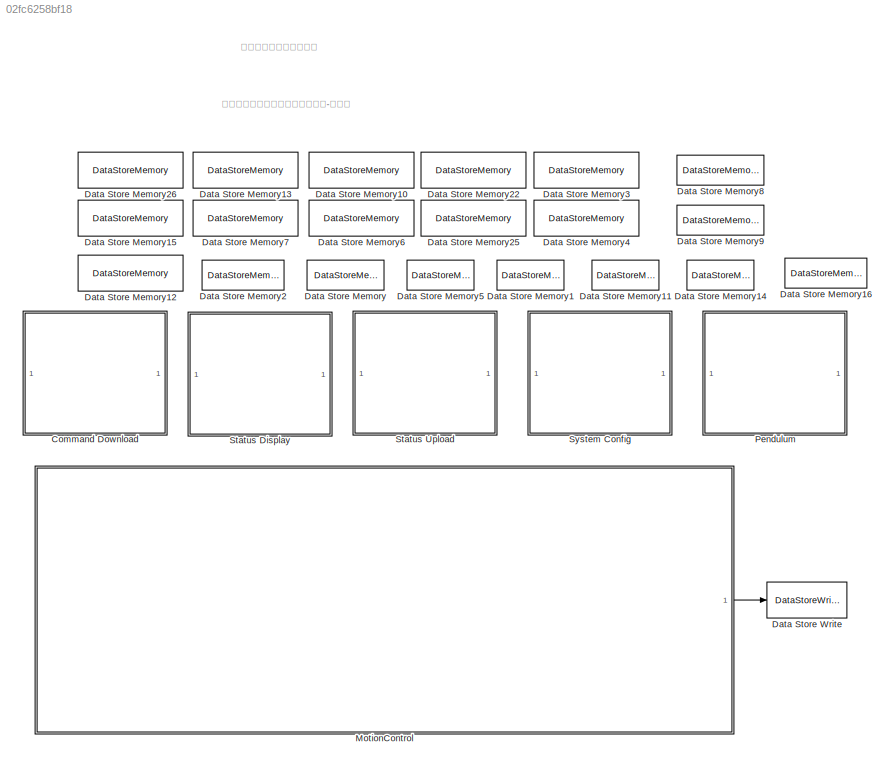
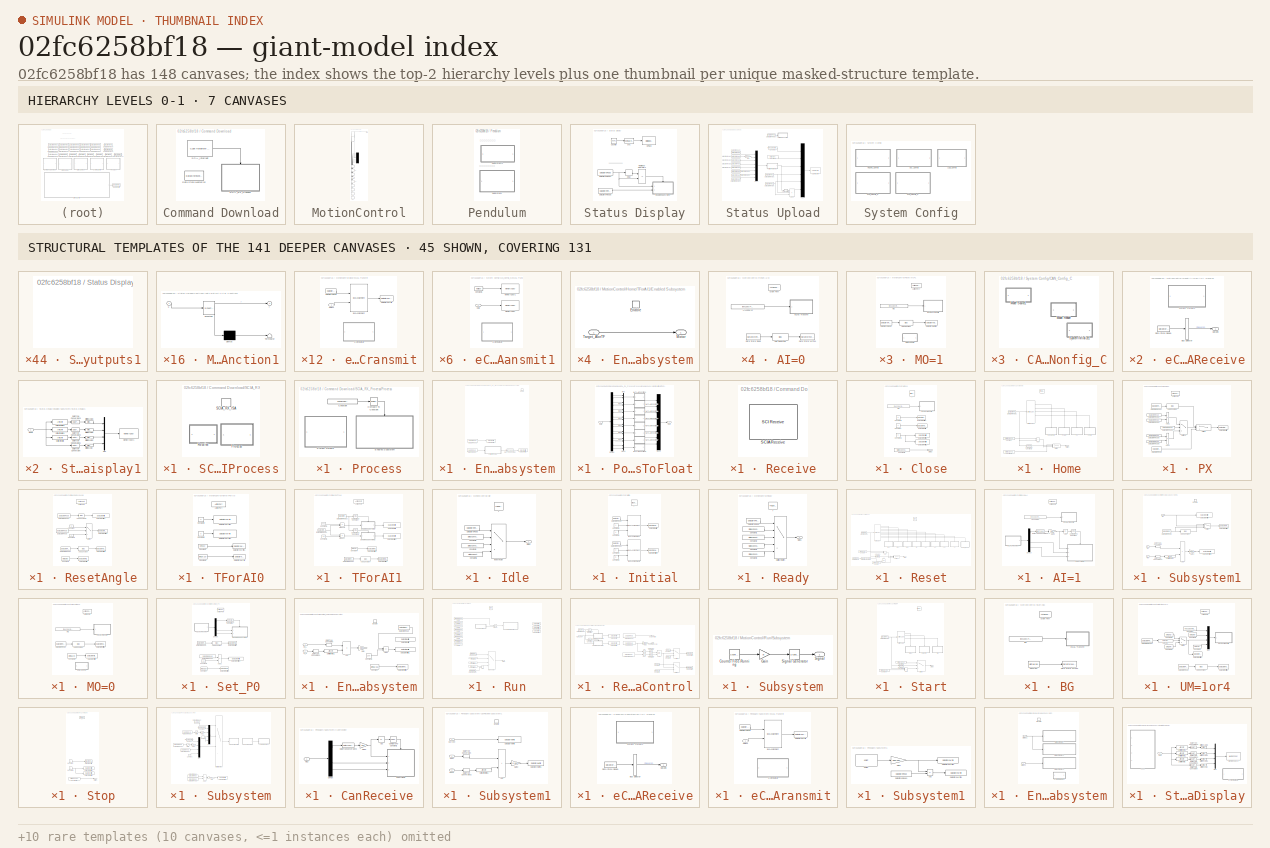
[diagram: thumbnail index - top-2 hierarchy levels (7 canvases) + 45 structural-template representatives of the remaining 141 canvases]
MODEL slx_02fc6258bf18
KIND model
CONFIG AbsTol = auto
CONFIG EnableMultiTasking = on
CONFIG FixedStep = 0.005
CONFIG MaxStep = auto
CONFIG MinStep = auto
CONFIG PostLoadFcn = c2000demoscallback(1)\n
CONFIG PreLoadFcn = disp(pwd)
CONFIG RelTol = 1e-3
CONFIG SampleTimeConstraint = Unconstrained
CONFIG SolverName = FixedStepDiscrete
CONFIG StartTime = 0.0
CONFIG StopTime = 10
BLOCK [SubSystem] Command Download
  Ports = []
  RequestExecContextInheritance = off
  TreatAsAtomicUnit = on
BLOCK [DataStoreMemory] Command Download/Data Store Memory12
  DataStoreName = FrameData
  InitialValue = zeros(1,17)
  OutDataTypeStr = uint16
  ReadBeforeWriteMsg = warning
  ShowAdditionalParam = off
  SignalType = real
  WriteAfterReadMsg = warning
  WriteAfterWriteMsg = warning
BLOCK [Reference] Command Download/SCIA_Interrupt  REF=c2000lib/Scheduling/C28x Hardware Interrupt
  Ports = [0, 1]
  SourceBlock = c2000lib/Scheduling/C28x Hardware Interrupt
  SourceProductBaseCode = TIC2000
  SourceType = C28x Interrupt Block
BLOCK [SubSystem] Command Download/SCIA_RX_Process
  Ports = [0, 0, 0, 1]
  RequestExecContextInheritance = off
  TreatAsAtomicUnit = on
BLOCK [SubSystem] Command Download/SCIA_RX_Process/Process
  Ports = []
  Priority = 2
  RequestExecContextInheritance = off
  TreatAsAtomicUnit = on
BLOCK [Reference] Command Download/SCIA_RX_Process/Process/Compare To Constant  REF=simulink/Logic and Bit
Operations/Compare
To Constant
  Ports = [1, 1]
  SourceBlock = simulink/Logic and Bit\nOperations/Compare\nTo Constant
  SourceProductBaseCode = SL
  SourceType = Compare To Constant
BLOCK [Constant] Command Download/SCIA_RX_Process/Process/Constant
  OutDataTypeStr = uint16
  SampleTime = -1
  Value = SCIAReceivedComplete
BLOCK [SubSystem] Command Download/SCIA_RX_Process/Process/Enabled Subsystem
  Ports = [0, 0, 1]
  RequestExecContextInheritance = off
  TreatAsAtomicUnit = on
BLOCK [DataStoreRead] Command Download/SCIA_RX_Process/Process/Enabled Subsystem/Data Store Read1
  DataStoreElements = FrameData(2:17)
  DataStoreName = FrameData
  IndexOptions = Index vector (dialog)
  Indices = 1
  OutputSizes = 1
  Ports = [0, 1]
BLOCK [DataStoreRead] Command Download/SCIA_RX_Process/Process/Enabled Subsystem/Data Store Read2
  DataStoreElements = FrameData(1)
  DataStoreName = FrameData
  IndexOptions = Index vector (dialog)
  Indices = 1
  OutputSizes = 1
  Ports = [0, 1]
BLOCK [DataStoreWrite] Command Download/SCIA_RX_Process/Process/Enabled Subsystem/Data Store Write
  DataStoreName = Command
  IndexOptions = Index vector (dialog)
  Indices = 1
  OutputSizes = 1
  Ports = [1]
BLOCK [DataStoreWrite] Command Download/SCIA_RX_Process/Process/Enabled Subsystem/Data Store Write1
  DataStoreName = CommandData
  IndexOptions = Index vector (dialog)
  Indices = 1
  OutputSizes = 1
  Ports = [1]
BLOCK [DataTypeConversion] Command Download/SCIA_RX_Process/Process/Enabled Subsystem/Data Type Conversion
  OutDataTypeStr = double
  RndMeth = Floor
  SaturateOnIntegerOverflow = off
BLOCK [EnablePort] Command Download/SCIA_RX_Process/Process/Enabled Subsystem/Enable
  Ports = []
BLOCK [SubSystem] Command Download/SCIA_RX_Process/Process/Enabled Subsystem/PositionIntToFloat
  Ports = [1, 1]
  RTWSystemCode = Reusable function
  RequestExecContextInheritance = off
  TreatAsAtomicUnit = on
BLOCK [Inport] Command Download/SCIA_RX_Process/Process/Enabled Subsystem/PositionIntToFloat/Data
BLOCK [Demux] Command Download/SCIA_RX_Process/Process/Enabled Subsystem/PositionIntToFloat/Demux
  Outputs = 16
  Ports = [1, 16]
BLOCK [SubSystem] Command Download/SCIA_RX_Process/Process/Enabled Subsystem/PositionIntToFloat/MATLAB Function1
  ErrorFcn = Stateflow.Translate.translate
  PermitHierarchicalResolution = ExplicitOnly
  Ports = [1, 1]
  RequestExecContextInheritance = off
  SFBlockType = MATLAB Function
  TreatAsAtomicUnit = on
BLOCK [Demux] Command Download/SCIA_RX_Process/Process/Enabled Subsystem/PositionIntToFloat/MATLAB Function1/ Demux 
  Outputs = 1
  Ports = [1, 1]
BLOCK [S-Function] Command Download/SCIA_RX_Process/Process/Enabled Subsystem/PositionIntToFloat/MATLAB Function1/ SFunction 
  EnableBusSupport = off
  FunctionName = sf_sfun
  PortCounts = [1 2]
  Ports = [1, 2]
  SFcnIsStateOwnerBlock = off
  SFunctionDeploymentMode = off
  Tag = Stateflow S-Function 10
BLOCK [Terminator] Command Download/SCIA_RX_Process/Process/Enabled Subsystem/PositionIntToFloat/MATLAB Function1/ Terminator 
BLOCK [Inport] Command Download/SCIA_RX_Process/Process/Enabled Subsystem/PositionIntToFloat/MATLAB Function1/u
BLOCK [Outport] Command Download/SCIA_RX_Process/Process/Enabled Subsystem/PositionIntToFloat/MATLAB Function1/y
BLOCK [SubSystem] Command Download/SCIA_RX_Process/Process/Enabled Subsystem/PositionIntToFloat/MATLAB Function2
  ErrorFcn = Stateflow.Translate.translate
  PermitHierarchicalResolution = ExplicitOnly
  Ports = [1, 1]
  RequestExecContextInheritance = off
  SFBlockType = MATLAB Function
  TreatAsAtomicUnit = on
BLOCK [Demux] Command Download/SCIA_RX_Process/Process/Enabled Subsystem/PositionIntToFloat/MATLAB Function2/ Demux 
  Outputs = 1
  Ports = [1, 1]
BLOCK [S-Function] Command Download/SCIA_RX_Process/Process/Enabled Subsystem/PositionIntToFloat/MATLAB Function2/ SFunction 
  EnableBusSupport = off
  FunctionName = sf_sfun
  PortCounts = [1 2]
  Ports = [1, 2]
  SFcnIsStateOwnerBlock = off
  SFunctionDeploymentMode = off
  Tag = Stateflow S-Function 11
BLOCK [Terminator] Command Download/SCIA_RX_Process/Process/Enabled Subsystem/PositionIntToFloat/MATLAB Function2/ Terminator 
BLOCK [Inport] Command Download/SCIA_RX_Process/Process/Enabled Subsystem/PositionIntToFloat/MATLAB Function2/u
BLOCK [Outport] Command Download/SCIA_RX_Process/Process/Enabled Subsystem/PositionIntToFloat/MATLAB Function2/y
BLOCK [SubSystem] Command Download/SCIA_RX_Process/Process/Enabled Subsystem/PositionIntToFloat/MATLAB Function3
  ErrorFcn = Stateflow.Translate.translate
  PermitHierarchicalResolution = ExplicitOnly
  Ports = [1, 1]
  RequestExecContextInheritance = off
  SFBlockType = MATLAB Function
  TreatAsAtomicUnit = on
BLOCK [Demux] Command Download/SCIA_RX_Process/Process/Enabled Subsystem/PositionIntToFloat/MATLAB Function3/ Demux 
  Outputs = 1
  Ports = [1, 1]
BLOCK [S-Function] Command Download/SCIA_RX_Process/Process/Enabled Subsystem/PositionIntToFloat/MATLAB Function3/ SFunction 
  EnableBusSupport = off
  FunctionName = sf_sfun
  PortCounts = [1 2]
  Ports = [1, 2]
  SFcnIsStateOwnerBlock = off
  SFunctionDeploymentMode = off
  Tag = Stateflow S-Function 12
BLOCK [Terminator] Command Download/SCIA_RX_Process/Process/Enabled Subsystem/PositionIntToFloat/MATLAB Function3/ Terminator 
BLOCK [Inport] Command Download/SCIA_RX_Process/Process/Enabled Subsystem/PositionIntToFloat/MATLAB Function3/u
BLOCK [Outport] Command Download/SCIA_RX_Process/Process/Enabled Subsystem/PositionIntToFloat/MATLAB Function3/y
BLOCK [SubSystem] Command Download/SCIA_RX_Process/Process/Enabled Subsystem/PositionIntToFloat/MATLAB Function4
  ErrorFcn = Stateflow.Translate.translate
  PermitHierarchicalResolution = ExplicitOnly
  Ports = [1, 1]
  RequestExecContextInheritance = off
  SFBlockType = MATLAB Function
  TreatAsAtomicUnit = on
BLOCK [Demux] Command Download/SCIA_RX_Process/Process/Enabled Subsystem/PositionIntToFloat/MATLAB Function4/ Demux 
  Outputs = 1
  Ports = [1, 1]
BLOCK [S-Function] Command Download/SCIA_RX_Process/Process/Enabled Subsystem/PositionIntToFloat/MATLAB Function4/ SFunction 
  EnableBusSupport = off
  FunctionName = sf_sfun
  PortCounts = [1 2]
  Ports = [1, 2]
  SFcnIsStateOwnerBlock = off
  SFunctionDeploymentMode = off
  Tag = Stateflow S-Function 13
BLOCK [Terminator] Command Download/SCIA_RX_Process/Process/Enabled Subsystem/PositionIntToFloat/MATLAB Function4/ Terminator 
BLOCK [Inport] Command Download/SCIA_RX_Process/Process/Enabled Subsystem/PositionIntToFloat/MATLAB Function4/u
BLOCK [Outport] Command Download/SCIA_RX_Process/Process/Enabled Subsystem/PositionIntToFloat/MATLAB Function4/y
BLOCK [SubSystem] Command Download/SCIA_RX_Process/Process/Enabled Subsystem/PositionIntToFloat/MATLAB Function5
  ErrorFcn = Stateflow.Translate.translate
  PermitHierarchicalResolution = ExplicitOnly
  Ports = [1, 1]
  RequestExecContextInheritance = off
  SFBlockType = MATLAB Function
  TreatAsAtomicUnit = on
BLOCK [Demux] Command Download/SCIA_RX_Process/Process/Enabled Subsystem/PositionIntToFloat/MATLAB Function5/ Demux 
  Outputs = 1
  Ports = [1, 1]
BLOCK [S-Function] Command Download/SCIA_RX_Process/Process/Enabled Subsystem/PositionIntToFloat/MATLAB Function5/ SFunction 
  EnableBusSupport = off
  FunctionName = sf_sfun
  PortCounts = [1 2]
  Ports = [1, 2]
  SFcnIsStateOwnerBlock = off
  SFunctionDeploymentMode = off
  Tag = Stateflow S-Function 14
BLOCK [Terminator] Command Download/SCIA_RX_Process/Process/Enabled Subsystem/PositionIntToFloat/MATLAB Function5/ Terminator 
BLOCK [Inport] Command Download/SCIA_RX_Process/Process/Enabled Subsystem/PositionIntToFloat/MATLAB Function5/u
BLOCK [Outport] Command Download/SCIA_RX_Process/Process/Enabled Subsystem/PositionIntToFloat/MATLAB Function5/y
BLOCK [SubSystem] Command Download/SCIA_RX_Process/Process/Enabled Subsystem/PositionIntToFloat/MATLAB Function6
  ErrorFcn = Stateflow.Translate.translate
  PermitHierarchicalResolution = ExplicitOnly
  Ports = [1, 1]
  RequestExecContextInheritance = off
  SFBlockType = MATLAB Function
  TreatAsAtomicUnit = on
BLOCK [Demux] Command Download/SCIA_RX_Process/Process/Enabled Subsystem/PositionIntToFloat/MATLAB Function6/ Demux 
  Outputs = 1
  Ports = [1, 1]
BLOCK [S-Function] Command Download/SCIA_RX_Process/Process/Enabled Subsystem/PositionIntToFloat/MATLAB Function6/ SFunction 
  EnableBusSupport = off
  FunctionName = sf_sfun
  PortCounts = [1 2]
  Ports = [1, 2]
  SFcnIsStateOwnerBlock = off
  SFunctionDeploymentMode = off
  Tag = Stateflow S-Function 15
BLOCK [Terminator] Command Download/SCIA_RX_Process/Process/Enabled Subsystem/PositionIntToFloat/MATLAB Function6/ Terminator 
BLOCK [Inport] Command Download/SCIA_RX_Process/Process/Enabled Subsystem/PositionIntToFloat/MATLAB Function6/u
BLOCK [Outport] Command Download/SCIA_RX_Process/Process/Enabled Subsystem/PositionIntToFloat/MATLAB Function6/y
BLOCK [SubSystem] Command Download/SCIA_RX_Process/Process/Enabled Subsystem/PositionIntToFloat/MATLAB Function7
  ErrorFcn = Stateflow.Translate.translate
  PermitHierarchicalResolution = ExplicitOnly
  Ports = [1, 1]
  RequestExecContextInheritance = off
  SFBlockType = MATLAB Function
  TreatAsAtomicUnit = on
BLOCK [Demux] Command Download/SCIA_RX_Process/Process/Enabled Subsystem/PositionIntToFloat/MATLAB Function7/ Demux 
  Outputs = 1
  Ports = [1, 1]
BLOCK [S-Function] Command Download/SCIA_RX_Process/Process/Enabled Subsystem/PositionIntToFloat/MATLAB Function7/ SFunction 
  EnableBusSupport = off
  FunctionName = sf_sfun
  PortCounts = [1 2]
  Ports = [1, 2]
  SFcnIsStateOwnerBlock = off
  SFunctionDeploymentMode = off
  Tag = Stateflow S-Function 16
BLOCK [Terminator] Command Download/SCIA_RX_Process/Process/Enabled Subsystem/PositionIntToFloat/MATLAB Function7/ Terminator 
BLOCK [Inport] Command Download/SCIA_RX_Process/Process/Enabled Subsystem/PositionIntToFloat/MATLAB Function7/u
BLOCK [Outport] Command Download/SCIA_RX_Process/Process/Enabled Subsystem/PositionIntToFloat/MATLAB Function7/y
BLOCK [SubSystem] Command Download/SCIA_RX_Process/Process/Enabled Subsystem/PositionIntToFloat/MATLAB Function8
  ErrorFcn = Stateflow.Translate.translate
  PermitHierarchicalResolution = ExplicitOnly
  Ports = [1, 1]
  RequestExecContextInheritance = off
  SFBlockType = MATLAB Function
  TreatAsAtomicUnit = on
BLOCK [Demux] Command Download/SCIA_RX_Process/Process/Enabled Subsystem/PositionIntToFloat/MATLAB Function8/ Demux 
  Outputs = 1
  Ports = [1, 1]
BLOCK [S-Function] Command Download/SCIA_RX_Process/Process/Enabled Subsystem/PositionIntToFloat/MATLAB Function8/ SFunction 
  EnableBusSupport = off
  FunctionName = sf_sfun
  PortCounts = [1 2]
  Ports = [1, 2]
  SFcnIsStateOwnerBlock = off
  SFunctionDeploymentMode = off
  Tag = Stateflow S-Function 17
BLOCK [Terminator] Command Download/SCIA_RX_Process/Process/Enabled Subsystem/PositionIntToFloat/MATLAB Function8/ Terminator 
BLOCK [Inport] Command Download/SCIA_RX_Process/Process/Enabled Subsystem/PositionIntToFloat/MATLAB Function8/u
BLOCK [Outport] Command Download/SCIA_RX_Process/Process/Enabled Subsystem/PositionIntToFloat/MATLAB Function8/y
BLOCK [Mux] Command Download/SCIA_RX_Process/Process/Enabled Subsystem/PositionIntToFloat/Mux
  DisplayOption = bar
  Inputs = 2
  Ports = [2, 1]
BLOCK [Mux] Command Download/SCIA_RX_Process/Process/Enabled Subsystem/PositionIntToFloat/Mux1
  DisplayOption = bar
  Inputs = 2
  Ports = [2, 1]
BLOCK [Mux] Command Download/SCIA_RX_Process/Process/Enabled Subsystem/PositionIntToFloat/Mux2
  DisplayOption = bar
  Inputs = 2
  Ports = [2, 1]
BLOCK [Mux] Command Download/SCIA_RX_Process/Process/Enabled Subsystem/PositionIntToFloat/Mux3
  DisplayOption = bar
  Inputs = 2
  Ports = [2, 1]
BLOCK [Mux] Command Download/SCIA_RX_Process/Process/Enabled Subsystem/PositionIntToFloat/Mux4
  DisplayOption = bar
  Inputs = 2
  Ports = [2, 1]
BLOCK [Mux] Command Download/SCIA_RX_Process/Process/Enabled Subsystem/PositionIntToFloat/Mux5
  DisplayOption = bar
  Inputs = 2
  Ports = [2, 1]
BLOCK [Mux] Command Download/SCIA_RX_Process/Process/Enabled Subsystem/PositionIntToFloat/Mux6
  DisplayOption = bar
  Inputs = 8
  Ports = [8, 1]
BLOCK [Mux] Command Download/SCIA_RX_Process/Process/Enabled Subsystem/PositionIntToFloat/Mux7
  DisplayOption = bar
  Inputs = 2
  Ports = [2, 1]
BLOCK [Mux] Command Download/SCIA_RX_Process/Process/Enabled Subsystem/PositionIntToFloat/Mux8
  DisplayOption = bar
  Inputs = 2
  Ports = [2, 1]
BLOCK [Outport] Command Download/SCIA_RX_Process/Process/Enabled Subsystem/PositionIntToFloat/Out1
BLOCK [SubSystem] Command Download/SCIA_RX_Process/Process/System Outputs
  CopyFcn = cccopyfcn(gcb)
  OpenFcn = ccopenfcn('System Outputs Function')
  Ports = []
  RequestExecContextInheritance = off
BLOCK [SubSystem] Command Download/SCIA_RX_Process/Receive
  Ports = []
  Priority = 1
  RequestExecContextInheritance = off
  TreatAsAtomicUnit = on
BLOCK [Reference] Command Download/SCIA_RX_Process/Receive/SCIAReceive  REF=c280xlib/SCI Receive
  Ports = [0, 1]
  SourceBlock = c280xlib/SCI Receive
  SourceProductBaseCode = TIC2000
  SourceType = C28x SCI Receive
BLOCK [TriggerPort] Command Download/SCIA_RX_Process/SCIA_RX_ISA
  Ports = []
  StatesWhenEnabling = held
  TriggerType = function-call
  VariantControl = Variant
BLOCK [DataStoreMemory] Data Store Memory
  DataStoreName = CommandData
  InitialValue = zeros(1,8)
  OutDataTypeStr = double
  ReadBeforeWriteMsg = warning
  ShowAdditionalParam = off
  SignalType = real
  WriteAfterReadMsg = warning
  WriteAfterWriteMsg = warning
BLOCK [DataStoreMemory] Data Store Memory1
  DataStoreName = ControlStep
  OutDataTypeStr = uint16
  ReadBeforeWriteMsg = warning
  ShowAdditionalParam = off
  SignalType = real
  WriteAfterReadMsg = warning
  WriteAfterWriteMsg = warning
BLOCK [DataStoreMemory] Data Store Memory10
  DataStoreName = Pendulum_Angle
  OutDataTypeStr = double
  ReadBeforeWriteMsg = warning
  ShowAdditionalParam = off
  WriteAfterReadMsg = warning
  WriteAfterWriteMsg = warning
BLOCK [DataStoreMemory] Data Store Memory11
  DataStoreName = Direction
  ReadBeforeWriteMsg = warning
  ShowAdditionalParam = off
  WriteAfterReadMsg = warning
  WriteAfterWriteMsg = warning
BLOCK [DataStoreMemory] Data Store Memory12
  DataStoreName = Target_Angle
  ReadBeforeWriteMsg = warning
  ShowAdditionalParam = off
  WriteAfterReadMsg = warning
  WriteAfterWriteMsg = warning
BLOCK [DataStoreMemory] Data Store Memory13
  DataStoreName = Target_Motor_Current
  ReadBeforeWriteMsg = warning
  ShowAdditionalParam = off
  WriteAfterReadMsg = warning
  WriteAfterWriteMsg = warning
BLOCK [DataStoreMemory] Data Store Memory14
  DataStoreName = AI_Enable
  InitialValue = 1
  OutDataTypeStr = uint16
  ReadBeforeWriteMsg = warning
  ShowAdditionalParam = off
  WriteAfterReadMsg = warning
  WriteAfterWriteMsg = warning
BLOCK [DataStoreMemory] Data Store Memory15
  DataStoreName = Target_Motor_Pos
  ReadBeforeWriteMsg = warning
  ShowAdditionalParam = off
  WriteAfterReadMsg = warning
  WriteAfterWriteMsg = warning
BLOCK [DataStoreMemory] Data Store Memory16
  DataStoreName = StatusData
  InitialValue = [0 0 0 0 0 0 0 0]
  ReadBeforeWriteMsg = warning
  ShowAdditionalParam = off
  WriteAfterReadMsg = warning
  WriteAfterWriteMsg = warning
BLOCK [DataStoreMemory] Data Store Memory2
  DataStoreName = Command
  OutDataTypeStr = uint16
  ReadBeforeWriteMsg = warning
  ShowAdditionalParam = off
  SignalType = real
  WriteAfterReadMsg = warning
  WriteAfterWriteMsg = warning
BLOCK [DataStoreMemory] Data Store Memory22
  DataStoreName = Motor_Position_Zero
  OutDataTypeStr = double
  ReadBeforeWriteMsg = warning
  ShowAdditionalParam = off
  WriteAfterReadMsg = warning
  WriteAfterWriteMsg = warning
BLOCK [DataStoreMemory] Data Store Memory25
  DataStoreName = Pendulum_Angle_Zero
  OutDataTypeStr = double
  ReadBeforeWriteMsg = warning
  ShowAdditionalParam = off
  WriteAfterReadMsg = warning
  WriteAfterWriteMsg = warning
BLOCK [DataStoreMemory] Data Store Memory26
  DataStoreName = Target_Motor_Acc
  ReadBeforeWriteMsg = warning
  ShowAdditionalParam = off
  WriteAfterReadMsg = warning
  WriteAfterWriteMsg = warning
BLOCK [DataStoreMemory] Data Store Memory3
  DataStoreName = Pendulum_Angle_A
  OutDataTypeStr = double
  ReadBeforeWriteMsg = warning
  ShowAdditionalParam = off
  WriteAfterReadMsg = warning
  WriteAfterWriteMsg = warning
BLOCK [DataStoreMemory] Data Store Memory4
  DataStoreName = Motor_Position_A
  OutDataTypeStr = double
  ReadBeforeWriteMsg = warning
  ShowAdditionalParam = off
  WriteAfterReadMsg = warning
  WriteAfterWriteMsg = warning
BLOCK [DataStoreMemory] Data Store Memory5
  DataStoreName = Mode
  OutDataTypeStr = uint16
  ReadBeforeWriteMsg = warning
  ShowAdditionalParam = off
  SignalType = real
  WriteAfterReadMsg = warning
  WriteAfterWriteMsg = warning
BLOCK [DataStoreMemory] Data Store Memory6
  DataStoreName = Motor_Position
  OutDataTypeStr = double
  ReadBeforeWriteMsg = warning
  ShowAdditionalParam = off
  WriteAfterReadMsg = warning
  WriteAfterWriteMsg = warning
BLOCK [DataStoreMemory] Data Store Memory7
  DataStoreName = Motor_Current
  ReadBeforeWriteMsg = warning
  ShowAdditionalParam = off
  WriteAfterReadMsg = warning
  WriteAfterWriteMsg = warning
BLOCK [DataStoreMemory] Data Store Memory8
  DataStoreName = SystemStatus
  OutDataTypeStr = uint16
  ReadBeforeWriteMsg = warning
  ShowAdditionalParam = off
  WriteAfterReadMsg = warning
  WriteAfterWriteMsg = warning
BLOCK [DataStoreMemory] Data Store Memory9
  DataStoreName = ErrorStatus
  OutDataTypeStr = uint16
  ReadBeforeWriteMsg = warning
  ShowAdditionalParam = off
  WriteAfterReadMsg = warning
  WriteAfterWriteMsg = warning
BLOCK [DataStoreWrite] Data Store Write
  DataStoreName = SystemStatus
  IndexOptions = Index vector (dialog)
  Indices = 1
  OutputSizes = 1
  Ports = [1]
BLOCK [SubSystem] MotionControl
  ErrorFcn = Stateflow.Translate.translate
  PermitHierarchicalResolution = ExplicitOnly
  Ports = [0, 1]
  RequestExecContextInheritance = off
  SFBlockType = Chart
  TreatAsAtomicUnit = on
BLOCK [Demux] MotionControl/ Demux 
  Outputs = 9
  Ports = [1, 9]
BLOCK [S-Function] MotionControl/ SFunction 
  EnableBusSupport = off
  FunctionName = sf_sfun
  Parameters = StatusConstClosed,StatusConstError,StatusConstHoming,StatusConstIdle,StatusConstPaused,StatusConstReady,StatusConstReset,StatusConstRunning,StatusConstStart,StatusConstStopped
  PortCounts = [8 2]
  Ports = [8, 2]
  SFcnIsStateOwnerBlock = off
  SFunctionDeploymentMode = off
  Tag = Stateflow S-Function 9
BLOCK [SubSystem] MotionControl/Close
  Ports = [0, 1, 0, 1]
  PreDeleteFcn = Stateflow.SLINSF.SimulinkMan.removePreDeleteFcn
  RequestExecContextInheritance = off
  UndoDeleteFcn = Stateflow.SLINSF.SimulinkMan.restorePreDeleteFcn
BLOCK [Constant] MotionControl/Close/Constant
  OutDataTypeStr = uint16
BLOCK [Constant] MotionControl/Close/Constant1
  Value = 0
BLOCK [Constant] MotionControl/Close/Constant2
  OutDataTypeStr = uint16
  Value = 0
BLOCK [Constant] MotionControl/Close/Constant5
  Value = StatusConstIdle
BLOCK [DataStoreWrite] MotionControl/Close/Data Store Write
  DataStoreName = AI_Enable
  IndexOptions = Index vector (dialog)
  Indices = 1
  OutputSizes = 1
  Ports = [1]
BLOCK [DataStoreWrite] MotionControl/Close/Data Store Write1
  DataStoreName = Target_Motor_Current
  IndexOptions = Index vector (dialog)
  Indices = 1
  OutputSizes = 1
  Ports = [1]
BLOCK [DataStoreWrite] MotionControl/Close/Data Store Write2
  DataStoreName = Target_Motor_Acc
  IndexOptions = Index vector (dialog)
  Indices = 1
  OutputSizes = 1
  Ports = [1]
BLOCK [DataStoreWrite] MotionControl/Close/Data Store Write3
  DataStoreName = Mode
  IndexOptions = Index vector (dialog)
  Indices = 1
  OutputSizes = 1
  Ports = [1]
BLOCK [Constant] MotionControl/Close/MO
  OutDataTypeStr = uint16
  Value = [hex2dec('4F4D') 0 0 0]
BLOCK [Outport] MotionControl/Close/Status
  OutDataTypeStr = uint16
  PortDimensions = [1 1]
  VarSizeSig = No
  VectorParamsAs1DForOutWhenUnconnected = off
BLOCK [SubSystem] MotionControl/Close/eCANA Transmit
  Ports = [1]
  RequestExecContextInheritance = off
  TreatAsAtomicUnit = on
BLOCK [BusAssignment] MotionControl/Close/eCANA Transmit/Bus Assignment
  AssignedSignals = TxWord
  Ports = [2, 1]
  Priority = 1
BLOCK [DataStoreRead] MotionControl/Close/eCANA Transmit/Data Store Read
  DataStoreName = CanMsgA
  IndexOptions = Index vector (dialog)
  Indices = 1
  OutputSizes = 1
  Ports = [0, 1]
BLOCK [DataStoreWrite] MotionControl/Close/eCANA Transmit/Data Store Write
  DataStoreName = CanMsgA
  IndexOptions = Index vector (dialog)
  Indices = 1
  OutputSizes = 1
  Ports = [1]
BLOCK [Inport] MotionControl/Close/eCANA Transmit/DataTx
BLOCK [SubSystem] MotionControl/Close/eCANA Transmit/System Outputs
  CopyFcn = cccopyfcn(gcb)
  OpenFcn = ccopenfcn('System Outputs Function')
  Ports = []
  Priority = 2
  RequestExecContextInheritance = off
BLOCK [TriggerPort] MotionControl/Close/f
  CopyFcn = Stateflow.SLINSF.SimulinkMan.removeBlockPreDeleteFcn
  Ports = []
  PreDeleteFcn = Stateflow.SLINSF.SimulinkMan.unsafePredeleteFcn
  StatesWhenEnabling = held
  TriggerType = function-call
  VariantControl = (inherit)
BLOCK [SubSystem] MotionControl/Home
  Ports = [0, 1, 0, 1]
  PreDeleteFcn = Stateflow.SLINSF.SimulinkMan.removePreDeleteFcn
  RequestExecContextInheritance = off
  UndoDeleteFcn = Stateflow.SLINSF.SimulinkMan.restorePreDeleteFcn
BLOCK [Sum] MotionControl/Home/Add
  IconShape = rectangular
  Ports = [2, 1]
BLOCK [Reference] MotionControl/Home/Compare To Constant1  REF=simulink/Logic and Bit
Operations/Compare
To Constant
  Ports = [1, 1]
  SourceBlock = simulink/Logic and Bit\nOperations/Compare\nTo Constant
  SourceProductBaseCode = SL
  SourceType = Compare To Constant
BLOCK [Constant] MotionControl/Home/Constant
  Value = StatusConstHoming
BLOCK [Constant] MotionControl/Home/Constant1
  Value = StatusConstReady
BLOCK [DataStoreRead] MotionControl/Home/Data Store Read2
  DataStoreName = ControlStep
  IndexOptions = Index vector (dialog)
  Indices = 1
  OutputSizes = 1
  Ports = [0, 1]
BLOCK [SubSystem] MotionControl/Home/PX
  Ports = [0, 0, 0, 0, 0, 0, 0, 1]
  RequestExecContextInheritance = off
  TreatAsAtomicUnit = on
BLOCK [ActionPort] MotionControl/Home/PX/Action Port
BLOCK [Bias] MotionControl/Home/PX/Add Constant
  Bias = uint16(1)
  SaturateOnIntegerOverflow = off
BLOCK [Sum] MotionControl/Home/PX/Add1
  IconShape = rectangular
  Inputs = +-
  Ports = [2, 1]
BLOCK [Sum] MotionControl/Home/PX/Add3
  IconShape = rectangular
  Inputs = -+
  Ports = [2, 1]
BLOCK [DataStoreRead] MotionControl/Home/PX/Data Store Read
  DataStoreName = ControlStep
  IndexOptions = Index vector (dialog)
  Indices = 1
  OutputSizes = 1
  Ports = [0, 1]
BLOCK [DataStoreRead] MotionControl/Home/PX/Data Store Read1
  DataStoreName = Motor_Position
  IndexOptions = Index vector (dialog)
  Indices = 1
  OutputSizes = 1
  Ports = [0, 1]
BLOCK [DataStoreRead] MotionControl/Home/PX/Data Store Read2
  DataStoreName = ControlStep
  IndexOptions = Index vector (dialog)
  Indices = 1
  OutputSizes = 1
  Ports = [0, 1]
BLOCK [DataStoreRead] MotionControl/Home/PX/Data Store Read3
  DataStoreName = Motor_Position_A
  IndexOptions = Index vector (dialog)
  Indices = 1
  OutputSizes = 1
  Ports = [0, 1]
BLOCK [DataStoreRead] MotionControl/Home/PX/Data Store Read4
  DataStoreName = Motor_Position_Zero
  IndexOptions = Index vector (dialog)
  Indices = 1
  OutputSizes = 1
  Ports = [0, 1]
BLOCK [DataStoreRead] MotionControl/Home/PX/Data Store Read5
  DataStoreName = Motor_Position_Zero
  IndexOptions = Index vector (dialog)
  Indices = 1
  OutputSizes = 1
  Ports = [0, 1]
BLOCK [DataStoreRead] MotionControl/Home/PX/Data Store Read6
  DataStoreName = Motor_Position
  IndexOptions = Index vector (dialog)
  Indices = 1
  OutputSizes = 1
  Ports = [0, 1]
BLOCK [DataStoreWrite] MotionControl/Home/PX/Data Store Write
  DataStoreName = ControlStep
  IndexOptions = Index vector (dialog)
  Indices = 1
  OutputSizes = 1
  Ports = [1]
BLOCK [Switch] MotionControl/Home/PX/Switch
  InputSameDT = off
  SaturateOnIntegerOverflow = off
BLOCK [Switch] MotionControl/Home/PX/Switch1
  Criteria = u2 > Threshold
  InputSameDT = off
  SaturateOnIntegerOverflow = off
BLOCK [SubSystem] MotionControl/Home/ResetAngle
  Ports = [0, 0, 0, 0, 0, 0, 0, 1]
  RequestExecContextInheritance = off
  TreatAsAtomicUnit = on
BLOCK [ActionPort] MotionControl/Home/ResetAngle/Action Port
BLOCK [Bias] MotionControl/Home/ResetAngle/Add Constant
  Bias = uint16(1)
  SaturateOnIntegerOverflow = off
BLOCK [Bias] MotionControl/Home/ResetAngle/Add Constant1
  Bias = 180
  SaturateOnIntegerOverflow = off
BLOCK [Constant] MotionControl/Home/ResetAngle/Constant
  Value = -1
BLOCK [Constant] MotionControl/Home/ResetAngle/Constant1
BLOCK [Constant] MotionControl/Home/ResetAngle/Constant2
  Value = uint16(0)
BLOCK [DataStoreRead] MotionControl/Home/ResetAngle/Data Store Read
  DataStoreName = Motor_Position_A
  IndexOptions = Index vector (dialog)
  Indices = 1
  OutputSizes = 1
  Ports = [0, 1]
BLOCK [DataStoreRead] MotionControl/Home/ResetAngle/Data Store Read1
  DataStoreName = Pendulum_Angle
  IndexOptions = Index vector (dialog)
  Indices = 1
  OutputSizes = 1
  Ports = [0, 1]
BLOCK [DataStoreRead] MotionControl/Home/ResetAngle/Data Store Read2
  DataStoreName = ControlStep
  IndexOptions = Index vector (dialog)
  Indices = 1
  OutputSizes = 1
  Ports = [0, 1]
BLOCK [DataStoreWrite] MotionControl/Home/ResetAngle/Data Store Write
  DataStoreName = Command
  IndexOptions = Index vector (dialog)
  Indices = 1
  OutputSizes = 1
  Ports = [1]
BLOCK [DataStoreWrite] MotionControl/Home/ResetAngle/Data Store Write1
  DataStoreName = Pendulum_Angle_Zero
  IndexOptions = Index vector (dialog)
  Indices = 1
  OutputSizes = 1
  Ports = [1]
BLOCK [DataStoreWrite] MotionControl/Home/ResetAngle/Data Store Write2
  DataStoreName = ControlStep
  IndexOptions = Index vector (dialog)
  Indices = 1
  OutputSizes = 1
  Ports = [1]
BLOCK [DataStoreWrite] MotionControl/Home/ResetAngle/Data Store Write3
  DataStoreName = Direction
  IndexOptions = Index vector (dialog)
  Indices = 1
  OutputSizes = 1
  Ports = [1]
BLOCK [Switch] MotionControl/Home/ResetAngle/Switch
  Criteria = u2 > Threshold
  InputSameDT = off
  SaturateOnIntegerOverflow = off
BLOCK [Outport] MotionControl/Home/Status
  OutDataTypeStr = uint16
  PortDimensions = 1
  SignalType = real
  VarSizeSig = No
BLOCK [Switch] MotionControl/Home/Switch
  Criteria = u2 > Threshold
  InputSameDT = off
  SaturateOnIntegerOverflow = off
  Threshold = uint16(0)
BLOCK [SwitchCase] MotionControl/Home/Switch Case
  CaseConditions = {1,2,3,4}
  Ports = [1, 5]
BLOCK [SubSystem] MotionControl/Home/TForAI0
  Ports = [0, 0, 0, 0, 0, 0, 0, 1]
  RequestExecContextInheritance = off
  TreatAsAtomicUnit = on
BLOCK [ActionPort] MotionControl/Home/TForAI0/Action Port
  ActionPortLabel = case [ 4 ]:
BLOCK [Constant] MotionControl/Home/TForAI0/Constant1
  Value = uint16(15)
BLOCK [Constant] MotionControl/Home/TForAI0/Constant3
  Value = 0
BLOCK [Constant] MotionControl/Home/TForAI0/Constant6
  Value = 0
BLOCK [Constant] MotionControl/Home/TForAI0/Constant7
  Value = uint16(1)
BLOCK [DataStoreWrite] MotionControl/Home/TForAI0/Data Store Write
  DataStoreName = ControlStep
  IndexOptions = Index vector (dialog)
  Indices = 1
  OutputSizes = 1
  Ports = [1]
BLOCK [DataStoreWrite] MotionControl/Home/TForAI0/Data Store Write1
  DataStoreName = AI_Enable
  IndexOptions = Index vector (dialog)
  Indices = 1
  OutputSizes = 1
  Ports = [1]
BLOCK [DataStoreWrite] MotionControl/Home/TForAI0/Data Store Write2
  DataStoreName = Target_Motor_Acc
  IndexOptions = Index vector (dialog)
  Indices = 1
  OutputSizes = 1
  Ports = [1]
BLOCK [DataStoreWrite] MotionControl/Home/TForAI0/Data Store Write3
  DataStoreName = Target_Motor_Current
  IndexOptions = Index vector (dialog)
  Indices = 1
  OutputSizes = 1
  Ports = [1]
BLOCK [SubSystem] MotionControl/Home/TForAI1
  Ports = [0, 0, 0, 0, 0, 0, 0, 1]
  RequestExecContextInheritance = off
  TreatAsAtomicUnit = on
BLOCK [ActionPort] MotionControl/Home/TForAI1/Action Port
  ActionPortLabel = case [ 2 ]:
BLOCK [Bias] MotionControl/Home/TForAI1/Add Constant
  Bias = uint16(1)
  SaturateOnIntegerOverflow = off
BLOCK [Reference] MotionControl/Home/TForAI1/Compare To Constant  REF=simulink/Logic and Bit
Operations/Compare
To Constant
  Ports = [1, 1]
  SourceBlock = simulink/Logic and Bit\nOperations/Compare\nTo Constant
  SourceProductBaseCode = SL
  SourceType = Compare To Constant
BLOCK [Reference] MotionControl/Home/TForAI1/Compare To Constant1  REF=simulink/Logic and Bit
Operations/Compare
To Constant
  Ports = [1, 1]
  SourceBlock = simulink/Logic and Bit\nOperations/Compare\nTo Constant
  SourceProductBaseCode = SL
  SourceType = Compare To Constant
BLOCK [Constant] MotionControl/Home/TForAI1/Constant3
  Value = 0.01
BLOCK [Constant] MotionControl/Home/TForAI1/Constant6
  Value = 0.3
BLOCK [Constant] MotionControl/Home/TForAI1/Constant7
  Value = uint16(0)
BLOCK [DataStoreRead] MotionControl/Home/TForAI1/Data Store Read1
  DataStoreName = Direction
  IndexOptions = Index vector (dialog)
  Indices = 1
  OutputSizes = 1
  Ports = [0, 1]
BLOCK [DataStoreRead] MotionControl/Home/TForAI1/Data Store Read2
  DataStoreName = ControlStep
  IndexOptions = Index vector (dialog)
  Indices = 1
  OutputSizes = 1
  Ports = [0, 1]
BLOCK [DataStoreRead] MotionControl/Home/TForAI1/Data Store Read3
  DataStoreName = Mode
  IndexOptions = Index vector (dialog)
  Indices = 1
  OutputSizes = 1
  Ports = [0, 1]
BLOCK [DataStoreWrite] MotionControl/Home/TForAI1/Data Store Write
  DataStoreName = Target_Motor_Acc
  IndexOptions = Index vector (dialog)
  Indices = 1
  OutputSizes = 1
  Ports = [1]
BLOCK [DataStoreWrite] MotionControl/Home/TForAI1/Data Store Write1
  DataStoreName = AI_Enable
  IndexOptions = Index vector (dialog)
  Indices = 1
  OutputSizes = 1
  Ports = [1]
BLOCK [DataStoreWrite] MotionControl/Home/TForAI1/Data Store Write2
  DataStoreName = ControlStep
  IndexOptions = Index vector (dialog)
  Indices = 1
  OutputSizes = 1
  Ports = [1]
BLOCK [DataStoreWrite] MotionControl/Home/TForAI1/Data Store Write3
  DataStoreName = Target_Motor_Current
  IndexOptions = Index vector (dialog)
  Indices = 1
  OutputSizes = 1
  Ports = [1]
BLOCK [SubSystem] MotionControl/Home/TForAI1/Enabled Subsystem
  Ports = [1, 1, 1]
  RequestExecContextInheritance = off
  TreatAsAtomicUnit = on
BLOCK [EnablePort] MotionControl/Home/TForAI1/Enabled Subsystem/Enable
  Ports = []
BLOCK [Outport] MotionControl/Home/TForAI1/Enabled Subsystem/Motor
BLOCK [Inport] MotionControl/Home/TForAI1/Enabled Subsystem/Target_AIorTF
BLOCK [SubSystem] MotionControl/Home/TForAI1/Enabled Subsystem1
  Ports = [1, 1, 1]
  RequestExecContextInheritance = off
  TreatAsAtomicUnit = on
BLOCK [EnablePort] MotionControl/Home/TForAI1/Enabled Subsystem1/Enable
  Ports = []
BLOCK [Outport] MotionControl/Home/TForAI1/Enabled Subsystem1/Motor
BLOCK [Inport] MotionControl/Home/TForAI1/Enabled Subsystem1/Target_AIorTF
BLOCK [Product] MotionControl/Home/TForAI1/Product
  Ports = [2, 1]
BLOCK [Product] MotionControl/Home/TForAI1/Product1
  Ports = [2, 1]
BLOCK [TriggerPort] MotionControl/Home/f
  CopyFcn = Stateflow.SLINSF.SimulinkMan.removeBlockPreDeleteFcn
  Ports = []
  PreDeleteFcn = Stateflow.SLINSF.SimulinkMan.unsafePredeleteFcn
  StatesWhenEnabling = held
  TriggerType = function-call
  VariantControl = (inherit)
BLOCK [SubSystem] MotionControl/Idle
  Ports = [0, 1, 0, 1]
  PreDeleteFcn = Stateflow.SLINSF.SimulinkMan.removePreDeleteFcn
  RequestExecContextInheritance = off
  UndoDeleteFcn = Stateflow.SLINSF.SimulinkMan.restorePreDeleteFcn
BLOCK [Constant] MotionControl/Idle/Constant4
  Value = StatusConstReset
BLOCK [Constant] MotionControl/Idle/Constant5
  Value = StatusConstStart
BLOCK [Constant] MotionControl/Idle/Constant6
  Value = StatusConstIdle
BLOCK [DataStoreRead] MotionControl/Idle/Data Store Read
  DataStoreName = Command
  IndexOptions = Index vector (dialog)
  Indices = 1
  OutputSizes = 1
  Ports = [0, 1]
BLOCK [MultiPortSwitch] MotionControl/Idle/Index Vector
  DataPortForDefault = Additional data port
  DataPortIndices = {CommandConstStart,CommandConstReset}
  DataPortOrder = Specify indices
  DiagnosticForDefault = None
  InputSameDT = off
  Inputs = 1
  Ports = [4, 1]
  SaturateOnIntegerOverflow = off
BLOCK [Outport] MotionControl/Idle/Status
  OutDataTypeStr = uint16
  PortDimensions = [1 1]
  SignalType = real
  VarSizeSig = No
BLOCK [TriggerPort] MotionControl/Idle/f
  CopyFcn = Stateflow.SLINSF.SimulinkMan.removeBlockPreDeleteFcn
  Ports = []
  PreDeleteFcn = Stateflow.SLINSF.SimulinkMan.unsafePredeleteFcn
  StatesWhenEnabling = held
  TriggerType = function-call
  VariantControl = (inherit)
BLOCK [SubSystem] MotionControl/Initial
  Ports = [0, 0, 0, 1]
  PreDeleteFcn = Stateflow.SLINSF.SimulinkMan.removePreDeleteFcn
  RequestExecContextInheritance = off
  UndoDeleteFcn = Stateflow.SLINSF.SimulinkMan.restorePreDeleteFcn
BLOCK [BusAssignment] MotionControl/Initial/Bus Assignment
  AssignedSignals = MailBoxTx,MailBoxRx
  Ports = [3, 1]
  Priority = 1
BLOCK [BusAssignment] MotionControl/Initial/Bus Assignment1
  AssignedSignals = MailBoxTx,MailBoxRx
  Commented = on
  Ports = [3, 1]
  Priority = 1
BLOCK [Constant] MotionControl/Initial/Constant1
  OutDataTypeStr = uint16
  SampleTime = -1
  Value = 4
BLOCK [Constant] MotionControl/Initial/Constant2
  OutDataTypeStr = uint16
  SampleTime = -1
BLOCK [Constant] MotionControl/Initial/Constant3
  Commented = on
  OutDataTypeStr = uint16
  SampleTime = -1
  Value = 5
BLOCK [Constant] MotionControl/Initial/Constant4
  Commented = on
  OutDataTypeStr = uint16
  SampleTime = -1
  Value = 2
BLOCK [DataStoreRead] MotionControl/Initial/Data Store Read
  DataStoreName = CanMsgA
  IndexOptions = Index vector (dialog)
  Indices = 1
  OutputSizes = 1
  Ports = [0, 1]
BLOCK [DataStoreRead] MotionControl/Initial/Data Store Read1
  Commented = on
  DataStoreName = CanMsgA1
  IndexOptions = Index vector (dialog)
  Indices = 1
  OutputSizes = 1
  Ports = [0, 1]
BLOCK [DataStoreWrite] MotionControl/Initial/Data Store Write
  DataStoreName = CanMsgA
  IndexOptions = Index vector (dialog)
  Indices = 1
  OutputSizes = 1
  Ports = [1]
BLOCK [DataStoreWrite] MotionControl/Initial/Data Store Write1
  Commented = on
  DataStoreName = CanMsgA1
  IndexOptions = Index vector (dialog)
  Indices = 1
  OutputSizes = 1
  Ports = [1]
BLOCK [TriggerPort] MotionControl/Initial/f
  CopyFcn = Stateflow.SLINSF.SimulinkMan.removeBlockPreDeleteFcn
  Ports = []
  PreDeleteFcn = Stateflow.SLINSF.SimulinkMan.unsafePredeleteFcn
  StatesWhenEnabling = held
  TriggerType = function-call
  VariantControl = (inherit)
BLOCK [SubSystem] MotionControl/Ready
  Ports = [0, 1, 0, 1]
  PreDeleteFcn = Stateflow.SLINSF.SimulinkMan.removePreDeleteFcn
  RequestExecContextInheritance = off
  UndoDeleteFcn = Stateflow.SLINSF.SimulinkMan.restorePreDeleteFcn
BLOCK [Constant] MotionControl/Ready/Constant1
  Value = StatusConstHoming
BLOCK [Constant] MotionControl/Ready/Constant2
  Value = StatusConstRunning
BLOCK [Constant] MotionControl/Ready/Constant3
  Value = StatusConstReady
BLOCK [Constant] MotionControl/Ready/Constant4
  Value = StatusConstClose
BLOCK [DataStoreRead] MotionControl/Ready/Data Store Read
  DataStoreName = Command
  IndexOptions = Index vector (dialog)
  Indices = 1
  OutputSizes = 1
  Ports = [0, 1]
BLOCK [MultiPortSwitch] MotionControl/Ready/Multiport Switch
  DataPortForDefault = Additional data port
  DataPortIndices = {CommandConstHome,CommandConstRun,CommandConstDisable}
  DataPortOrder = Specify indices
  DiagnosticForDefault = None
  InputSameDT = off
  Ports = [5, 1]
  SaturateOnIntegerOverflow = off
BLOCK [Outport] MotionControl/Ready/Status
  OutDataTypeStr = uint16
  PortDimensions = 1
  SignalType = real
  VarSizeSig = No
BLOCK [TriggerPort] MotionControl/Ready/f
  CopyFcn = Stateflow.SLINSF.SimulinkMan.removeBlockPreDeleteFcn
  Ports = []
  PreDeleteFcn = Stateflow.SLINSF.SimulinkMan.unsafePredeleteFcn
  StatesWhenEnabling = held
  TriggerType = function-call
  VariantControl = (inherit)
BLOCK [SubSystem] MotionControl/Reset
  Ports = [0, 1, 0, 1]
  PreDeleteFcn = Stateflow.SLINSF.SimulinkMan.removePreDeleteFcn
  RequestExecContextInheritance = off
  UndoDeleteFcn = Stateflow.SLINSF.SimulinkMan.restorePreDeleteFcn
BLOCK [SubSystem] MotionControl/Reset/AI=0
  Ports = [0, 0, 0, 0, 0, 0, 0, 1]
  RequestExecContextInheritance = off
  TreatAsAtomicUnit = on
BLOCK [Constant] MotionControl/Reset/AI=0/AI=100p//s2
  OutDataTypeStr = uint16
  Value = [hex2dec('4941') 0 1 0]
BLOCK [ActionPort] MotionControl/Reset/AI=0/Action Port
BLOCK [Bias] MotionControl/Reset/AI=0/Add Constant
  Bias = uint16(1)
  SaturateOnIntegerOverflow = off
BLOCK [DataStoreRead] MotionControl/Reset/AI=0/Data Store Read
  DataStoreName = ControlStep
  IndexOptions = Index vector (dialog)
  Indices = 1
  OutputSizes = 1
  Ports = [0, 1]
BLOCK [DataStoreWrite] MotionControl/Reset/AI=0/Data Store Write1
  DataStoreName = ControlStep
  IndexOptions = Index vector (dialog)
  Indices = 1
  OutputSizes = 1
  Ports = [1]
BLOCK [SubSystem] MotionControl/Reset/AI=0/eCANA Transmit
  Ports = [1]
  RequestExecContextInheritance = off
  TreatAsAtomicUnit = on
BLOCK [BusAssignment] MotionControl/Reset/AI=0/eCANA Transmit/Bus Assignment
  AssignedSignals = TxWord
  Ports = [2, 1]
  Priority = 1
BLOCK [DataStoreRead] MotionControl/Reset/AI=0/eCANA Transmit/Data Store Read
  DataStoreName = CanMsgA
  IndexOptions = Index vector (dialog)
  Indices = 1
  OutputSizes = 1
  Ports = [0, 1]
BLOCK [DataStoreWrite] MotionControl/Reset/AI=0/eCANA Transmit/Data Store Write
  DataStoreName = CanMsgA
  IndexOptions = Index vector (dialog)
  Indices = 1
  OutputSizes = 1
  Ports = [1]
BLOCK [Inport] MotionControl/Reset/AI=0/eCANA Transmit/DataTx
BLOCK [SubSystem] MotionControl/Reset/AI=0/eCANA Transmit/System Outputs
  CopyFcn = cccopyfcn(gcb)
  OpenFcn = ccopenfcn('System Outputs Function')
  Ports = []
  Priority = 2
  RequestExecContextInheritance = off
BLOCK [SubSystem] MotionControl/Reset/AI=1
  Ports = [0, 0, 0, 0, 0, 0, 0, 1]
  RequestExecContextInheritance = off
  TreatAsAtomicUnit = on
BLOCK [Constant] MotionControl/Reset/AI=1/AI=100p//s2
  OutDataTypeStr = uint16
  Value = [hex2dec('4941') 1 0 0]
BLOCK [Abs] MotionControl/Reset/AI=1/Abs
  SaturateOnIntegerOverflow = off
BLOCK [ActionPort] MotionControl/Reset/AI=1/Action Port
BLOCK [Reference] MotionControl/Reset/AI=1/Compare To Constant  REF=simulink/Logic and Bit
Operations/Compare
To Constant
  Ports = [1, 1]
  SourceBlock = simulink/Logic and Bit\nOperations/Compare\nTo Constant
  SourceProductBaseCode = SL
  SourceType = Compare To Constant
BLOCK [DataTypeConversion] MotionControl/Reset/AI=1/Data Type Conversion3
  OutDataTypeStr = int16
  RndMeth = Floor
  SaturateOnIntegerOverflow = off
BLOCK [Demux] MotionControl/Reset/AI=1/Demux
  Ports = [1, 4]
BLOCK [Gain] MotionControl/Reset/AI=1/Gain3
  Gain = 0.01
  OutDataTypeStr = double
BLOCK [SubSystem] MotionControl/Reset/AI=1/Subsystem1
  Ports = [3, 0, 1]
  RequestExecContextInheritance = off
BLOCK [Sum] MotionControl/Reset/AI=1/Subsystem1/Add
  IconShape = rectangular
  Ports = [2, 1]
BLOCK [Bias] MotionControl/Reset/AI=1/Subsystem1/Add Constant
  Bias = uint16(1)
  SaturateOnIntegerOverflow = off
BLOCK [DataStoreRead] MotionControl/Reset/AI=1/Subsystem1/Data Store Read
  DataStoreName = ControlStep
  IndexOptions = Index vector (dialog)
  Indices = 1
  OutputSizes = 1
  Ports = [0, 1]
BLOCK [DataStoreWrite] MotionControl/Reset/AI=1/Subsystem1/Data Store Write
  DataStoreName = Motor_Current
  IndexOptions = Index vector (dialog)
  Indices = 1
  OutputSizes = 1
  Ports = [1]
BLOCK [DataStoreWrite] MotionControl/Reset/AI=1/Subsystem1/Data Store Write1
  DataStoreName = Motor_Position
  IndexOptions = Index vector (dialog)
  Indices = 1
  OutputSizes = 1
  Ports = [1]
BLOCK [DataStoreWrite] MotionControl/Reset/AI=1/Subsystem1/Data Store Write2
  DataStoreName = ControlStep
  IndexOptions = Index vector (dialog)
  Indices = 1
  OutputSizes = 1
  Ports = [1]
BLOCK [DataTypeConversion] MotionControl/Reset/AI=1/Subsystem1/Data Type Conversion
  OutDataTypeStr = int32
  RndMeth = Floor
  SaturateOnIntegerOverflow = off
BLOCK [DataTypeConversion] MotionControl/Reset/AI=1/Subsystem1/Data Type Conversion2
  OutDataTypeStr = int32
  RndMeth = Floor
  SaturateOnIntegerOverflow = off
BLOCK [EnablePort] MotionControl/Reset/AI=1/Subsystem1/Enable
  Ports = []
BLOCK [Gain] MotionControl/Reset/AI=1/Subsystem1/Gain2
  Gain = 0.001
  OutDataTypeStr = double
BLOCK [Inport] MotionControl/Reset/AI=1/Subsystem1/In1
BLOCK [Inport] MotionControl/Reset/AI=1/Subsystem1/In2
  Port = 2
BLOCK [Inport] MotionControl/Reset/AI=1/Subsystem1/In3
  Port = 3
BLOCK [ArithShift] MotionControl/Reset/AI=1/Subsystem1/Shift Arithmetic1
  BitShiftDirection = Left
  BitShiftNumber = 16
  InputPortMap = u0
  Ports = [1, 1]
BLOCK [Switch] MotionControl/Reset/AI=1/Subsystem1/Switch
  Criteria = u2 > Threshold
  InputSameDT = off
  SaturateOnIntegerOverflow = off
  Threshold = 2
BLOCK [SubSystem] MotionControl/Reset/AI=1/eCANA Receive
  Ports = [0, 1]
  RequestExecContextInheritance = off
  TreatAsAtomicUnit = on
BLOCK [BusSelector] MotionControl/Reset/AI=1/eCANA Receive/Bus Selector
  OutputSignals = RxWord
  Ports = [1, 1]
  Priority = 3
BLOCK [DataStoreRead] MotionControl/Reset/AI=1/eCANA Receive/Data Store Read1
  DataStoreName = CanMsgA
  IndexOptions = Index vector (dialog)
  Indices = 1
  OutputSizes = 1
  Ports = [0, 1]
BLOCK [Outport] MotionControl/Reset/AI=1/eCANA Receive/DataRx
BLOCK [SubSystem] MotionControl/Reset/AI=1/eCANA Receive/System Outputs
  CopyFcn = cccopyfcn(gcb)
  OpenFcn = ccopenfcn('System Outputs Function')
  Ports = []
  Priority = 2
  RequestExecContextInheritance = off
BLOCK [SubSystem] MotionControl/Reset/AI=1/eCANA Transmit
  Ports = [1]
  RequestExecContextInheritance = off
  TreatAsAtomicUnit = on
BLOCK [BusAssignment] MotionControl/Reset/AI=1/eCANA Transmit/Bus Assignment
  AssignedSignals = TxWord
  Ports = [2, 1]
  Priority = 1
BLOCK [DataStoreRead] MotionControl/Reset/AI=1/eCANA Transmit/Data Store Read
  DataStoreName = CanMsgA
  IndexOptions = Index vector (dialog)
  Indices = 1
  OutputSizes = 1
  Ports = [0, 1]
BLOCK [DataStoreWrite] MotionControl/Reset/AI=1/eCANA Transmit/Data Store Write
  DataStoreName = CanMsgA
  IndexOptions = Index vector (dialog)
  Indices = 1
  OutputSizes = 1
  Ports = [1]
BLOCK [Inport] MotionControl/Reset/AI=1/eCANA Transmit/DataTx
BLOCK [SubSystem] MotionControl/Reset/AI=1/eCANA Transmit/System Outputs
  CopyFcn = cccopyfcn(gcb)
  OpenFcn = ccopenfcn('System Outputs Function')
  Ports = []
  Priority = 2
  RequestExecContextInheritance = off
BLOCK [Logic] MotionControl/Reset/AND
  AllPortsSameDT = off
  Commented = on
  OutDataTypeStr = boolean
  Ports = [2, 1]
BLOCK [Sum] MotionControl/Reset/Add
  IconShape = rectangular
  Ports = [2, 1]
BLOCK [SubSystem] MotionControl/Reset/BG 
  Ports = [0, 0, 0, 0, 0, 0, 0, 1]
  RequestExecContextInheritance = off
  TreatAsAtomicUnit = on
BLOCK [ActionPort] MotionControl/Reset/BG /Action Port
BLOCK [Bias] MotionControl/Reset/BG /Add Constant
  Bias = uint16(1)
  SaturateOnIntegerOverflow = off
BLOCK [Constant] MotionControl/Reset/BG /BG
  OutDataTypeStr = uint16
  Value = [hex2dec('4742') 0 0 0]
BLOCK [DataStoreRead] MotionControl/Reset/BG /Data Store Read
  DataStoreName = ControlStep
  IndexOptions = Index vector (dialog)
  Indices = 1
  OutputSizes = 1
  Ports = [0, 1]
BLOCK [DataStoreWrite] MotionControl/Reset/BG /Data Store Write1
  DataStoreName = ControlStep
  IndexOptions = Index vector (dialog)
  Indices = 1
  OutputSizes = 1
  Ports = [1]
BLOCK [SubSystem] MotionControl/Reset/BG /eCANA Transmit
  Ports = [1]
  RequestExecContextInheritance = off
  TreatAsAtomicUnit = on
BLOCK [BusAssignment] MotionControl/Reset/BG /eCANA Transmit/Bus Assignment
  AssignedSignals = TxWord
  Ports = [2, 1]
  Priority = 1
BLOCK [DataStoreRead] MotionControl/Reset/BG /eCANA Transmit/Data Store Read
  DataStoreName = CanMsgA
  IndexOptions = Index vector (dialog)
  Indices = 1
  OutputSizes = 1
  Ports = [0, 1]
BLOCK [DataStoreWrite] MotionControl/Reset/BG /eCANA Transmit/Data Store Write
  DataStoreName = CanMsgA
  IndexOptions = Index vector (dialog)
  Indices = 1
  OutputSizes = 1
  Ports = [1]
BLOCK [Inport] MotionControl/Reset/BG /eCANA Transmit/DataTx
BLOCK [SubSystem] MotionControl/Reset/BG /eCANA Transmit/System Outputs
  CopyFcn = cccopyfcn(gcb)
  OpenFcn = ccopenfcn('System Outputs Function')
  Ports = []
  Priority = 2
  RequestExecContextInheritance = off
BLOCK [Reference] MotionControl/Reset/Compare To Constant  REF=simulink/Logic and Bit
Operations/Compare
To Constant
  Commented = on
  Ports = [1, 1]
  SourceBlock = simulink/Logic and Bit\nOperations/Compare\nTo Constant
  SourceProductBaseCode = SL
  SourceType = Compare To Constant
BLOCK [Reference] MotionControl/Reset/Compare To Constant1  REF=simulink/Logic and Bit
Operations/Compare
To Constant
  Ports = [1, 1]
  SourceBlock = simulink/Logic and Bit\nOperations/Compare\nTo Constant
  SourceProductBaseCode = SL
  SourceType = Compare To Constant
BLOCK [Constant] MotionControl/Reset/Constant3
  Value = StatusConstIdle
BLOCK [Constant] MotionControl/Reset/Constant4
  Value = StatusConstReset
BLOCK [DataStoreRead] MotionControl/Reset/Data Store Read
  Commented = on
  DataStoreName = Command
  IndexOptions = Index vector (dialog)
  Indices = 1
  OutputSizes = 1
  Ports = [0, 1]
BLOCK [DataStoreRead] MotionControl/Reset/Data Store Read2
  DataStoreName = ControlStep
  IndexOptions = Index vector (dialog)
  Indices = 1
  OutputSizes = 1
  Ports = [0, 1]
BLOCK [SubSystem] MotionControl/Reset/JV=0
  Ports = [0, 0, 0, 0, 0, 0, 0, 1]
  RequestExecContextInheritance = off
  TreatAsAtomicUnit = on
BLOCK [ActionPort] MotionControl/Reset/JV=0/Action Port
BLOCK [Bias] MotionControl/Reset/JV=0/Add Constant
  Bias = uint16(1)
  SaturateOnIntegerOverflow = off
BLOCK [DataStoreRead] MotionControl/Reset/JV=0/Data Store Read
  DataStoreName = ControlStep
  IndexOptions = Index vector (dialog)
  Indices = 1
  OutputSizes = 1
  Ports = [0, 1]
BLOCK [DataStoreWrite] MotionControl/Reset/JV=0/Data Store Write1
  DataStoreName = ControlStep
  IndexOptions = Index vector (dialog)
  Indices = 1
  OutputSizes = 1
  Ports = [1]
BLOCK [Constant] MotionControl/Reset/JV=0/JV
  OutDataTypeStr = uint16
  Value = [hex2dec('564A') 0 0 0]
BLOCK [SubSystem] MotionControl/Reset/JV=0/eCANA Transmit
  Ports = [1]
  RequestExecContextInheritance = off
  TreatAsAtomicUnit = on
BLOCK [BusAssignment] MotionControl/Reset/JV=0/eCANA Transmit/Bus Assignment
  AssignedSignals = TxWord
  Ports = [2, 1]
  Priority = 1
BLOCK [DataStoreRead] MotionControl/Reset/JV=0/eCANA Transmit/Data Store Read
  DataStoreName = CanMsgA
  IndexOptions = Index vector (dialog)
  Indices = 1
  OutputSizes = 1
  Ports = [0, 1]
BLOCK [DataStoreWrite] MotionControl/Reset/JV=0/eCANA Transmit/Data Store Write
  DataStoreName = CanMsgA
  IndexOptions = Index vector (dialog)
  Indices = 1
  OutputSizes = 1
  Ports = [1]
BLOCK [Inport] MotionControl/Reset/JV=0/eCANA Transmit/DataTx
BLOCK [SubSystem] MotionControl/Reset/JV=0/eCANA Transmit/System Outputs
  CopyFcn = cccopyfcn(gcb)
  OpenFcn = ccopenfcn('System Outputs Function')
  Ports = []
  Priority = 2
  RequestExecContextInheritance = off
BLOCK [SubSystem] MotionControl/Reset/MO=0
  Ports = [0, 0, 0, 0, 0, 0, 0, 1]
  RequestExecContextInheritance = off
  TreatAsAtomicUnit = on
BLOCK [ActionPort] MotionControl/Reset/MO=0/Action Port
BLOCK [Bias] MotionControl/Reset/MO=0/Add Constant
  Bias = uint16(1)
  SaturateOnIntegerOverflow = off
BLOCK [Constant] MotionControl/Reset/MO=0/Constant2
  Value = uint16(0)
BLOCK [DataStoreRead] MotionControl/Reset/MO=0/Data Store Read
  DataStoreName = ControlStep
  IndexOptions = Index vector (dialog)
  Indices = 1
  OutputSizes = 1
  Ports = [0, 1]
BLOCK [DataStoreWrite] MotionControl/Reset/MO=0/Data Store Write
  DataStoreName = Command
  IndexOptions = Index vector (dialog)
  Indices = 1
  OutputSizes = 1
  Ports = [1]
BLOCK [DataStoreWrite] MotionControl/Reset/MO=0/Data Store Write1
  DataStoreName = ControlStep
  IndexOptions = Index vector (dialog)
  Indices = 1
  OutputSizes = 1
  Ports = [1]
BLOCK [SubSystem] MotionControl/Reset/MO=0/Delay500ms
  CopyFcn = cccopyfcn(gcb)
  OpenFcn = ccopenfcn('System Outputs Function')
  Ports = []
  RequestExecContextInheritance = off
BLOCK [Constant] MotionControl/Reset/MO=0/MO
  Commented = on
  OutDataTypeStr = uint16
  Value = [hex2dec('4F4D') 0 0 0]
BLOCK [SubSystem] MotionControl/Reset/MO=0/eCANA Transmit
  Commented = on
  Ports = [1]
  RequestExecContextInheritance = off
  TreatAsAtomicUnit = on
BLOCK [BusAssignment] MotionControl/Reset/MO=0/eCANA Transmit/Bus Assignment
  AssignedSignals = TxWord
  Ports = [2, 1]
  Priority = 1
BLOCK [DataStoreRead] MotionControl/Reset/MO=0/eCANA Transmit/Data Store Read
  DataStoreName = CanMsgA
  IndexOptions = Index vector (dialog)
  Indices = 1
  OutputSizes = 1
  Ports = [0, 1]
BLOCK [DataStoreWrite] MotionControl/Reset/MO=0/eCANA Transmit/Data Store Write
  DataStoreName = CanMsgA
  IndexOptions = Index vector (dialog)
  Indices = 1
  OutputSizes = 1
  Ports = [1]
BLOCK [Inport] MotionControl/Reset/MO=0/eCANA Transmit/DataTx
BLOCK [SubSystem] MotionControl/Reset/MO=0/eCANA Transmit/System Outputs
  CopyFcn = cccopyfcn(gcb)
  OpenFcn = ccopenfcn('System Outputs Function')
  Ports = []
  Priority = 2
  RequestExecContextInheritance = off
BLOCK [SubSystem] MotionControl/Reset/MO=1
  Ports = [0, 0, 0, 0, 0, 0, 0, 1]
  RequestExecContextInheritance = off
  TreatAsAtomicUnit = on
BLOCK [ActionPort] MotionControl/Reset/MO=1/Action Port
BLOCK [Bias] MotionControl/Reset/MO=1/Add Constant
  Bias = uint16(1)
  SaturateOnIntegerOverflow = off
BLOCK [DataStoreRead] MotionControl/Reset/MO=1/Data Store Read
  DataStoreName = ControlStep
  IndexOptions = Index vector (dialog)
  Indices = 1
  OutputSizes = 1
  Ports = [0, 1]
BLOCK [DataStoreWrite] MotionControl/Reset/MO=1/Data Store Write1
  DataStoreName = ControlStep
  IndexOptions = Index vector (dialog)
  Indices = 1
  OutputSizes = 1
  Ports = [1]
BLOCK [SubSystem] MotionControl/Reset/MO=1/Delay500ms
  CopyFcn = cccopyfcn(gcb)
  OpenFcn = ccopenfcn('System Outputs Function')
  Ports = []
  RequestExecContextInheritance = off
BLOCK [Constant] MotionControl/Reset/MO=1/MO
  OutDataTypeStr = uint16
  Value = [hex2dec('4F4D') 0 1 0]
BLOCK [SubSystem] MotionControl/Reset/MO=1/eCANA Transmit
  Ports = [1]
  RequestExecContextInheritance = off
  TreatAsAtomicUnit = on
BLOCK [BusAssignment] MotionControl/Reset/MO=1/eCANA Transmit/Bus Assignment
  AssignedSignals = TxWord
  Ports = [2, 1]
  Priority = 1
BLOCK [DataStoreRead] MotionControl/Reset/MO=1/eCANA Transmit/Data Store Read
  DataStoreName = CanMsgA
  IndexOptions = Index vector (dialog)
  Indices = 1
  OutputSizes = 1
  Ports = [0, 1]
BLOCK [DataStoreWrite] MotionControl/Reset/MO=1/eCANA Transmit/Data Store Write
  DataStoreName = CanMsgA
  IndexOptions = Index vector (dialog)
  Indices = 1
  OutputSizes = 1
  Ports = [1]
BLOCK [Inport] MotionControl/Reset/MO=1/eCANA Transmit/DataTx
BLOCK [SubSystem] MotionControl/Reset/MO=1/eCANA Transmit/System Outputs
  CopyFcn = cccopyfcn(gcb)
  OpenFcn = ccopenfcn('System Outputs Function')
  Ports = []
  Priority = 2
  RequestExecContextInheritance = off
BLOCK [SubSystem] MotionControl/Reset/PX
  Ports = [0, 0, 0, 0, 0, 0, 0, 1]
  RequestExecContextInheritance = off
  TreatAsAtomicUnit = on
BLOCK [ActionPort] MotionControl/Reset/PX/Action Port
BLOCK [Bias] MotionControl/Reset/PX/Add Constant
  Bias = uint16(1)
  SaturateOnIntegerOverflow = off
BLOCK [DataStoreRead] MotionControl/Reset/PX/Data Store Read
  DataStoreName = ControlStep
  IndexOptions = Index vector (dialog)
  Indices = 1
  OutputSizes = 1
  Ports = [0, 1]
BLOCK [DataStoreWrite] MotionControl/Reset/PX/Data Store Write1
  DataStoreName = ControlStep
  IndexOptions = Index vector (dialog)
  Indices = 1
  OutputSizes = 1
  Ports = [1]
BLOCK [Constant] MotionControl/Reset/PX/MS
  Commented = on
  OutDataTypeStr = uint16
  Value = [hex2dec('5850') 0 0 0]
BLOCK [SubSystem] MotionControl/Reset/PX/eCANA Transmit
  Commented = on
  Ports = [1]
  RequestExecContextInheritance = off
  TreatAsAtomicUnit = on
BLOCK [BusAssignment] MotionControl/Reset/PX/eCANA Transmit/Bus Assignment
  AssignedSignals = TxWord
  Ports = [2, 1]
  Priority = 1
BLOCK [DataStoreRead] MotionControl/Reset/PX/eCANA Transmit/Data Store Read
  DataStoreName = CanMsgA
  IndexOptions = Index vector (dialog)
  Indices = 1
  OutputSizes = 1
  Ports = [0, 1]
BLOCK [DataStoreWrite] MotionControl/Reset/PX/eCANA Transmit/Data Store Write
  DataStoreName = CanMsgA
  IndexOptions = Index vector (dialog)
  Indices = 1
  OutputSizes = 1
  Ports = [1]
BLOCK [Inport] MotionControl/Reset/PX/eCANA Transmit/DataTx
BLOCK [SubSystem] MotionControl/Reset/PX/eCANA Transmit/System Outputs
  CopyFcn = cccopyfcn(gcb)
  OpenFcn = ccopenfcn('System Outputs Function')
  Ports = []
  Priority = 2
  RequestExecContextInheritance = off
BLOCK [SubSystem] MotionControl/Reset/Set_P0
  Ports = [0, 0, 0, 0, 0, 0, 0, 1]
  RequestExecContextInheritance = off
  TreatAsAtomicUnit = on
BLOCK [ActionPort] MotionControl/Reset/Set_P0/Action Port
BLOCK [Bias] MotionControl/Reset/Set_P0/Add Constant
  Bias = uint16(1)
  Commented = on
  SaturateOnIntegerOverflow = off
BLOCK [Sum] MotionControl/Reset/Set_P0/Add1
  IconShape = rectangular
  Inputs = +-
  Ports = [2, 1]
BLOCK [Reference] MotionControl/Reset/Set_P0/Compare To Constant  REF=simulink/Logic and Bit
Operations/Compare
To Constant
  Commented = on
  Ports = [1, 1]
  SourceBlock = simulink/Logic and Bit\nOperations/Compare\nTo Constant
  SourceProductBaseCode = SL
  SourceType = Compare To Constant
BLOCK [Constant] MotionControl/Reset/Set_P0/Constant
  SampleTime = -1
  Value = uint16(15)
BLOCK [Constant] MotionControl/Reset/Set_P0/Constant1
  Value = 200
BLOCK [DataStoreRead] MotionControl/Reset/Set_P0/Data Store Read
  Commented = on
  DataStoreName = ControlStep
  IndexOptions = Index vector (dialog)
  Indices = 1
  OutputSizes = 1
  Ports = [0, 1]
BLOCK [DataStoreRead] MotionControl/Reset/Set_P0/Data Store Read1
  DataStoreName = Motor_Position
  IndexOptions = Index vector (dialog)
  Indices = 1
  OutputSizes = 1
  Ports = [0, 1]
BLOCK [DataStoreWrite] MotionControl/Reset/Set_P0/Data Store Write1
  Commented = on
  DataStoreName = ControlStep
  IndexOptions = Index vector (dialog)
  Indices = 1
  OutputSizes = 1
  Ports = [1]
BLOCK [DataStoreWrite] MotionControl/Reset/Set_P0/Data Store Write2
  DataStoreName = Motor_Position_Zero
  IndexOptions = Index vector (dialog)
  Indices = 1
  OutputSizes = 1
  Ports = [1]
BLOCK [DataStoreWrite] MotionControl/Reset/Set_P0/Data Store Write3
  DataStoreName = ControlStep
  IndexOptions = Index vector (dialog)
  Indices = 1
  OutputSizes = 1
  Ports = [1]
BLOCK [Demux] MotionControl/Reset/Set_P0/Demux
  Commented = on
  Ports = [1, 4]
BLOCK [SubSystem] MotionControl/Reset/Set_P0/Enabled Subsystem
  Commented = on
  Ports = [2, 0, 1]
  RequestExecContextInheritance = off
  TreatAsAtomicUnit = on
BLOCK [Sum] MotionControl/Reset/Set_P0/Enabled Subsystem/Add
  Commented = on
  IconShape = rectangular
  Ports = [2, 1]
BLOCK [Sum] MotionControl/Reset/Set_P0/Enabled Subsystem/Add1
  IconShape = rectangular
  Inputs = +-
  Ports = [2, 1]
BLOCK [Constant] MotionControl/Reset/Set_P0/Enabled Subsystem/Constant
  SampleTime = -1
  Value = uint16(15)
BLOCK [Constant] MotionControl/Reset/Set_P0/Enabled Subsystem/Constant1
  Value = 200
BLOCK [DataStoreRead] MotionControl/Reset/Set_P0/Enabled Subsystem/Data Store Read
  DataStoreName = Motor_Position
  IndexOptions = Index vector (dialog)
  Indices = 1
  OutputSizes = 1
  Ports = [0, 1]
BLOCK [DataStoreWrite] MotionControl/Reset/Set_P0/Enabled Subsystem/Data Store Write
  DataStoreName = Motor_Position
  IndexOptions = Index vector (dialog)
  Indices = 1
  OutputSizes = 1
  Ports = [1]
BLOCK [DataStoreWrite] MotionControl/Reset/Set_P0/Enabled Subsystem/Data Store Write1
  DataStoreName = Motor_Position_Zero
  IndexOptions = Index vector (dialog)
  Indices = 1
  OutputSizes = 1
  Ports = [1]
BLOCK [DataStoreWrite] MotionControl/Reset/Set_P0/Enabled Subsystem/Data Store Write2
  DataStoreName = ControlStep
  IndexOptions = Index vector (dialog)
  Indices = 1
  OutputSizes = 1
  Ports = [1]
BLOCK [DataTypeConversion] MotionControl/Reset/Set_P0/Enabled Subsystem/Data Type Conversion
  Commented = on
  OutDataTypeStr = int32
  RndMeth = Floor
  SaturateOnIntegerOverflow = off
BLOCK [DataTypeConversion] MotionControl/Reset/Set_P0/Enabled Subsystem/Data Type Conversion1
  Commented = on
  OutDataTypeStr = int32
  RndMeth = Floor
  SaturateOnIntegerOverflow = off
BLOCK [EnablePort] MotionControl/Reset/Set_P0/Enabled Subsystem/Enable
  Ports = []
BLOCK [Gain] MotionControl/Reset/Set_P0/Enabled Subsystem/Gain
  Commented = on
  Gain = 0.001
  OutDataTypeStr = double
BLOCK [ArithShift] MotionControl/Reset/Set_P0/Enabled Subsystem/Shift Arithmetic1
  BitShiftDirection = Left
  BitShiftNumber = 16
  Commented = on
  InputPortMap = u0
  Ports = [1, 1]
BLOCK [Inport] MotionControl/Reset/Set_P0/Enabled Subsystem/int_H
  Port = 2
BLOCK [Inport] MotionControl/Reset/Set_P0/Enabled Subsystem/int_L
BLOCK [SubSystem] MotionControl/Reset/Set_P0/eCANA Receive
  Commented = on
  Ports = [0, 1]
  RequestExecContextInheritance = off
  TreatAsAtomicUnit = on
BLOCK [BusSelector] MotionControl/Reset/Set_P0/eCANA Receive/Bus Selector
  OutputSignals = RxWord
  Ports = [1, 1]
  Priority = 3
BLOCK [DataStoreRead] MotionControl/Reset/Set_P0/eCANA Receive/Data Store Read1
  DataStoreName = CanMsgA
  IndexOptions = Index vector (dialog)
  Indices = 1
  OutputSizes = 1
  Ports = [0, 1]
BLOCK [Outport] MotionControl/Reset/Set_P0/eCANA Receive/DataRx
BLOCK [SubSystem] MotionControl/Reset/Set_P0/eCANA Receive/System Outputs
  CopyFcn = cccopyfcn(gcb)
  OpenFcn = ccopenfcn('System Outputs Function')
  Ports = []
  Priority = 2
  RequestExecContextInheritance = off
BLOCK [Outport] MotionControl/Reset/Status
  OutDataTypeStr = uint16
  PortDimensions = 1
  SignalType = real
  VarSizeSig = No
BLOCK [SwitchCase] MotionControl/Reset/Switch Case
  CaseConditions = {1,2,3,4,5,6,7,8,9}
  Ports = [1, 10]
BLOCK [Switch] MotionControl/Reset/Switch1
  Criteria = u2 > Threshold
  InputSameDT = off
  SaturateOnIntegerOverflow = off
  Threshold = uint16(0)
BLOCK [SubSystem] MotionControl/Reset/UM=4
  Ports = [0, 0, 0, 0, 0, 0, 0, 1]
  RequestExecContextInheritance = off
  TreatAsAtomicUnit = on
BLOCK [ActionPort] MotionControl/Reset/UM=4/Action Port
  ActionPortLabel = case [ 3 ]:
BLOCK [Bias] MotionControl/Reset/UM=4/Add Constant
  Bias = uint16(1)
  SaturateOnIntegerOverflow = off
BLOCK [DataStoreRead] MotionControl/Reset/UM=4/Data Store Read
  DataStoreName = ControlStep
  IndexOptions = Index vector (dialog)
  Indices = 1
  OutputSizes = 1
  Ports = [0, 1]
BLOCK [DataStoreWrite] MotionControl/Reset/UM=4/Data Store Write1
  DataStoreName = ControlStep
  IndexOptions = Index vector (dialog)
  Indices = 1
  OutputSizes = 1
  Ports = [1]
BLOCK [SubSystem] MotionControl/Reset/UM=4/Delay500ms
  CopyFcn = cccopyfcn(gcb)
  OpenFcn = ccopenfcn('System Outputs Function')
  Ports = []
  RequestExecContextInheritance = off
BLOCK [Constant] MotionControl/Reset/UM=4/UM
  OutDataTypeStr = uint16
  Value = [hex2dec('4D55') 0 4 0]
BLOCK [SubSystem] MotionControl/Reset/UM=4/eCANA Transmit
  Ports = [1]
  RequestExecContextInheritance = off
  TreatAsAtomicUnit = on
BLOCK [BusAssignment] MotionControl/Reset/UM=4/eCANA Transmit/Bus Assignment
  AssignedSignals = TxWord
  Ports = [2, 1]
  Priority = 1
BLOCK [DataStoreRead] MotionControl/Reset/UM=4/eCANA Transmit/Data Store Read
  DataStoreName = CanMsgA
  IndexOptions = Index vector (dialog)
  Indices = 1
  OutputSizes = 1
  Ports = [0, 1]
BLOCK [DataStoreWrite] MotionControl/Reset/UM=4/eCANA Transmit/Data Store Write
  DataStoreName = CanMsgA
  IndexOptions = Index vector (dialog)
  Indices = 1
  OutputSizes = 1
  Ports = [1]
BLOCK [Inport] MotionControl/Reset/UM=4/eCANA Transmit/DataTx
BLOCK [SubSystem] MotionControl/Reset/UM=4/eCANA Transmit/System Outputs
  CopyFcn = cccopyfcn(gcb)
  OpenFcn = ccopenfcn('System Outputs Function')
  Ports = []
  Priority = 2
  RequestExecContextInheritance = off
BLOCK [TriggerPort] MotionControl/Reset/f
  CopyFcn = Stateflow.SLINSF.SimulinkMan.removeBlockPreDeleteFcn
  Ports = []
  PreDeleteFcn = Stateflow.SLINSF.SimulinkMan.unsafePredeleteFcn
  StatesWhenEnabling = held
  TriggerType = function-call
  VariantControl = (inherit)
BLOCK [SubSystem] MotionControl/Run
  Ports = [0, 1, 0, 1]
  PreDeleteFcn = Stateflow.SLINSF.SimulinkMan.removePreDeleteFcn
  RequestExecContextInheritance = off
  UndoDeleteFcn = Stateflow.SLINSF.SimulinkMan.restorePreDeleteFcn
BLOCK [Sum] MotionControl/Run/Add
  IconShape = rectangular
  Ports = [2, 1]
BLOCK [Constant] MotionControl/Run/Constant3
  Value = StatusConstStopped
BLOCK [Constant] MotionControl/Run/Constant4
  Value = StatusConstRunning
BLOCK [Constant] MotionControl/Run/Constant5
  Value = StatusConstPaused
BLOCK [DataStoreRead] MotionControl/Run/Data Store Read
  DataStoreName = Command
  IndexOptions = Index vector (dialog)
  Indices = 1
  OutputSizes = 1
  Ports = [0, 1]
BLOCK [DataStoreRead] MotionControl/Run/Data Store Read2
  DataStoreName = ControlStep
  IndexOptions = Index vector (dialog)
  Indices = 1
  OutputSizes = 1
  Ports = [0, 1]
BLOCK [DataStoreWrite] MotionControl/Run/Data Store Write
  DataStoreElements = StatusData(1)
  DataStoreName = StatusData
  IndexOptions = Index vector (dialog)
  Indices = 1
  OutputSizes = 1
  Ports = [1]
BLOCK [DataStoreWrite] MotionControl/Run/Data Store Write1
  DataStoreElements = StatusData(2)
  DataStoreName = StatusData
  IndexOptions = Index vector (dialog)
  Indices = 1
  OutputSizes = 1
  Ports = [1]
BLOCK [DataStoreWrite] MotionControl/Run/Data Store Write2
  DataStoreElements = StatusData(3)
  DataStoreName = StatusData
  IndexOptions = Index vector (dialog)
  Indices = 1
  OutputSizes = 1
  Ports = [1]
BLOCK [MultiPortSwitch] MotionControl/Run/Index Vector
  DataPortForDefault = Additional data port
  DataPortIndices = {CommandConstStop,CommandConstPause}
  DataPortOrder = Specify indices
  DiagnosticForDefault = None
  InputSameDT = off
  Inputs = 1
  Ports = [4, 1]
  SaturateOnIntegerOverflow = off
BLOCK [DataStoreRead] MotionControl/Run/Param1
  DataStoreElements = CommandData(1)
  DataStoreName = CommandData
  IndexOptions = Index vector (dialog)
  Indices = 1
  OutputSizes = 1
  Ports = [0, 1]
BLOCK [DataStoreRead] MotionControl/Run/Param2
  DataStoreElements = CommandData(2)
  DataStoreName = CommandData
  IndexOptions = Index vector (dialog)
  Indices = 1
  OutputSizes = 1
  Ports = [0, 1]
BLOCK [DataStoreRead] MotionControl/Run/Param3
  DataStoreElements = CommandData(3)
  DataStoreName = CommandData
  IndexOptions = Index vector (dialog)
  Indices = 1
  OutputSizes = 1
  Ports = [0, 1]
BLOCK [DataStoreRead] MotionControl/Run/Param4
  DataStoreElements = CommandData(4)
  DataStoreName = CommandData
  IndexOptions = Index vector (dialog)
  Indices = 1
  OutputSizes = 1
  Ports = [0, 1]
BLOCK [DataStoreRead] MotionControl/Run/Param5
  DataStoreElements = CommandData(5)
  DataStoreName = CommandData
  IndexOptions = Index vector (dialog)
  Indices = 1
  OutputSizes = 1
  Ports = [0, 1]
BLOCK [DataStoreRead] MotionControl/Run/Param6
  DataStoreElements = CommandData(6)
  DataStoreName = CommandData
  IndexOptions = Index vector (dialog)
  Indices = 1
  OutputSizes = 1
  Ports = [0, 1]
BLOCK [DataStoreRead] MotionControl/Run/Param7
  DataStoreElements = CommandData(7)
  DataStoreName = CommandData
  IndexOptions = Index vector (dialog)
  Indices = 1
  OutputSizes = 1
  Ports = [0, 1]
BLOCK [DataStoreRead] MotionControl/Run/Param8
  DataStoreElements = CommandData(8)
  DataStoreName = CommandData
  IndexOptions = Index vector (dialog)
  Indices = 1
  OutputSizes = 1
  Ports = [0, 1]
BLOCK [Product] MotionControl/Run/Product
  Ports = [2, 1]
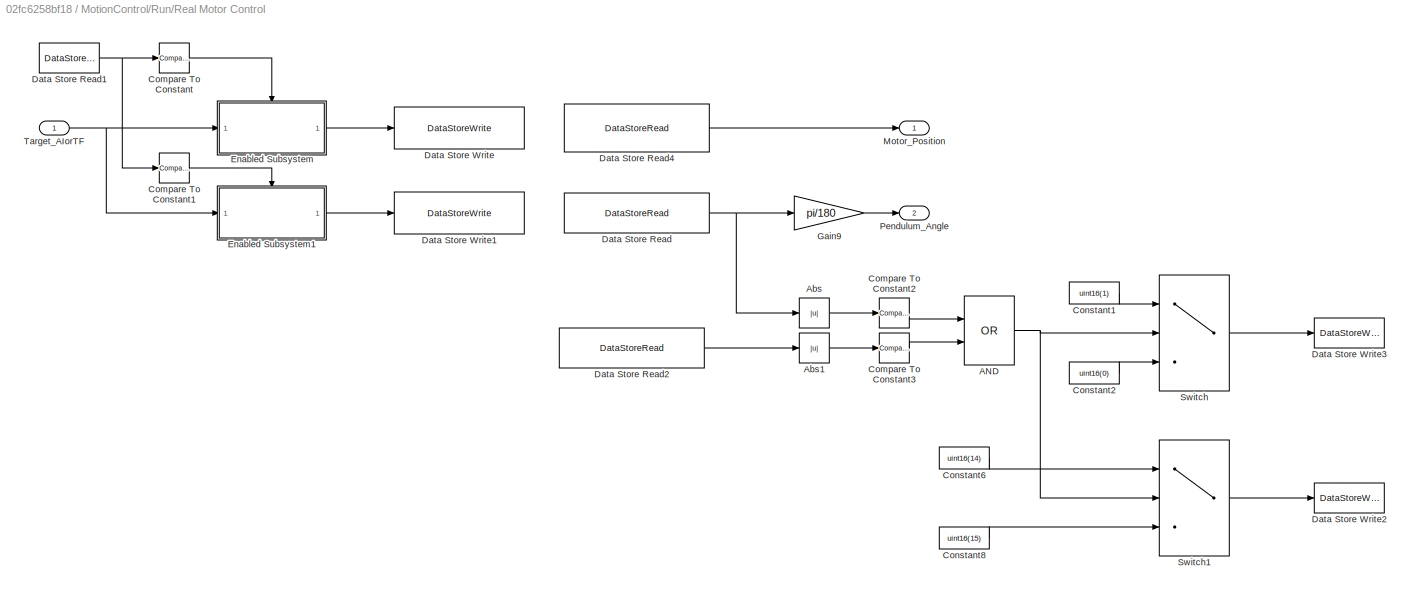
BLOCK [SubSystem] MotionControl/Run/Real Motor Control
  Ports = [1, 2]
  RequestExecContextInheritance = off
BLOCK [Logic] MotionControl/Run/Real Motor Control/AND
  AllPortsSameDT = off
  Operator = OR
  OutDataTypeStr = boolean
  Ports = [2, 1]
BLOCK [Abs] MotionControl/Run/Real Motor Control/Abs
  SaturateOnIntegerOverflow = off
BLOCK [Abs] MotionControl/Run/Real Motor Control/Abs1
  SaturateOnIntegerOverflow = off
BLOCK [Reference] MotionControl/Run/Real Motor Control/Compare To Constant  REF=simulink/Logic and Bit
Operations/Compare
To Constant
  Ports = [1, 1]
  SourceBlock = simulink/Logic and Bit\nOperations/Compare\nTo Constant
  SourceProductBaseCode = SL
  SourceType = Compare To Constant
BLOCK [Reference] MotionControl/Run/Real Motor Control/Compare To Constant1  REF=simulink/Logic and Bit
Operations/Compare
To Constant
  Ports = [1, 1]
  SourceBlock = simulink/Logic and Bit\nOperations/Compare\nTo Constant
  SourceProductBaseCode = SL
  SourceType = Compare To Constant
BLOCK [Reference] MotionControl/Run/Real Motor Control/Compare To Constant2  REF=simulink/Logic and Bit
Operations/Compare
To Constant
  Ports = [1, 1]
  SourceBlock = simulink/Logic and Bit\nOperations/Compare\nTo Constant
  SourceProductBaseCode = SL
  SourceType = Compare To Constant
BLOCK [Reference] MotionControl/Run/Real Motor Control/Compare To Constant3  REF=simulink/Logic and Bit
Operations/Compare
To Constant
  Ports = [1, 1]
  SourceBlock = simulink/Logic and Bit\nOperations/Compare\nTo Constant
  SourceProductBaseCode = SL
  SourceType = Compare To Constant
BLOCK [Constant] MotionControl/Run/Real Motor Control/Constant1
  Value = uint16(1)
BLOCK [Constant] MotionControl/Run/Real Motor Control/Constant2
  Value = uint16(0)
BLOCK [Constant] MotionControl/Run/Real Motor Control/Constant6
  Value = uint16(14)
BLOCK [Constant] MotionControl/Run/Real Motor Control/Constant8
  Value = uint16(15)
BLOCK [DataStoreRead] MotionControl/Run/Real Motor Control/Data Store Read
  DataStoreName = Pendulum_Angle_A
  IndexOptions = Index vector (dialog)
  Indices = 1
  OutputSizes = 1
  Ports = [0, 1]
BLOCK [DataStoreRead] MotionControl/Run/Real Motor Control/Data Store Read1
  DataStoreName = Mode
  IndexOptions = Index vector (dialog)
  Indices = 1
  OutputSizes = 1
  Ports = [0, 1]
BLOCK [DataStoreRead] MotionControl/Run/Real Motor Control/Data Store Read2
  DataStoreName = Motor_Current
  IndexOptions = Index vector (dialog)
  Indices = 1
  OutputSizes = 1
  Ports = [0, 1]
BLOCK [DataStoreRead] MotionControl/Run/Real Motor Control/Data Store Read4
  DataStoreName = Motor_Position_A
  IndexOptions = Index vector (dialog)
  Indices = 1
  OutputSizes = 1
  Ports = [0, 1]
BLOCK [DataStoreWrite] MotionControl/Run/Real Motor Control/Data Store Write
  DataStoreName = Target_Motor_Acc
  IndexOptions = Index vector (dialog)
  Indices = 1
  OutputSizes = 1
  Ports = [1]
BLOCK [DataStoreWrite] MotionControl/Run/Real Motor Control/Data Store Write1
  DataStoreName = Target_Motor_Current
  IndexOptions = Index vector (dialog)
  Indices = 1
  OutputSizes = 1
  Ports = [1]
BLOCK [DataStoreWrite] MotionControl/Run/Real Motor Control/Data Store Write2
  DataStoreName = ControlStep
  IndexOptions = Index vector (dialog)
  Indices = 1
  OutputSizes = 1
  Ports = [1]
BLOCK [DataStoreWrite] MotionControl/Run/Real Motor Control/Data Store Write3
  DataStoreName = AI_Enable
  IndexOptions = Index vector (dialog)
  Indices = 1
  OutputSizes = 1
  Ports = [1]
BLOCK [SubSystem] MotionControl/Run/Real Motor Control/Enabled Subsystem
  Ports = [1, 1, 1]
  RequestExecContextInheritance = off
  TreatAsAtomicUnit = on
BLOCK [EnablePort] MotionControl/Run/Real Motor Control/Enabled Subsystem/Enable
  Ports = []
BLOCK [Outport] MotionControl/Run/Real Motor Control/Enabled Subsystem/Motor
BLOCK [Inport] MotionControl/Run/Real Motor Control/Enabled Subsystem/Target_AIorTF
BLOCK [SubSystem] MotionControl/Run/Real Motor Control/Enabled Subsystem1
  Ports = [1, 1, 1]
  RequestExecContextInheritance = off
  TreatAsAtomicUnit = on
BLOCK [EnablePort] MotionControl/Run/Real Motor Control/Enabled Subsystem1/Enable
  Ports = []
BLOCK [Outport] MotionControl/Run/Real Motor Control/Enabled Subsystem1/Motor
BLOCK [Inport] MotionControl/Run/Real Motor Control/Enabled Subsystem1/Target_AIorTF
BLOCK [Gain] MotionControl/Run/Real Motor Control/Gain9
  Gain = pi/180
  OutDataTypeStr = double
BLOCK [Outport] MotionControl/Run/Real Motor Control/Motor_Position
  VectorParamsAs1DForOutWhenUnconnected = off
BLOCK [Outport] MotionControl/Run/Real Motor Control/Pendulum_Angle
  Port = 2
  VectorParamsAs1DForOutWhenUnconnected = off
BLOCK [Switch] MotionControl/Run/Real Motor Control/Switch
  Criteria = u2 > Threshold
  InputSameDT = off
  SaturateOnIntegerOverflow = off
BLOCK [Switch] MotionControl/Run/Real Motor Control/Switch1
  Criteria = u2 > Threshold
  InputSameDT = off
  SaturateOnIntegerOverflow = off
BLOCK [Inport] MotionControl/Run/Real Motor Control/Target_AIorTF
BLOCK [Outport] MotionControl/Run/Status
  OutDataTypeStr = uint16
  PortDimensions = [1 1]
  VarSizeSig = No
  VectorParamsAs1DForOutWhenUnconnected = off
BLOCK [SubSystem] MotionControl/Run/Subsystem
  Ports = [0, 1]
  RequestExecContextInheritance = off
BLOCK [Reference] MotionControl/Run/Subsystem/Counter Free-Running  REF=simulink/Sources/Counter
Free-Running
  Ports = [0, 1]
  SourceBlock = simulink/Sources/Counter\nFree-Running
  SourceProductBaseCode = SL
  SourceType = Counter Free-Running
BLOCK [Gain] MotionControl/Run/Subsystem/Gain
  Gain = st
  OutDataTypeStr = double
BLOCK [Outport] MotionControl/Run/Subsystem/Signal
BLOCK [SignalGenerator] MotionControl/Run/Subsystem/Signal Generator
  Amplitude = amp
  Frequency = freq
  Ports = [1, 1]
  TimeSource = Use external signal
  WaveForm = square
BLOCK [TriggerPort] MotionControl/Run/f
  CopyFcn = Stateflow.SLINSF.SimulinkMan.removeBlockPreDeleteFcn
  Ports = []
  PreDeleteFcn = Stateflow.SLINSF.SimulinkMan.unsafePredeleteFcn
  StatesWhenEnabling = held
  TriggerType = function-call
  VariantControl = (inherit)
BLOCK [SubSystem] MotionControl/Start
  Ports = [0, 1, 0, 1]
  PreDeleteFcn = Stateflow.SLINSF.SimulinkMan.removePreDeleteFcn
  RequestExecContextInheritance = off
  UndoDeleteFcn = Stateflow.SLINSF.SimulinkMan.restorePreDeleteFcn
BLOCK [Sum] MotionControl/Start/Add
  IconShape = rectangular
  Ports = [2, 1]
BLOCK [SubSystem] MotionControl/Start/BG
  Ports = [0, 0, 0, 0, 0, 0, 0, 1]
  RequestExecContextInheritance = off
  TreatAsAtomicUnit = on
BLOCK [ActionPort] MotionControl/Start/BG/Action Port
BLOCK [Constant] MotionControl/Start/BG/BG
  OutDataTypeStr = uint16
  Value = [hex2dec('4742') 0 0 0]
BLOCK [Constant] MotionControl/Start/BG/Constant
  SampleTime = -1
  Value = uint16(15)
BLOCK [DataStoreWrite] MotionControl/Start/BG/Data Store Write2
  DataStoreName = ControlStep
  IndexOptions = Index vector (dialog)
  Indices = 1
  OutputSizes = 1
  Ports = [1]
BLOCK [SubSystem] MotionControl/Start/BG/eCANA Transmit
  Ports = [1]
  RequestExecContextInheritance = off
  TreatAsAtomicUnit = on
BLOCK [BusAssignment] MotionControl/Start/BG/eCANA Transmit/Bus Assignment
  AssignedSignals = TxWord
  Ports = [2, 1]
  Priority = 1
BLOCK [DataStoreRead] MotionControl/Start/BG/eCANA Transmit/Data Store Read
  DataStoreName = CanMsgA
  IndexOptions = Index vector (dialog)
  Indices = 1
  OutputSizes = 1
  Ports = [0, 1]
BLOCK [DataStoreWrite] MotionControl/Start/BG/eCANA Transmit/Data Store Write
  DataStoreName = CanMsgA
  IndexOptions = Index vector (dialog)
  Indices = 1
  OutputSizes = 1
  Ports = [1]
BLOCK [Inport] MotionControl/Start/BG/eCANA Transmit/DataTx
BLOCK [SubSystem] MotionControl/Start/BG/eCANA Transmit/System Outputs
  CopyFcn = cccopyfcn(gcb)
  OpenFcn = ccopenfcn('System Outputs Function')
  Ports = []
  Priority = 2
  RequestExecContextInheritance = off
BLOCK [Reference] MotionControl/Start/Compare To Constant1  REF=simulink/Logic and Bit
Operations/Compare
To Constant
  Ports = [1, 1]
  SourceBlock = simulink/Logic and Bit\nOperations/Compare\nTo Constant
  SourceProductBaseCode = SL
  SourceType = Compare To Constant
BLOCK [Constant] MotionControl/Start/Constant
  Value = StatusConstStart
BLOCK [Constant] MotionControl/Start/Constant1
  Value = StatusConstReady
BLOCK [DataStoreRead] MotionControl/Start/Data Store Read2
  DataStoreName = ControlStep
  IndexOptions = Index vector (dialog)
  Indices = 1
  OutputSizes = 1
  Ports = [0, 1]
BLOCK [SubSystem] MotionControl/Start/MO=1
  Ports = [0, 0, 0, 0, 0, 0, 0, 1]
  RequestExecContextInheritance = off
  TreatAsAtomicUnit = on
BLOCK [ActionPort] MotionControl/Start/MO=1/Action Port
BLOCK [Bias] MotionControl/Start/MO=1/Add Constant
  Bias = uint16(1)
  SaturateOnIntegerOverflow = off
BLOCK [DataStoreRead] MotionControl/Start/MO=1/Data Store Read
  DataStoreName = ControlStep
  IndexOptions = Index vector (dialog)
  Indices = 1
  OutputSizes = 1
  Ports = [0, 1]
BLOCK [DataStoreWrite] MotionControl/Start/MO=1/Data Store Write1
  DataStoreName = ControlStep
  IndexOptions = Index vector (dialog)
  Indices = 1
  OutputSizes = 1
  Ports = [1]
BLOCK [SubSystem] MotionControl/Start/MO=1/Delay500ms
  CopyFcn = cccopyfcn(gcb)
  OpenFcn = ccopenfcn('System Outputs Function')
  Ports = []
  RequestExecContextInheritance = off
BLOCK [Constant] MotionControl/Start/MO=1/MO
  OutDataTypeStr = uint16
  Value = [hex2dec('4F4D') 0 1 0]
BLOCK [SubSystem] MotionControl/Start/MO=1/eCANA Transmit
  Ports = [1]
  RequestExecContextInheritance = off
  TreatAsAtomicUnit = on
BLOCK [BusAssignment] MotionControl/Start/MO=1/eCANA Transmit/Bus Assignment
  AssignedSignals = TxWord
  Ports = [2, 1]
  Priority = 1
BLOCK [DataStoreRead] MotionControl/Start/MO=1/eCANA Transmit/Data Store Read
  DataStoreName = CanMsgA
  IndexOptions = Index vector (dialog)
  Indices = 1
  OutputSizes = 1
  Ports = [0, 1]
BLOCK [DataStoreWrite] MotionControl/Start/MO=1/eCANA Transmit/Data Store Write
  DataStoreName = CanMsgA
  IndexOptions = Index vector (dialog)
  Indices = 1
  OutputSizes = 1
  Ports = [1]
BLOCK [Inport] MotionControl/Start/MO=1/eCANA Transmit/DataTx
BLOCK [SubSystem] MotionControl/Start/MO=1/eCANA Transmit/System Outputs
  CopyFcn = cccopyfcn(gcb)
  OpenFcn = ccopenfcn('System Outputs Function')
  Ports = []
  Priority = 2
  RequestExecContextInheritance = off
BLOCK [Outport] MotionControl/Start/Status
  OutDataTypeStr = uint16
  PortDimensions = 1
  SignalType = real
  VarSizeSig = No
BLOCK [Switch] MotionControl/Start/Switch
  Criteria = u2 > Threshold
  InputSameDT = off
  SaturateOnIntegerOverflow = off
  Threshold = uint16(0)
BLOCK [SwitchCase] MotionControl/Start/Switch Case
  CaseConditions = {1,2,3}
  Ports = [1, 4]
BLOCK [SubSystem] MotionControl/Start/UM=1or4
  Ports = [0, 0, 0, 0, 0, 0, 0, 1]
  RequestExecContextInheritance = off
  TreatAsAtomicUnit = on
BLOCK [ActionPort] MotionControl/Start/UM=1or4/Action Port
  ActionPortLabel = case [ 2 ]:
BLOCK [Bias] MotionControl/Start/UM=1or4/Add Constant
  Bias = uint16(1)
  SaturateOnIntegerOverflow = off
BLOCK [Constant] MotionControl/Start/UM=1or4/Constant
  OutDataTypeStr = uint16
  Value = hex2dec('4D55')
BLOCK [Constant] MotionControl/Start/UM=1or4/Constant1
  Value = uint16(0)
BLOCK [Constant] MotionControl/Start/UM=1or4/Constant2
  Value = uint16(0)
BLOCK [Constant] MotionControl/Start/UM=1or4/Constant3
  Value = uint16(1)
BLOCK [Constant] MotionControl/Start/UM=1or4/Constant4
  Value = uint16(4)
BLOCK [DataStoreRead] MotionControl/Start/UM=1or4/Data Store Read
  DataStoreName = ControlStep
  IndexOptions = Index vector (dialog)
  Indices = 1
  OutputSizes = 1
  Ports = [0, 1]
BLOCK [DataStoreRead] MotionControl/Start/UM=1or4/Data Store Read1
  DataStoreName = CommandData
  IndexOptions = Index vector (dialog)
  Indices = 1
  OutputSizes = 1
  Ports = [0, 1]
BLOCK [DataStoreWrite] MotionControl/Start/UM=1or4/Data Store Write1
  DataStoreName = ControlStep
  IndexOptions = Index vector (dialog)
  Indices = 1
  OutputSizes = 1
  Ports = [1]
BLOCK [DataStoreWrite] MotionControl/Start/UM=1or4/Data Store Write2
  DataStoreName = Mode
  IndexOptions = Index vector (dialog)
  Indices = 1
  OutputSizes = 1
  Ports = [1]
BLOCK [Mux] MotionControl/Start/UM=1or4/Mux
  DisplayOption = bar
  Ports = [4, 1]
BLOCK [Selector] MotionControl/Start/UM=1or4/Selector
  IndexOptions = Index vector (dialog)
  Indices = 1
  InputPortWidth = 8
  OutputSizes = 1
  Ports = [1, 1]
BLOCK [Switch] MotionControl/Start/UM=1or4/Switch
  Criteria = u2 > Threshold
  InputSameDT = off
  SaturateOnIntegerOverflow = off
BLOCK [SubSystem] MotionControl/Start/UM=1or4/eCANA Transmit
  Ports = [1]
  RequestExecContextInheritance = off
  TreatAsAtomicUnit = on
BLOCK [BusAssignment] MotionControl/Start/UM=1or4/eCANA Transmit/Bus Assignment
  AssignedSignals = TxWord
  Ports = [2, 1]
  Priority = 1
BLOCK [DataStoreRead] MotionControl/Start/UM=1or4/eCANA Transmit/Data Store Read
  DataStoreName = CanMsgA
  IndexOptions = Index vector (dialog)
  Indices = 1
  OutputSizes = 1
  Ports = [0, 1]
BLOCK [DataStoreWrite] MotionControl/Start/UM=1or4/eCANA Transmit/Data Store Write
  DataStoreName = CanMsgA
  IndexOptions = Index vector (dialog)
  Indices = 1
  OutputSizes = 1
  Ports = [1]
BLOCK [Inport] MotionControl/Start/UM=1or4/eCANA Transmit/DataTx
BLOCK [SubSystem] MotionControl/Start/UM=1or4/eCANA Transmit/System Outputs
  CopyFcn = cccopyfcn(gcb)
  OpenFcn = ccopenfcn('System Outputs Function')
  Ports = []
  Priority = 2
  RequestExecContextInheritance = off
BLOCK [TriggerPort] MotionControl/Start/f
  CopyFcn = Stateflow.SLINSF.SimulinkMan.removeBlockPreDeleteFcn
  Ports = []
  PreDeleteFcn = Stateflow.SLINSF.SimulinkMan.unsafePredeleteFcn
  StatesWhenEnabling = held
  TriggerType = function-call
  VariantControl = (inherit)
BLOCK [Outport] MotionControl/Status
BLOCK [SubSystem] MotionControl/Stop
  Ports = [0, 1, 0, 1]
  PreDeleteFcn = Stateflow.SLINSF.SimulinkMan.removePreDeleteFcn
  RequestExecContextInheritance = off
  UndoDeleteFcn = Stateflow.SLINSF.SimulinkMan.restorePreDeleteFcn
BLOCK [Constant] MotionControl/Stop/Constant
  OutDataTypeStr = uint16
BLOCK [Constant] MotionControl/Stop/Constant1
  Value = 0
BLOCK [Constant] MotionControl/Stop/Constant5
  Value = StatusConstReady
BLOCK [DataStoreWrite] MotionControl/Stop/Data Store Write
  DataStoreName = AI_Enable
  IndexOptions = Index vector (dialog)
  Indices = 1
  OutputSizes = 1
  Ports = [1]
BLOCK [DataStoreWrite] MotionControl/Stop/Data Store Write1
  DataStoreName = Target_Motor_Current
  IndexOptions = Index vector (dialog)
  Indices = 1
  OutputSizes = 1
  Ports = [1]
BLOCK [DataStoreWrite] MotionControl/Stop/Data Store Write2
  DataStoreName = Target_Motor_Acc
  IndexOptions = Index vector (dialog)
  Indices = 1
  OutputSizes = 1
  Ports = [1]
BLOCK [Outport] MotionControl/Stop/Status
  OutDataTypeStr = uint16
  PortDimensions = [1 1]
  VarSizeSig = No
  VectorParamsAs1DForOutWhenUnconnected = off
BLOCK [TriggerPort] MotionControl/Stop/f
  CopyFcn = Stateflow.SLINSF.SimulinkMan.removeBlockPreDeleteFcn
  Ports = []
  PreDeleteFcn = Stateflow.SLINSF.SimulinkMan.unsafePredeleteFcn
  StatesWhenEnabling = held
  TriggerType = function-call
  VariantControl = (inherit)
BLOCK [SubSystem] Pendulum
  Ports = []
  RequestExecContextInheritance = off
BLOCK [SubSystem] Pendulum/Subsystem
  Ports = []
  Priority = 1
  RequestExecContextInheritance = off
  TreatAsAtomicUnit = on
BLOCK [Sum] Pendulum/Subsystem/Add2
  IconShape = rectangular
  Inputs = +-
  Ports = [2, 1]
BLOCK [SubSystem] Pendulum/Subsystem/CanReceive
  Ports = [1]
  RTWSystemCode = Reusable function
  RequestExecContextInheritance = off
  TreatAsAtomicUnit = on
BLOCK [Abs] Pendulum/Subsystem/CanReceive/Abs
  SaturateOnIntegerOverflow = off
BLOCK [Reference] Pendulum/Subsystem/CanReceive/Compare To Constant1  REF=simulink/Logic and Bit
Operations/Compare
To Constant
  Ports = [1, 1]
  SourceBlock = simulink/Logic and Bit\nOperations/Compare\nTo Constant
  SourceProductBaseCode = SL
  SourceType = Compare To Constant
BLOCK [DataTypeConversion] Pendulum/Subsystem/CanReceive/Data Type Conversion3
  OutDataTypeStr = int16
  RndMeth = Floor
  SaturateOnIntegerOverflow = off
BLOCK [Demux] Pendulum/Subsystem/CanReceive/Demux
  Ports = [1, 4]
BLOCK [Gain] Pendulum/Subsystem/CanReceive/Gain3
  Gain = 0.01
  OutDataTypeStr = double
BLOCK [Inport] Pendulum/Subsystem/CanReceive/Msg
BLOCK [SubSystem] Pendulum/Subsystem/CanReceive/Subsystem1
  Ports = [3, 0, 1]
  RequestExecContextInheritance = off
BLOCK [Sum] Pendulum/Subsystem/CanReceive/Subsystem1/Add
  IconShape = rectangular
  Ports = [2, 1]
BLOCK [Inport] Pendulum/Subsystem/CanReceive/Subsystem1/Current
BLOCK [DataStoreWrite] Pendulum/Subsystem/CanReceive/Subsystem1/Data Store Write
  DataStoreName = Motor_Current
  IndexOptions = Index vector (dialog)
  Indices = 1
  OutputSizes = 1
  Ports = [1]
BLOCK [DataStoreWrite] Pendulum/Subsystem/CanReceive/Subsystem1/Data Store Write1
  DataStoreName = Motor_Position
  IndexOptions = Index vector (dialog)
  Indices = 1
  OutputSizes = 1
  Ports = [1]
BLOCK [DataTypeConversion] Pendulum/Subsystem/CanReceive/Subsystem1/Data Type Conversion
  OutDataTypeStr = int32
  RndMeth = Floor
  SaturateOnIntegerOverflow = off
BLOCK [DataTypeConversion] Pendulum/Subsystem/CanReceive/Subsystem1/Data Type Conversion2
  OutDataTypeStr = int32
  RndMeth = Floor
  SaturateOnIntegerOverflow = off
BLOCK [EnablePort] Pendulum/Subsystem/CanReceive/Subsystem1/Enable
  Ports = []
BLOCK [Gain] Pendulum/Subsystem/CanReceive/Subsystem1/Gain2
  Gain = 0.001
  OutDataTypeStr = double
BLOCK [Inport] Pendulum/Subsystem/CanReceive/Subsystem1/PosH
  Port = 3
BLOCK [Inport] Pendulum/Subsystem/CanReceive/Subsystem1/PosL
  Port = 2
BLOCK [ArithShift] Pendulum/Subsystem/CanReceive/Subsystem1/Shift Arithmetic1
  BitShiftDirection = Left
  BitShiftNumber = 16
  InputPortMap = u0
  Ports = [1, 1]
BLOCK [Constant] Pendulum/Subsystem/Constant
  OutDataTypeStr = uint16
  Value = hex2dec('4941')
BLOCK [Constant] Pendulum/Subsystem/Constant1
  OutDataTypeStr = uint16
  Value = 0
BLOCK [Constant] Pendulum/Subsystem/Constant4
  OutDataTypeStr = uint16
  Value = hex2dec('4654')
BLOCK [Constant] Pendulum/Subsystem/Constant5
  OutDataTypeStr = uint16
  Value = 0
BLOCK [DataStoreRead] Pendulum/Subsystem/Data Store Read
  DataStoreName = Motor_Position
  IndexOptions = Index vector (dialog)
  Indices = 1
  OutputSizes = 1
  Ports = [0, 1]
BLOCK [DataStoreRead] Pendulum/Subsystem/Data Store Read1
  DataStoreName = Target_Motor_Current
  IndexOptions = Index vector (dialog)
  Indices = 1
  OutputSizes = 1
  Ports = [0, 1]
BLOCK [DataStoreRead] Pendulum/Subsystem/Data Store Read2
  DataStoreName = AI_Enable
  IndexOptions = Index vector (dialog)
  Indices = 1
  OutputSizes = 1
  Ports = [0, 1]
BLOCK [DataStoreRead] Pendulum/Subsystem/Data Store Read3
  DataStoreName = Motor_Position_Zero
  IndexOptions = Index vector (dialog)
  Indices = 1
  OutputSizes = 1
  Ports = [0, 1]
BLOCK [DataStoreRead] Pendulum/Subsystem/Data Store Read4
  DataStoreName = Mode
  IndexOptions = Index vector (dialog)
  Indices = 1
  OutputSizes = 1
  Ports = [0, 1]
BLOCK [DataStoreRead] Pendulum/Subsystem/Data Store Read5
  DataStoreName = Target_Motor_Acc
  IndexOptions = Index vector (dialog)
  Indices = 1
  OutputSizes = 1
  Ports = [0, 1]
BLOCK [DataStoreWrite] Pendulum/Subsystem/Data Store Write5
  DataStoreName = Motor_Position_A
  IndexOptions = Index vector (dialog)
  Indices = 1
  OutputSizes = 1
  Ports = [1]
BLOCK [Gain] Pendulum/Subsystem/Gain
  Gain = -0.001
BLOCK [Gain] Pendulum/Subsystem/Gain1
  Gain = -100
  OutDataTypeStr = uint16
BLOCK [Gain] Pendulum/Subsystem/Gain2
  Gain = -100
  OutDataTypeStr = uint16
BLOCK [Saturate] Pendulum/Subsystem/Limit1
  LowerLimit = -300
  UpperLimit = 300
BLOCK [Saturate] Pendulum/Subsystem/Limit3
  LowerLimit = -3
  UpperLimit = 3
BLOCK [MultiPortSwitch] Pendulum/Subsystem/Multiport Switch1
  DataPortForDefault = Additional data port
  DataPortIndices = {1,4}
  DataPortOrder = Specify indices
  DiagnosticForDefault = None
  InputSameDT = off
  Ports = [4, 1]
  SaturateOnIntegerOverflow = off
BLOCK [Mux] Pendulum/Subsystem/Mux
  DisplayOption = bar
  Ports = [4, 1]
BLOCK [Mux] Pendulum/Subsystem/Mux1
  DisplayOption = bar
  Ports = [4, 1]
BLOCK [SubSystem] Pendulum/Subsystem/eCANA Receive
  Ports = [0, 1]
  RequestExecContextInheritance = off
  TreatAsAtomicUnit = on
BLOCK [BusSelector] Pendulum/Subsystem/eCANA Receive/Bus Selector
  OutputSignals = RxWord
  Ports = [1, 1]
  Priority = 3
BLOCK [DataStoreRead] Pendulum/Subsystem/eCANA Receive/Data Store Read1
  DataStoreName = CanMsgA
  IndexOptions = Index vector (dialog)
  Indices = 1
  OutputSizes = 1
  Ports = [0, 1]
BLOCK [Outport] Pendulum/Subsystem/eCANA Receive/DataRx
BLOCK [SubSystem] Pendulum/Subsystem/eCANA Receive/System Outputs
  CopyFcn = cccopyfcn(gcb)
  OpenFcn = ccopenfcn('System Outputs Function')
  Ports = []
  Priority = 2
  RequestExecContextInheritance = off
BLOCK [SubSystem] Pendulum/Subsystem/eCANA Transmit
  Ports = [1]
  RequestExecContextInheritance = off
  TreatAsAtomicUnit = on
BLOCK [BusAssignment] Pendulum/Subsystem/eCANA Transmit/Bus Assignment
  AssignedSignals = TxWord
  Ports = [2, 1]
  Priority = 1
BLOCK [DataStoreRead] Pendulum/Subsystem/eCANA Transmit/Data Store Read
  DataStoreName = CanMsgA
  IndexOptions = Index vector (dialog)
  Indices = 1
  OutputSizes = 1
  Ports = [0, 1]
BLOCK [DataStoreWrite] Pendulum/Subsystem/eCANA Transmit/Data Store Write
  DataStoreName = CanMsgA
  IndexOptions = Index vector (dialog)
  Indices = 1
  OutputSizes = 1
  Ports = [1]
BLOCK [Inport] Pendulum/Subsystem/eCANA Transmit/DataTx
BLOCK [SubSystem] Pendulum/Subsystem/eCANA Transmit/System Outputs
  CopyFcn = cccopyfcn(gcb)
  OpenFcn = ccopenfcn('System Outputs Function')
  Ports = []
  Priority = 2
  RequestExecContextInheritance = off
BLOCK [SubSystem] Pendulum/Subsystem1
  Ports = []
  RequestExecContextInheritance = off
BLOCK [Sum] Pendulum/Subsystem1/Add
  IconShape = rectangular
  Inputs = +-
  Ports = [2, 1]
BLOCK [DataStoreRead] Pendulum/Subsystem1/Data Store Read1
  DataStoreName = Pendulum_Angle_Zero
  IndexOptions = Index vector (dialog)
  Indices = 1
  OutputSizes = 1
  Ports = [0, 1]
BLOCK [DataStoreWrite] Pendulum/Subsystem1/Data Store Write1
  DataStoreName = Pendulum_Angle_A
  IndexOptions = Index vector (dialog)
  Indices = 1
  OutputSizes = 1
  Ports = [1]
BLOCK [DataStoreWrite] Pendulum/Subsystem1/Data Store Write2
  DataStoreName = Pendulum_Angle
  IndexOptions = Index vector (dialog)
  Indices = 1
  OutputSizes = 1
  Ports = [1]
BLOCK [Gain] Pendulum/Subsystem1/Gain1
  Gain = 360/10000
  OutDataTypeStr = double
BLOCK [Reference] Pendulum/Subsystem1/eQEP  REF=c280xlib/eQEP
  Ports = [0, 1]
  SourceBlock = c280xlib/eQEP
  SourceProductName = Embedded Coder Support Package for Texas Instruments C2000 Processors
  SourceType = C28x eQEP
BLOCK [SubSystem] Status Display
  Ports = []
  RTWSystemCode = Nonreusable function
  RequestExecContextInheritance = off
  TreatAsAtomicUnit = on
BLOCK [Reference] Status Display/CTC  REF=simulink/Logic and Bit
Operations/Compare
To Constant
  Ports = [1, 1]
  SourceBlock = simulink/Logic and Bit\nOperations/Compare\nTo Constant
  SourceProductBaseCode = SL
  SourceType = Compare To Constant
BLOCK [Reference] Status Display/Counter  REF=simulink/Sources/Counter
Limited
  Ports = [0, 1]
  SourceBlock = simulink/Sources/Counter\nLimited
  SourceProductBaseCode = SL
  SourceType = Counter Limited
BLOCK [DataStoreRead] Status Display/Data Store Read1
  DataStoreName = SystemStatus
  IndexOptions = Index vector (dialog)
  Indices = 1
  OutputSizes = 1
  Ports = [0, 1]
BLOCK [DataStoreRead] Status Display/Data Store Read8
  DataStoreName = ErrorStatus
  IndexOptions = Index vector (dialog)
  Indices = 1
  OutputSizes = 1
  Ports = [0, 1]
BLOCK [Delay] Status Display/Delay
  DelayLength = 1
  InputPortMap = u0
  Ports = [1, 1]
BLOCK [SubSystem] Status Display/Enabled Subsystem
  Ports = [2, 0, 1]
  RequestExecContextInheritance = off
  TreatAsAtomicUnit = on
BLOCK [EnablePort] Status Display/Enabled Subsystem/Enable
  Ports = []
BLOCK [SubSystem] Status Display/Enabled Subsystem/Status Display
  Commented = on
  Ports = [1]
  RequestExecContextInheritance = off
  TreatAsAtomicUnit = on
BLOCK [Reference] Status Display/Enabled Subsystem/Status Display/Bitwise AND  REF=simulink/Logic and Bit
Operations/Bitwise
Operator
  Ports = [1, 1]
  SourceBlock = simulink/Logic and Bit\nOperations/Bitwise\nOperator
  SourceProductBaseCode = SL
  SourceType = Bitwise Operator
BLOCK [Reference] Status Display/Enabled Subsystem/Status Display/Bitwise AND1  REF=simulink/Logic and Bit
Operations/Bitwise
Operator
  Ports = [1, 1]
  SourceBlock = simulink/Logic and Bit\nOperations/Bitwise\nOperator
  SourceProductBaseCode = SL
  SourceType = Bitwise Operator
BLOCK [Reference] Status Display/Enabled Subsystem/Status Display/Bitwise AND2  REF=simulink/Logic and Bit
Operations/Bitwise
Operator
  Ports = [1, 1]
  SourceBlock = simulink/Logic and Bit\nOperations/Bitwise\nOperator
  SourceProductBaseCode = SL
  SourceType = Bitwise Operator
BLOCK [Reference] Status Display/Enabled Subsystem/Status Display/Bitwise AND3  REF=simulink/Logic and Bit
Operations/Bitwise
Operator
  Ports = [1, 1]
  SourceBlock = simulink/Logic and Bit\nOperations/Bitwise\nOperator
  SourceProductBaseCode = SL
  SourceType = Bitwise Operator
BLOCK [DataTypeConversion] Status Display/Enabled Subsystem/Status Display/Data Type Conversion
  OutDataTypeStr = uint8
  RndMeth = Floor
  SaturateOnIntegerOverflow = off
BLOCK [DataTypeConversion] Status Display/Enabled Subsystem/Status Display/Data Type Conversion1
  OutDataTypeStr = uint8
  RndMeth = Floor
  SaturateOnIntegerOverflow = off
BLOCK [DataTypeConversion] Status Display/Enabled Subsystem/Status Display/Data Type Conversion2
  OutDataTypeStr = uint8
  RndMeth = Floor
  SaturateOnIntegerOverflow = off
BLOCK [DataTypeConversion] Status Display/Enabled Subsystem/Status Display/Data Type Conversion3
  OutDataTypeStr = uint8
  RndMeth = Floor
  SaturateOnIntegerOverflow = off
BLOCK [Reference] Status Display/Enabled Subsystem/Status Display/Memory Copy1  REF=idelinklib_common/Memory Copy
  Ports = [1]
  SourceBlock = idelinklib_common/Memory Copy
  SourceProductBaseCode = ME
  SourceType = Memory Copy
BLOCK [Mux] Status Display/Enabled Subsystem/Status Display/Mux
  DisplayOption = bar
  Ports = [4, 1]
BLOCK [Inport] Status Display/Enabled Subsystem/Status Display/SEG
BLOCK [ArithShift] Status Display/Enabled Subsystem/Status Display/Shift Arithmetic
  BitShiftDirection = Right
  BitShiftNumber = 4
  InputPortMap = u0
  Ports = [1, 1]
BLOCK [ArithShift] Status Display/Enabled Subsystem/Status Display/Shift Arithmetic1
  BitShiftDirection = Right
  BitShiftNumber = 8
  InputPortMap = u0
  Ports = [1, 1]
BLOCK [ArithShift] Status Display/Enabled Subsystem/Status Display/Shift Arithmetic2
  BitShiftDirection = Right
  BitShiftNumber = 12
  InputPortMap = u0
  Ports = [1, 1]
BLOCK [SubSystem] Status Display/Enabled Subsystem/Status Display/System Outputs
  CopyFcn = cccopyfcn(gcb)
  OpenFcn = ccopenfcn('System Outputs Function')
  Ports = []
  RequestExecContextInheritance = off
BLOCK [SubSystem] Status Display/Enabled Subsystem/Status Display/数码显示
  Commented = on
  Ports = [4]
  RTWSystemCode = Reusable function
  RequestExecContextInheritance = off
  TreatAsAtomicUnit = on
BLOCK [Reference] Status Display/Enabled Subsystem/Status Display/数码显示/Memory Copy1  REF=idelinklib_common/Memory Copy
  Ports = [1]
  SourceBlock = idelinklib_common/Memory Copy
  SourceProductBaseCode = ME
  SourceType = Memory Copy
BLOCK [Mux] Status Display/Enabled Subsystem/Status Display/数码显示/Mux
  DisplayOption = bar
  Ports = [4, 1]
BLOCK [Inport] Status Display/Enabled Subsystem/Status Display/数码显示/SEG1
  OutDataTypeStr = uint8
BLOCK [Inport] Status Display/Enabled Subsystem/Status Display/数码显示/SEG2
  OutDataTypeStr = uint8
  Port = 2
BLOCK [Inport] Status Display/Enabled Subsystem/Status Display/数码显示/SEG3
  OutDataTypeStr = uint8
  Port = 3
BLOCK [Inport] Status Display/Enabled Subsystem/Status Display/数码显示/SEG4
  OutDataTypeStr = uint8
  Port = 4
BLOCK [SubSystem] Status Display/Enabled Subsystem/Status Display/数码显示/System Outputs
  CopyFcn = cccopyfcn(gcb)
  OpenFcn = ccopenfcn('System Outputs Function')
  Ports = []
  RequestExecContextInheritance = off
BLOCK [SubSystem] Status Display/Enabled Subsystem/Status Display1
  Ports = [1]
  RequestExecContextInheritance = off
  TreatAsAtomicUnit = on
BLOCK [Reference] Status Display/Enabled Subsystem/Status Display1/Bitwise AND  REF=simulink/Logic and Bit
Operations/Bitwise
Operator
  Ports = [1, 1]
  SourceBlock = simulink/Logic and Bit\nOperations/Bitwise\nOperator
  SourceProductBaseCode = SL
  SourceType = Bitwise Operator
BLOCK [Reference] Status Display/Enabled Subsystem/Status Display1/Bitwise AND1  REF=simulink/Logic and Bit
Operations/Bitwise
Operator
  Ports = [1, 1]
  SourceBlock = simulink/Logic and Bit\nOperations/Bitwise\nOperator
  SourceProductBaseCode = SL
  SourceType = Bitwise Operator
BLOCK [Reference] Status Display/Enabled Subsystem/Status Display1/Bitwise AND2  REF=simulink/Logic and Bit
Operations/Bitwise
Operator
  Ports = [1, 1]
  SourceBlock = simulink/Logic and Bit\nOperations/Bitwise\nOperator
  SourceProductBaseCode = SL
  SourceType = Bitwise Operator
BLOCK [Reference] Status Display/Enabled Subsystem/Status Display1/Bitwise AND3  REF=simulink/Logic and Bit
Operations/Bitwise
Operator
  Ports = [1, 1]
  SourceBlock = simulink/Logic and Bit\nOperations/Bitwise\nOperator
  SourceProductBaseCode = SL
  SourceType = Bitwise Operator
BLOCK [DataTypeConversion] Status Display/Enabled Subsystem/Status Display1/Data Type Conversion
  OutDataTypeStr = uint8
  RndMeth = Floor
  SaturateOnIntegerOverflow = off
BLOCK [DataTypeConversion] Status Display/Enabled Subsystem/Status Display1/Data Type Conversion1
  OutDataTypeStr = uint8
  RndMeth = Floor
  SaturateOnIntegerOverflow = off
BLOCK [DataTypeConversion] Status Display/Enabled Subsystem/Status Display1/Data Type Conversion2
  OutDataTypeStr = uint8
  RndMeth = Floor
  SaturateOnIntegerOverflow = off
BLOCK [DataTypeConversion] Status Display/Enabled Subsystem/Status Display1/Data Type Conversion3
  OutDataTypeStr = uint8
  RndMeth = Floor
  SaturateOnIntegerOverflow = off
BLOCK [Reference] Status Display/Enabled Subsystem/Status Display1/Memory Copy1  REF=idelinklib_common/Memory Copy
  Ports = [1]
  SourceBlock = idelinklib_common/Memory Copy
  SourceProductBaseCode = ME
  SourceType = Memory Copy
BLOCK [Mux] Status Display/Enabled Subsystem/Status Display1/Mux
  DisplayOption = bar
  Ports = [4, 1]
BLOCK [ArithShift] Status Display/Enabled Subsystem/Status Display1/Shift Arithmetic
  BitShiftDirection = Right
  BitShiftNumber = 4
  InputPortMap = u0
  Ports = [1, 1]
BLOCK [ArithShift] Status Display/Enabled Subsystem/Status Display1/Shift Arithmetic1
  BitShiftDirection = Right
  BitShiftNumber = 8
  InputPortMap = u0
  Ports = [1, 1]
BLOCK [ArithShift] Status Display/Enabled Subsystem/Status Display1/Shift Arithmetic2
  BitShiftDirection = Right
  BitShiftNumber = 12
  InputPortMap = u0
  Ports = [1, 1]
BLOCK [Inport] Status Display/Enabled Subsystem/Status Display1/String
BLOCK [SubSystem] Status Display/Enabled Subsystem/Status Display2
  Ports = [1]
  RequestExecContextInheritance = off
  TreatAsAtomicUnit = on
BLOCK [Reference] Status Display/Enabled Subsystem/Status Display2/Bitwise AND  REF=simulink/Logic and Bit
Operations/Bitwise
Operator
  Ports = [1, 1]
  SourceBlock = simulink/Logic and Bit\nOperations/Bitwise\nOperator
  SourceProductBaseCode = SL
  SourceType = Bitwise Operator
BLOCK [Reference] Status Display/Enabled Subsystem/Status Display2/Bitwise AND1  REF=simulink/Logic and Bit
Operations/Bitwise
Operator
  Ports = [1, 1]
  SourceBlock = simulink/Logic and Bit\nOperations/Bitwise\nOperator
  SourceProductBaseCode = SL
  SourceType = Bitwise Operator
BLOCK [Reference] Status Display/Enabled Subsystem/Status Display2/Bitwise AND2  REF=simulink/Logic and Bit
Operations/Bitwise
Operator
  Ports = [1, 1]
  SourceBlock = simulink/Logic and Bit\nOperations/Bitwise\nOperator
  SourceProductBaseCode = SL
  SourceType = Bitwise Operator
BLOCK [Reference] Status Display/Enabled Subsystem/Status Display2/Bitwise AND3  REF=simulink/Logic and Bit
Operations/Bitwise
Operator
  Ports = [1, 1]
  SourceBlock = simulink/Logic and Bit\nOperations/Bitwise\nOperator
  SourceProductBaseCode = SL
  SourceType = Bitwise Operator
BLOCK [DataTypeConversion] Status Display/Enabled Subsystem/Status Display2/Data Type Conversion
  OutDataTypeStr = uint8
  RndMeth = Floor
  SaturateOnIntegerOverflow = off
BLOCK [DataTypeConversion] Status Display/Enabled Subsystem/Status Display2/Data Type Conversion1
  OutDataTypeStr = uint8
  RndMeth = Floor
  SaturateOnIntegerOverflow = off
BLOCK [DataTypeConversion] Status Display/Enabled Subsystem/Status Display2/Data Type Conversion2
  OutDataTypeStr = uint8
  RndMeth = Floor
  SaturateOnIntegerOverflow = off
BLOCK [DataTypeConversion] Status Display/Enabled Subsystem/Status Display2/Data Type Conversion3
  OutDataTypeStr = uint8
  RndMeth = Floor
  SaturateOnIntegerOverflow = off
BLOCK [Reference] Status Display/Enabled Subsystem/Status Display2/Memory Copy1  REF=idelinklib_common/Memory Copy
  Ports = [1]
  SourceBlock = idelinklib_common/Memory Copy
  SourceProductBaseCode = ME
  SourceType = Memory Copy
BLOCK [Mux] Status Display/Enabled Subsystem/Status Display2/Mux
  DisplayOption = bar
  Ports = [4, 1]
BLOCK [ArithShift] Status Display/Enabled Subsystem/Status Display2/Shift Arithmetic
  BitShiftDirection = Right
  BitShiftNumber = 4
  InputPortMap = u0
  Ports = [1, 1]
BLOCK [ArithShift] Status Display/Enabled Subsystem/Status Display2/Shift Arithmetic1
  BitShiftDirection = Right
  BitShiftNumber = 8
  InputPortMap = u0
  Ports = [1, 1]
BLOCK [ArithShift] Status Display/Enabled Subsystem/Status Display2/Shift Arithmetic2
  BitShiftDirection = Right
  BitShiftNumber = 12
  InputPortMap = u0
  Ports = [1, 1]
BLOCK [Inport] Status Display/Enabled Subsystem/Status Display2/String
BLOCK [Inport] Status Display/Enabled Subsystem/Status1
BLOCK [Inport] Status Display/Enabled Subsystem/Status2
  Port = 2
BLOCK [SubSystem] Status Display/Enabled Subsystem/System Outputs1
  CopyFcn = cccopyfcn(gcb)
  OpenFcn = ccopenfcn('System Outputs Function')
  Ports = []
  RequestExecContextInheritance = off
BLOCK [Reference] Status Display/GPIO28  REF=c2833xlib/Digital Output
  Ports = [1]
  SourceBlock = c2833xlib/Digital Output
  SourceProductBaseCode = TIC2000
  SourceType = C2833x GPIO Digital Output
  UserDataPersistent = on
BLOCK [RelationalOperator] Status Display/Relational Operator1
  InputSameDT = off
  Operator = ~=
  OutDataTypeStr = boolean
  Ports = [2, 1]
  RndMeth = Simplest
BLOCK [SubSystem] Status Upload
  Ports = []
  RequestExecContextInheritance = off
  TreatAsAtomicUnit = on
BLOCK [Sum] Status Upload/Add3
  IconShape = rectangular
  Inputs = +++
  Ports = [3, 1]
BLOCK [Constant] Status Upload/Constant1
  OutDataTypeStr = uint16
  SampleTime = -1
  Value = hex2dec('5AA5')
BLOCK [Constant] Status Upload/Constant2
  Value = uint16(36)
BLOCK [DataStoreRead] Status Upload/Data Store Read1
  DataStoreName = SystemStatus
  IndexOptions = Index vector (dialog)
  Indices = 1
  OutputSizes = 1
  Ports = [0, 1]
BLOCK [DataStoreRead] Status Upload/Data Store Read10
  DataStoreElements = StatusData(3)
  DataStoreName = StatusData
  IndexOptions = Index vector (dialog)
  Indices = 1
  OutputSizes = 1
  Ports = [0, 1]
BLOCK [DataStoreRead] Status Upload/Data Store Read2
  DataStoreName = Motor_Position_A
  IndexOptions = Index vector (dialog)
  Indices = 1
  OutputSizes = 1
  Ports = [0, 1]
BLOCK [DataStoreRead] Status Upload/Data Store Read20
  Commented = on
  DataStoreName = Send_GUIdata
  IndexOptions = Index vector (dialog)
  Indices = 1
  OutputSizes = 1
  Ports = [0, 1]
BLOCK [DataStoreRead] Status Upload/Data Store Read3
  DataStoreName = Pendulum_Angle_A
  IndexOptions = Index vector (dialog)
  Indices = 1
  OutputSizes = 1
  Ports = [0, 1]
BLOCK [DataStoreRead] Status Upload/Data Store Read4
  DataStoreName = Motor_Current
  IndexOptions = Index vector (dialog)
  Indices = 1
  OutputSizes = 1
  Ports = [0, 1]
BLOCK [DataStoreRead] Status Upload/Data Store Read5
  DataStoreName = ErrorStatus
  IndexOptions = Index vector (dialog)
  Indices = 1
  OutputSizes = 1
  Ports = [0, 1]
BLOCK [DataStoreRead] Status Upload/Data Store Read6
  DataStoreName = Target_Motor_Pos
  IndexOptions = Index vector (dialog)
  Indices = 1
  OutputSizes = 1
  Ports = [0, 1]
BLOCK [DataStoreRead] Status Upload/Data Store Read7
  DataStoreName = Target_Motor_Acc
  IndexOptions = Index vector (dialog)
  Indices = 1
  OutputSizes = 1
  Ports = [0, 1]
BLOCK [DataStoreRead] Status Upload/Data Store Read8
  DataStoreElements = StatusData(1)
  DataStoreName = StatusData
  IndexOptions = Index vector (dialog)
  Indices = 1
  OutputSizes = 1
  Ports = [0, 1]
BLOCK [DataStoreRead] Status Upload/Data Store Read9
  DataStoreElements = StatusData(2)
  DataStoreName = StatusData
  IndexOptions = Index vector (dialog)
  Indices = 1
  OutputSizes = 1
  Ports = [0, 1]
BLOCK [Gain] Status Upload/Gain
  Gain = 1000
BLOCK [Mux] Status Upload/Mux
  DisplayOption = bar
  Inputs = 6
  Ports = [6, 1]
BLOCK [Mux] Status Upload/Mux1
  DisplayOption = bar
  Inputs = 8
  Ports = [8, 1]
BLOCK [SubSystem] Status Upload/PositionFloatToInt
  Ports = [1, 1]
  RequestExecContextInheritance = off
BLOCK [Demux] Status Upload/PositionFloatToInt/Demux
  Outputs = 8
  Ports = [1, 8]
BLOCK [Inport] Status Upload/PositionFloatToInt/In1
BLOCK [SubSystem] Status Upload/PositionFloatToInt/MATLAB Function1
  ErrorFcn = Stateflow.Translate.translate
  PermitHierarchicalResolution = ExplicitOnly
  Ports = [1, 1]
  RequestExecContextInheritance = off
  SFBlockType = MATLAB Function
  TreatAsAtomicUnit = on
BLOCK [Demux] Status Upload/PositionFloatToInt/MATLAB Function1/ Demux 
  Outputs = 1
  Ports = [1, 1]
BLOCK [S-Function] Status Upload/PositionFloatToInt/MATLAB Function1/ SFunction 
  EnableBusSupport = off
  FunctionName = sf_sfun
  PortCounts = [1 2]
  Ports = [1, 2]
  SFcnIsStateOwnerBlock = off
  SFunctionDeploymentMode = off
  Tag = Stateflow S-Function 4
BLOCK [Terminator] Status Upload/PositionFloatToInt/MATLAB Function1/ Terminator 
BLOCK [Inport] Status Upload/PositionFloatToInt/MATLAB Function1/u
BLOCK [Outport] Status Upload/PositionFloatToInt/MATLAB Function1/y
BLOCK [SubSystem] Status Upload/PositionFloatToInt/MATLAB Function2
  ErrorFcn = Stateflow.Translate.translate
  PermitHierarchicalResolution = ExplicitOnly
  Ports = [1, 1]
  RequestExecContextInheritance = off
  SFBlockType = MATLAB Function
  TreatAsAtomicUnit = on
BLOCK [Demux] Status Upload/PositionFloatToInt/MATLAB Function2/ Demux 
  Outputs = 1
  Ports = [1, 1]
BLOCK [S-Function] Status Upload/PositionFloatToInt/MATLAB Function2/ SFunction 
  EnableBusSupport = off
  FunctionName = sf_sfun
  PortCounts = [1 2]
  Ports = [1, 2]
  SFcnIsStateOwnerBlock = off
  SFunctionDeploymentMode = off
  Tag = Stateflow S-Function 3
BLOCK [Terminator] Status Upload/PositionFloatToInt/MATLAB Function2/ Terminator 
BLOCK [Inport] Status Upload/PositionFloatToInt/MATLAB Function2/u
BLOCK [Outport] Status Upload/PositionFloatToInt/MATLAB Function2/y
BLOCK [SubSystem] Status Upload/PositionFloatToInt/MATLAB Function3
  ErrorFcn = Stateflow.Translate.translate
  PermitHierarchicalResolution = ExplicitOnly
  Ports = [1, 1]
  RequestExecContextInheritance = off
  SFBlockType = MATLAB Function
  TreatAsAtomicUnit = on
BLOCK [Demux] Status Upload/PositionFloatToInt/MATLAB Function3/ Demux 
  Outputs = 1
  Ports = [1, 1]
BLOCK [S-Function] Status Upload/PositionFloatToInt/MATLAB Function3/ SFunction 
  EnableBusSupport = off
  FunctionName = sf_sfun
  PortCounts = [1 2]
  Ports = [1, 2]
  SFcnIsStateOwnerBlock = off
  SFunctionDeploymentMode = off
  Tag = Stateflow S-Function 5
BLOCK [Terminator] Status Upload/PositionFloatToInt/MATLAB Function3/ Terminator 
BLOCK [Inport] Status Upload/PositionFloatToInt/MATLAB Function3/u
BLOCK [Outport] Status Upload/PositionFloatToInt/MATLAB Function3/y
BLOCK [SubSystem] Status Upload/PositionFloatToInt/MATLAB Function4
  ErrorFcn = Stateflow.Translate.translate
  PermitHierarchicalResolution = ExplicitOnly
  Ports = [1, 1]
  RequestExecContextInheritance = off
  SFBlockType = MATLAB Function
  TreatAsAtomicUnit = on
BLOCK [Demux] Status Upload/PositionFloatToInt/MATLAB Function4/ Demux 
  Outputs = 1
  Ports = [1, 1]
BLOCK [S-Function] Status Upload/PositionFloatToInt/MATLAB Function4/ SFunction 
  EnableBusSupport = off
  FunctionName = sf_sfun
  PortCounts = [1 2]
  Ports = [1, 2]
  SFcnIsStateOwnerBlock = off
  SFunctionDeploymentMode = off
  Tag = Stateflow S-Function 6
BLOCK [Terminator] Status Upload/PositionFloatToInt/MATLAB Function4/ Terminator 
BLOCK [Inport] Status Upload/PositionFloatToInt/MATLAB Function4/u
BLOCK [Outport] Status Upload/PositionFloatToInt/MATLAB Function4/y
BLOCK [SubSystem] Status Upload/PositionFloatToInt/MATLAB Function5
  ErrorFcn = Stateflow.Translate.translate
  PermitHierarchicalResolution = ExplicitOnly
  Ports = [1, 1]
  RequestExecContextInheritance = off
  SFBlockType = MATLAB Function
  TreatAsAtomicUnit = on
BLOCK [Demux] Status Upload/PositionFloatToInt/MATLAB Function5/ Demux 
  Outputs = 1
  Ports = [1, 1]
BLOCK [S-Function] Status Upload/PositionFloatToInt/MATLAB Function5/ SFunction 
  EnableBusSupport = off
  FunctionName = sf_sfun
  PortCounts = [1 2]
  Ports = [1, 2]
  SFcnIsStateOwnerBlock = off
  SFunctionDeploymentMode = off
  Tag = Stateflow S-Function 7
BLOCK [Terminator] Status Upload/PositionFloatToInt/MATLAB Function5/ Terminator 
BLOCK [Inport] Status Upload/PositionFloatToInt/MATLAB Function5/u
BLOCK [Outport] Status Upload/PositionFloatToInt/MATLAB Function5/y
BLOCK [SubSystem] Status Upload/PositionFloatToInt/MATLAB Function6
  ErrorFcn = Stateflow.Translate.translate
  PermitHierarchicalResolution = ExplicitOnly
  Ports = [1, 1]
  RequestExecContextInheritance = off
  SFBlockType = MATLAB Function
  TreatAsAtomicUnit = on
BLOCK [Demux] Status Upload/PositionFloatToInt/MATLAB Function6/ Demux 
  Outputs = 1
  Ports = [1, 1]
BLOCK [S-Function] Status Upload/PositionFloatToInt/MATLAB Function6/ SFunction 
  EnableBusSupport = off
  FunctionName = sf_sfun
  PortCounts = [1 2]
  Ports = [1, 2]
  SFcnIsStateOwnerBlock = off
  SFunctionDeploymentMode = off
  Tag = Stateflow S-Function 8
BLOCK [Terminator] Status Upload/PositionFloatToInt/MATLAB Function6/ Terminator 
BLOCK [Inport] Status Upload/PositionFloatToInt/MATLAB Function6/u
BLOCK [Outport] Status Upload/PositionFloatToInt/MATLAB Function6/y
BLOCK [SubSystem] Status Upload/PositionFloatToInt/MATLAB Function7
  ErrorFcn = Stateflow.Translate.translate
  PermitHierarchicalResolution = ExplicitOnly
  Ports = [1, 1]
  RequestExecContextInheritance = off
  SFBlockType = MATLAB Function
  TreatAsAtomicUnit = on
BLOCK [Demux] Status Upload/PositionFloatToInt/MATLAB Function7/ Demux 
  Outputs = 1
  Ports = [1, 1]
BLOCK [S-Function] Status Upload/PositionFloatToInt/MATLAB Function7/ SFunction 
  EnableBusSupport = off
  FunctionName = sf_sfun
  PortCounts = [1 2]
  Ports = [1, 2]
  SFcnIsStateOwnerBlock = off
  SFunctionDeploymentMode = off
  Tag = Stateflow S-Function 1
BLOCK [Terminator] Status Upload/PositionFloatToInt/MATLAB Function7/ Terminator 
BLOCK [Inport] Status Upload/PositionFloatToInt/MATLAB Function7/u
BLOCK [Outport] Status Upload/PositionFloatToInt/MATLAB Function7/y
BLOCK [SubSystem] Status Upload/PositionFloatToInt/MATLAB Function8
  ErrorFcn = Stateflow.Translate.translate
  PermitHierarchicalResolution = ExplicitOnly
  Ports = [1, 1]
  RequestExecContextInheritance = off
  SFBlockType = MATLAB Function
  TreatAsAtomicUnit = on
BLOCK [Demux] Status Upload/PositionFloatToInt/MATLAB Function8/ Demux 
  Outputs = 1
  Ports = [1, 1]
BLOCK [S-Function] Status Upload/PositionFloatToInt/MATLAB Function8/ SFunction 
  EnableBusSupport = off
  FunctionName = sf_sfun
  PortCounts = [1 2]
  Ports = [1, 2]
  SFcnIsStateOwnerBlock = off
  SFunctionDeploymentMode = off
  Tag = Stateflow S-Function 21
BLOCK [Terminator] Status Upload/PositionFloatToInt/MATLAB Function8/ Terminator 
BLOCK [Inport] Status Upload/PositionFloatToInt/MATLAB Function8/u
BLOCK [Outport] Status Upload/PositionFloatToInt/MATLAB Function8/y
BLOCK [Mux] Status Upload/PositionFloatToInt/Mux
  DisplayOption = bar
  Inputs = 8
  Ports = [8, 1]
BLOCK [Outport] Status Upload/PositionFloatToInt/Out1
BLOCK [SubSystem] Status Upload/PositionFloatToInt/Subsystem
  Commented = on
  Ports = [8, 8]
  RequestExecContextInheritance = off
BLOCK [Inport] Status Upload/PositionFloatToInt/Subsystem/In1
BLOCK [Inport] Status Upload/PositionFloatToInt/Subsystem/In2
  Port = 2
BLOCK [Inport] Status Upload/PositionFloatToInt/Subsystem/In3
  Port = 3
BLOCK [Inport] Status Upload/PositionFloatToInt/Subsystem/In4
  Port = 4
BLOCK [Inport] Status Upload/PositionFloatToInt/Subsystem/In5
  Port = 5
BLOCK [Inport] Status Upload/PositionFloatToInt/Subsystem/In6
  Port = 6
BLOCK [Inport] Status Upload/PositionFloatToInt/Subsystem/In7
  Port = 7
BLOCK [Inport] Status Upload/PositionFloatToInt/Subsystem/In8
  Port = 8
BLOCK [Outport] Status Upload/PositionFloatToInt/Subsystem/Out1
BLOCK [Outport] Status Upload/PositionFloatToInt/Subsystem/Out2
  Port = 2
BLOCK [Outport] Status Upload/PositionFloatToInt/Subsystem/Out3
  Port = 3
BLOCK [Outport] Status Upload/PositionFloatToInt/Subsystem/Out4
  Port = 4
BLOCK [Outport] Status Upload/PositionFloatToInt/Subsystem/Out5
  Port = 5
BLOCK [Outport] Status Upload/PositionFloatToInt/Subsystem/Out6
  Port = 6
BLOCK [Outport] Status Upload/PositionFloatToInt/Subsystem/Out7
  Port = 7
BLOCK [Outport] Status Upload/PositionFloatToInt/Subsystem/Out8
  Port = 8
BLOCK [Selector] Status Upload/PositionFloatToInt/Subsystem/Selector
  IndexOptions = Index vector (dialog)
  Indices = 1
  InputPortWidth = 8
  OutputSizes = 1
  Ports = [1, 1]
BLOCK [Selector] Status Upload/PositionFloatToInt/Subsystem/Selector1
  IndexOptions = Index vector (dialog)
  Indices = 2
  InputPortWidth = 8
  OutputSizes = 1
  Ports = [1, 1]
BLOCK [Selector] Status Upload/PositionFloatToInt/Subsystem/Selector2
  IndexOptions = Index vector (dialog)
  Indices = 3
  InputPortWidth = 8
  OutputSizes = 1
  Ports = [1, 1]
BLOCK [Selector] Status Upload/PositionFloatToInt/Subsystem/Selector3
  IndexOptions = Index vector (dialog)
  Indices = 4
  InputPortWidth = 8
  OutputSizes = 1
  Ports = [1, 1]
BLOCK [Selector] Status Upload/PositionFloatToInt/Subsystem/Selector4
  IndexOptions = Index vector (dialog)
  Indices = 5
  InputPortWidth = 8
  OutputSizes = 1
  Ports = [1, 1]
BLOCK [Selector] Status Upload/PositionFloatToInt/Subsystem/Selector5
  IndexOptions = Index vector (dialog)
  Indices = 6
  InputPortWidth = 8
  OutputSizes = 1
  Ports = [1, 1]
BLOCK [Selector] Status Upload/PositionFloatToInt/Subsystem/Selector6
  IndexOptions = Index vector (dialog)
  Indices = 6
  InputPortWidth = 8
  OutputSizes = 1
  Ports = [1, 1]
BLOCK [Selector] Status Upload/PositionFloatToInt/Subsystem/Selector7
  IndexOptions = Index vector (dialog)
  Indices = 6
  InputPortWidth = 8
  OutputSizes = 1
  Ports = [1, 1]
BLOCK [Reference] Status Upload/SCI Transmit  REF=c280xlib/SCI Transmit
  Ports = [1]
  SourceBlock = c280xlib/SCI Transmit
  SourceProductBaseCode = TIC2000
  SourceType = C28x SCI Transmit
BLOCK [SubSystem] Status Upload/Subsystem3
  Ports = [1, 1]
  RequestExecContextInheritance = off
BLOCK [Sum] Status Upload/Subsystem3/Add
  IconShape = rectangular
  Inputs = ++++++++++++++++
  Ports = [16, 1]
BLOCK [Demux] Status Upload/Subsystem3/Demux
  Outputs = 8
  Ports = [1, 8]
BLOCK [Demux] Status Upload/Subsystem3/Demux1
  Outputs = 2
  Ports = [1, 2]
BLOCK [Demux] Status Upload/Subsystem3/Demux2
  Outputs = 2
  Ports = [1, 2]
BLOCK [Demux] Status Upload/Subsystem3/Demux3
  Outputs = 2
  Ports = [1, 2]
BLOCK [Demux] Status Upload/Subsystem3/Demux4
  Outputs = 2
  Ports = [1, 2]
BLOCK [Demux] Status Upload/Subsystem3/Demux5
  Outputs = 2
  Ports = [1, 2]
BLOCK [Demux] Status Upload/Subsystem3/Demux6
  Outputs = 2
  Ports = [1, 2]
BLOCK [Demux] Status Upload/Subsystem3/Demux7
  Outputs = 2
  Ports = [1, 2]
BLOCK [Demux] Status Upload/Subsystem3/Demux8
  Outputs = 2
  Ports = [1, 2]
BLOCK [Inport] Status Upload/Subsystem3/In1
BLOCK [Outport] Status Upload/Subsystem3/Out1
BLOCK [SubSystem] Status Upload/VariantSubsystem
  Commented = on
  LabelModeActiveChoice = Variant1
  Ports = [1]
  RequestExecContextInheritance = off
  Variant = on
  VariantControlMode = label
BLOCK [Inport] Status Upload/VariantSubsystem/In1
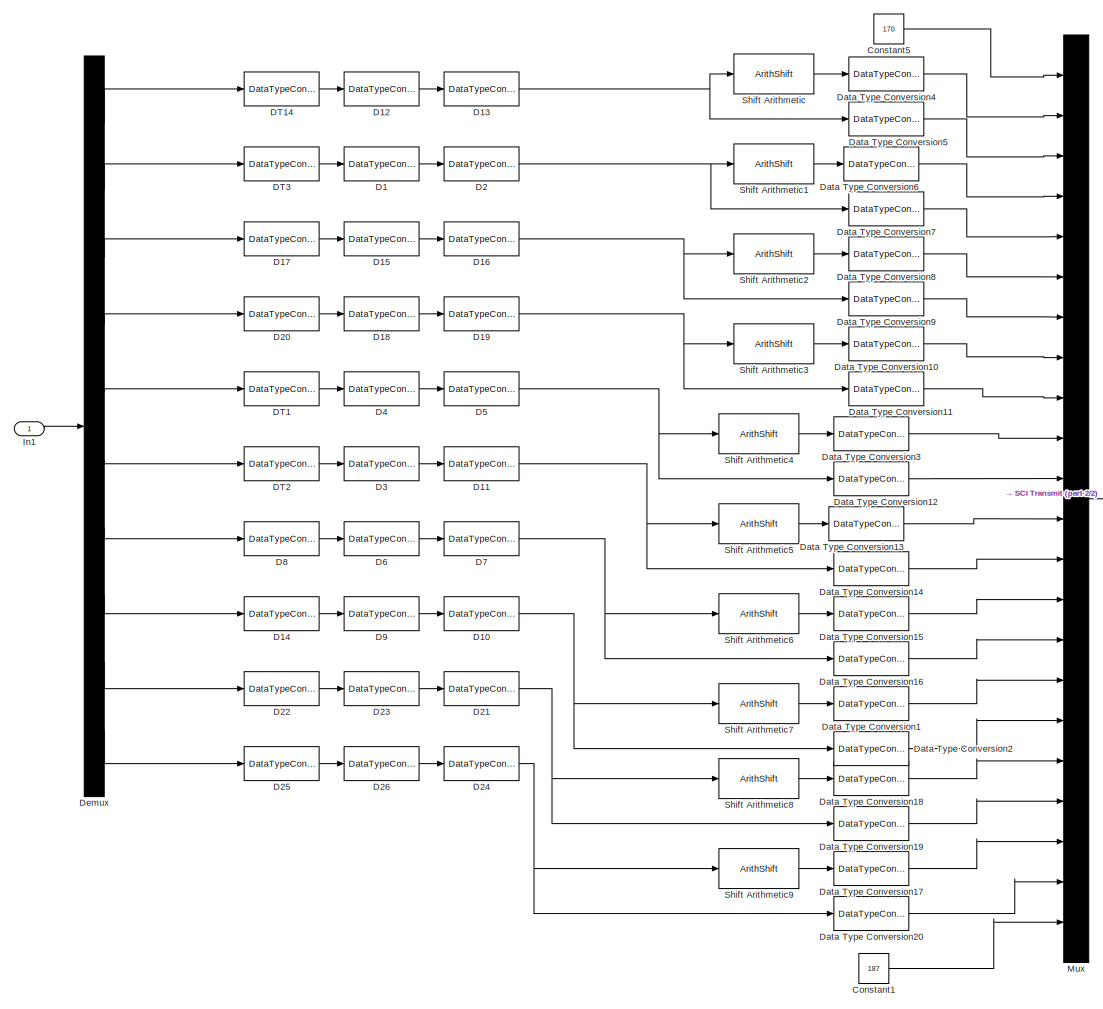
[diagram: Status Upload/VariantSubsystem/Send10 - part 1/2, most of the canvas]
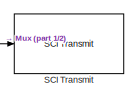
[diagram: Status Upload/VariantSubsystem/Send10 - part 2/2, middle right region]
BLOCK [SubSystem] Status Upload/VariantSubsystem/Send10
  Ports = [1]
  RTWSystemCode = Nonreusable function
  RequestExecContextInheritance = off
  TreatAsAtomicUnit = on
  VariantControl = Variant2
BLOCK [Constant] Status Upload/VariantSubsystem/Send10/Constant1
  OutDataTypeStr = uint8
  Value = 187
BLOCK [Constant] Status Upload/VariantSubsystem/Send10/Constant5
  OutDataTypeStr = uint8
  Value = 170
BLOCK [DataTypeConversion] Status Upload/VariantSubsystem/Send10/D1
  OutDataTypeStr = uint32
  RndMeth = Floor
  SaturateOnIntegerOverflow = off
BLOCK [DataTypeConversion] Status Upload/VariantSubsystem/Send10/D10
  OutDataTypeStr = uint16
  RndMeth = Floor
  SaturateOnIntegerOverflow = off
BLOCK [DataTypeConversion] Status Upload/VariantSubsystem/Send10/D11
  OutDataTypeStr = uint16
  RndMeth = Floor
  SaturateOnIntegerOverflow = off
BLOCK [DataTypeConversion] Status Upload/VariantSubsystem/Send10/D12
  OutDataTypeStr = uint32
  RndMeth = Floor
  SaturateOnIntegerOverflow = off
BLOCK [DataTypeConversion] Status Upload/VariantSubsystem/Send10/D13
  OutDataTypeStr = uint16
  RndMeth = Floor
  SaturateOnIntegerOverflow = off
BLOCK [DataTypeConversion] Status Upload/VariantSubsystem/Send10/D14
  OutDataTypeStr = int32
  RndMeth = Floor
  SaturateOnIntegerOverflow = off
BLOCK [DataTypeConversion] Status Upload/VariantSubsystem/Send10/D15
  OutDataTypeStr = uint32
  RndMeth = Floor
  SaturateOnIntegerOverflow = off
BLOCK [DataTypeConversion] Status Upload/VariantSubsystem/Send10/D16
  OutDataTypeStr = uint16
  RndMeth = Floor
  SaturateOnIntegerOverflow = off
BLOCK [DataTypeConversion] Status Upload/VariantSubsystem/Send10/D17
  OutDataTypeStr = int32
  RndMeth = Floor
  SaturateOnIntegerOverflow = off
BLOCK [DataTypeConversion] Status Upload/VariantSubsystem/Send10/D18
  OutDataTypeStr = uint32
  RndMeth = Floor
  SaturateOnIntegerOverflow = off
BLOCK [DataTypeConversion] Status Upload/VariantSubsystem/Send10/D19
  OutDataTypeStr = uint16
  RndMeth = Floor
  SaturateOnIntegerOverflow = off
BLOCK [DataTypeConversion] Status Upload/VariantSubsystem/Send10/D2
  OutDataTypeStr = uint16
  RndMeth = Floor
  SaturateOnIntegerOverflow = off
BLOCK [DataTypeConversion] Status Upload/VariantSubsystem/Send10/D20
  OutDataTypeStr = int32
  RndMeth = Floor
  SaturateOnIntegerOverflow = off
BLOCK [DataTypeConversion] Status Upload/VariantSubsystem/Send10/D21
  OutDataTypeStr = uint16
  RndMeth = Floor
  SaturateOnIntegerOverflow = off
BLOCK [DataTypeConversion] Status Upload/VariantSubsystem/Send10/D22
  OutDataTypeStr = int32
  RndMeth = Floor
  SaturateOnIntegerOverflow = off
BLOCK [DataTypeConversion] Status Upload/VariantSubsystem/Send10/D23
  OutDataTypeStr = uint32
  RndMeth = Floor
  SaturateOnIntegerOverflow = off
BLOCK [DataTypeConversion] Status Upload/VariantSubsystem/Send10/D24
  OutDataTypeStr = uint16
  RndMeth = Floor
  SaturateOnIntegerOverflow = off
BLOCK [DataTypeConversion] Status Upload/VariantSubsystem/Send10/D25
  OutDataTypeStr = int32
  RndMeth = Floor
  SaturateOnIntegerOverflow = off
BLOCK [DataTypeConversion] Status Upload/VariantSubsystem/Send10/D26
  OutDataTypeStr = uint32
  RndMeth = Floor
  SaturateOnIntegerOverflow = off
BLOCK [DataTypeConversion] Status Upload/VariantSubsystem/Send10/D3
  OutDataTypeStr = uint32
  RndMeth = Floor
  SaturateOnIntegerOverflow = off
BLOCK [DataTypeConversion] Status Upload/VariantSubsystem/Send10/D4
  OutDataTypeStr = uint32
  RndMeth = Floor
  SaturateOnIntegerOverflow = off
BLOCK [DataTypeConversion] Status Upload/VariantSubsystem/Send10/D5
  OutDataTypeStr = uint16
  RndMeth = Floor
  SaturateOnIntegerOverflow = off
BLOCK [DataTypeConversion] Status Upload/VariantSubsystem/Send10/D6
  OutDataTypeStr = uint32
  RndMeth = Floor
  SaturateOnIntegerOverflow = off
BLOCK [DataTypeConversion] Status Upload/VariantSubsystem/Send10/D7
  OutDataTypeStr = uint16
  RndMeth = Floor
  SaturateOnIntegerOverflow = off
BLOCK [DataTypeConversion] Status Upload/VariantSubsystem/Send10/D8
  OutDataTypeStr = int32
  RndMeth = Floor
  SaturateOnIntegerOverflow = off
BLOCK [DataTypeConversion] Status Upload/VariantSubsystem/Send10/D9
  OutDataTypeStr = uint32
  RndMeth = Floor
  SaturateOnIntegerOverflow = off
BLOCK [DataTypeConversion] Status Upload/VariantSubsystem/Send10/DT1
  OutDataTypeStr = int32
  RndMeth = Floor
  SaturateOnIntegerOverflow = off
BLOCK [DataTypeConversion] Status Upload/VariantSubsystem/Send10/DT14
  OutDataTypeStr = int32
  RndMeth = Floor
  SaturateOnIntegerOverflow = off
BLOCK [DataTypeConversion] Status Upload/VariantSubsystem/Send10/DT2
  OutDataTypeStr = int32
  RndMeth = Floor
  SaturateOnIntegerOverflow = off
BLOCK [DataTypeConversion] Status Upload/VariantSubsystem/Send10/DT3
  OutDataTypeStr = int32
  RndMeth = Floor
  SaturateOnIntegerOverflow = off
BLOCK [DataTypeConversion] Status Upload/VariantSubsystem/Send10/Data Type Conversion1
  OutDataTypeStr = uint8
  RndMeth = Floor
  SaturateOnIntegerOverflow = off
BLOCK [DataTypeConversion] Status Upload/VariantSubsystem/Send10/Data Type Conversion10
  OutDataTypeStr = uint8
  RndMeth = Floor
  SaturateOnIntegerOverflow = off
BLOCK [DataTypeConversion] Status Upload/VariantSubsystem/Send10/Data Type Conversion11
  OutDataTypeStr = uint8
  RndMeth = Floor
  SaturateOnIntegerOverflow = off
BLOCK [DataTypeConversion] Status Upload/VariantSubsystem/Send10/Data Type Conversion12
  OutDataTypeStr = uint8
  RndMeth = Floor
  SaturateOnIntegerOverflow = off
BLOCK [DataTypeConversion] Status Upload/VariantSubsystem/Send10/Data Type Conversion13
  OutDataTypeStr = uint8
  RndMeth = Floor
  SaturateOnIntegerOverflow = off
BLOCK [DataTypeConversion] Status Upload/VariantSubsystem/Send10/Data Type Conversion14
  OutDataTypeStr = uint8
  RndMeth = Floor
  SaturateOnIntegerOverflow = off
BLOCK [DataTypeConversion] Status Upload/VariantSubsystem/Send10/Data Type Conversion15
  OutDataTypeStr = uint8
  RndMeth = Floor
  SaturateOnIntegerOverflow = off
BLOCK [DataTypeConversion] Status Upload/VariantSubsystem/Send10/Data Type Conversion16
  OutDataTypeStr = uint8
  RndMeth = Floor
  SaturateOnIntegerOverflow = off
BLOCK [DataTypeConversion] Status Upload/VariantSubsystem/Send10/Data Type Conversion17
  OutDataTypeStr = uint8
  RndMeth = Floor
  SaturateOnIntegerOverflow = off
BLOCK [DataTypeConversion] Status Upload/VariantSubsystem/Send10/Data Type Conversion18
  OutDataTypeStr = uint8
  RndMeth = Floor
  SaturateOnIntegerOverflow = off
BLOCK [DataTypeConversion] Status Upload/VariantSubsystem/Send10/Data Type Conversion19
  OutDataTypeStr = uint8
  RndMeth = Floor
  SaturateOnIntegerOverflow = off
BLOCK [DataTypeConversion] Status Upload/VariantSubsystem/Send10/Data Type Conversion2
  OutDataTypeStr = uint8
  RndMeth = Floor
  SaturateOnIntegerOverflow = off
BLOCK [DataTypeConversion] Status Upload/VariantSubsystem/Send10/Data Type Conversion20
  OutDataTypeStr = uint8
  RndMeth = Floor
  SaturateOnIntegerOverflow = off
BLOCK [DataTypeConversion] Status Upload/VariantSubsystem/Send10/Data Type Conversion3
  OutDataTypeStr = uint8
  RndMeth = Floor
  SaturateOnIntegerOverflow = off
BLOCK [DataTypeConversion] Status Upload/VariantSubsystem/Send10/Data Type Conversion4
  OutDataTypeStr = uint8
  RndMeth = Floor
  SaturateOnIntegerOverflow = off
BLOCK [DataTypeConversion] Status Upload/VariantSubsystem/Send10/Data Type Conversion5
  OutDataTypeStr = uint8
  RndMeth = Floor
  SaturateOnIntegerOverflow = off
BLOCK [DataTypeConversion] Status Upload/VariantSubsystem/Send10/Data Type Conversion6
  OutDataTypeStr = uint8
  RndMeth = Floor
  SaturateOnIntegerOverflow = off
BLOCK [DataTypeConversion] Status Upload/VariantSubsystem/Send10/Data Type Conversion7
  OutDataTypeStr = uint8
  RndMeth = Floor
  SaturateOnIntegerOverflow = off
BLOCK [DataTypeConversion] Status Upload/VariantSubsystem/Send10/Data Type Conversion8
  OutDataTypeStr = uint8
  RndMeth = Floor
  SaturateOnIntegerOverflow = off
BLOCK [DataTypeConversion] Status Upload/VariantSubsystem/Send10/Data Type Conversion9
  OutDataTypeStr = uint8
  RndMeth = Floor
  SaturateOnIntegerOverflow = off
BLOCK [Demux] Status Upload/VariantSubsystem/Send10/Demux
  Outputs = 10
  Ports = [1, 10]
BLOCK [Inport] Status Upload/VariantSubsystem/Send10/In1
BLOCK [Mux] Status Upload/VariantSubsystem/Send10/Mux
  DisplayOption = bar
  Inputs = 22
  Ports = [22, 1]
BLOCK [Reference] Status Upload/VariantSubsystem/Send10/SCI Transmit  REF=c280xlib/SCI Transmit
  Ports = [1]
  SourceBlock = c280xlib/SCI Transmit
  SourceProductBaseCode = TIC2000
  SourceType = C28x SCI Transmit
BLOCK [ArithShift] Status Upload/VariantSubsystem/Send10/Shift Arithmetic
  BitShiftNumber = 8
  InputPortMap = u0
  Ports = [1, 1]
BLOCK [ArithShift] Status Upload/VariantSubsystem/Send10/Shift Arithmetic1
  BitShiftNumber = 8
  InputPortMap = u0
  Ports = [1, 1]
BLOCK [ArithShift] Status Upload/VariantSubsystem/Send10/Shift Arithmetic2
  BitShiftNumber = 8
  InputPortMap = u0
  Ports = [1, 1]
BLOCK [ArithShift] Status Upload/VariantSubsystem/Send10/Shift Arithmetic3
  BitShiftNumber = 8
  InputPortMap = u0
  Ports = [1, 1]
BLOCK [ArithShift] Status Upload/VariantSubsystem/Send10/Shift Arithmetic4
  BitShiftNumber = 8
  InputPortMap = u0
  Ports = [1, 1]
BLOCK [ArithShift] Status Upload/VariantSubsystem/Send10/Shift Arithmetic5
  BitShiftNumber = 8
  InputPortMap = u0
  Ports = [1, 1]
BLOCK [ArithShift] Status Upload/VariantSubsystem/Send10/Shift Arithmetic6
  BitShiftNumber = 8
  InputPortMap = u0
  Ports = [1, 1]
BLOCK [ArithShift] Status Upload/VariantSubsystem/Send10/Shift Arithmetic7
  BitShiftNumber = 8
  InputPortMap = u0
  Ports = [1, 1]
BLOCK [ArithShift] Status Upload/VariantSubsystem/Send10/Shift Arithmetic8
  BitShiftNumber = 8
  InputPortMap = u0
  Ports = [1, 1]
BLOCK [ArithShift] Status Upload/VariantSubsystem/Send10/Shift Arithmetic9
  BitShiftNumber = 8
  InputPortMap = u0
  Ports = [1, 1]
BLOCK [SubSystem] Status Upload/VariantSubsystem/Srnd4
  Ports = [1]
  RTWSystemCode = Nonreusable function
  RequestExecContextInheritance = off
  TreatAsAtomicUnit = on
  VariantControl = Variant1
BLOCK [Constant] Status Upload/VariantSubsystem/Srnd4/Constant1
  OutDataTypeStr = uint8
  Value = 187
BLOCK [Constant] Status Upload/VariantSubsystem/Srnd4/Constant5
  OutDataTypeStr = uint8
  Value = 170
BLOCK [DataTypeConversion] Status Upload/VariantSubsystem/Srnd4/D1
  OutDataTypeStr = uint32
  RndMeth = Floor
  SaturateOnIntegerOverflow = off
BLOCK [DataTypeConversion] Status Upload/VariantSubsystem/Srnd4/D12
  OutDataTypeStr = uint32
  RndMeth = Floor
  SaturateOnIntegerOverflow = off
BLOCK [DataTypeConversion] Status Upload/VariantSubsystem/Srnd4/D15
  OutDataTypeStr = uint32
  RndMeth = Floor
  SaturateOnIntegerOverflow = off
BLOCK [DataTypeConversion] Status Upload/VariantSubsystem/Srnd4/D17
  OutDataTypeStr = int32
  RndMeth = Floor
  SaturateOnIntegerOverflow = off
BLOCK [DataTypeConversion] Status Upload/VariantSubsystem/Srnd4/D18
  OutDataTypeStr = uint32
  RndMeth = Floor
  SaturateOnIntegerOverflow = off
BLOCK [DataTypeConversion] Status Upload/VariantSubsystem/Srnd4/D20
  OutDataTypeStr = int32
  RndMeth = Floor
  SaturateOnIntegerOverflow = off
BLOCK [DataTypeConversion] Status Upload/VariantSubsystem/Srnd4/DT14
  OutDataTypeStr = int32
  RndMeth = Floor
  SaturateOnIntegerOverflow = off
BLOCK [DataTypeConversion] Status Upload/VariantSubsystem/Srnd4/DT3
  OutDataTypeStr = int32
  RndMeth = Floor
  SaturateOnIntegerOverflow = off
BLOCK [DataTypeConversion] Status Upload/VariantSubsystem/Srnd4/Data Type Conversion10
  OutDataTypeStr = uint8
  RndMeth = Floor
  SaturateOnIntegerOverflow = off
BLOCK [DataTypeConversion] Status Upload/VariantSubsystem/Srnd4/Data Type Conversion11
  OutDataTypeStr = uint8
  RndMeth = Floor
  SaturateOnIntegerOverflow = off
BLOCK [DataTypeConversion] Status Upload/VariantSubsystem/Srnd4/Data Type Conversion4
  OutDataTypeStr = uint8
  RndMeth = Floor
  SaturateOnIntegerOverflow = off
BLOCK [DataTypeConversion] Status Upload/VariantSubsystem/Srnd4/Data Type Conversion5
  OutDataTypeStr = uint8
  RndMeth = Floor
  SaturateOnIntegerOverflow = off
BLOCK [DataTypeConversion] Status Upload/VariantSubsystem/Srnd4/Data Type Conversion6
  OutDataTypeStr = uint8
  RndMeth = Floor
  SaturateOnIntegerOverflow = off
BLOCK [DataTypeConversion] Status Upload/VariantSubsystem/Srnd4/Data Type Conversion7
  OutDataTypeStr = uint8
  RndMeth = Floor
  SaturateOnIntegerOverflow = off
BLOCK [DataTypeConversion] Status Upload/VariantSubsystem/Srnd4/Data Type Conversion8
  OutDataTypeStr = uint8
  RndMeth = Floor
  SaturateOnIntegerOverflow = off
BLOCK [DataTypeConversion] Status Upload/VariantSubsystem/Srnd4/Data Type Conversion9
  OutDataTypeStr = uint8
  RndMeth = Floor
  SaturateOnIntegerOverflow = off
BLOCK [Demux] Status Upload/VariantSubsystem/Srnd4/Demux
  Outputs = 10
  Ports = [1, 10]
BLOCK [Inport] Status Upload/VariantSubsystem/Srnd4/In1
BLOCK [Mux] Status Upload/VariantSubsystem/Srnd4/Mux
  DisplayOption = bar
  Inputs = 10
  Ports = [10, 1]
BLOCK [Reference] Status Upload/VariantSubsystem/Srnd4/SCI Transmit  REF=c280xlib/SCI Transmit
  Ports = [1]
  SourceBlock = c280xlib/SCI Transmit
  SourceProductBaseCode = TIC2000
  SourceType = C28x SCI Transmit
BLOCK [ArithShift] Status Upload/VariantSubsystem/Srnd4/Shift Arithmetic
  BitShiftNumber = 8
  InputPortMap = u0
  Ports = [1, 1]
BLOCK [ArithShift] Status Upload/VariantSubsystem/Srnd4/Shift Arithmetic1
  BitShiftNumber = 8
  InputPortMap = u0
  Ports = [1, 1]
BLOCK [ArithShift] Status Upload/VariantSubsystem/Srnd4/Shift Arithmetic2
  BitShiftNumber = 8
  InputPortMap = u0
  Ports = [1, 1]
BLOCK [ArithShift] Status Upload/VariantSubsystem/Srnd4/Shift Arithmetic3
  BitShiftNumber = 8
  InputPortMap = u0
  Ports = [1, 1]
BLOCK [Terminator] Status Upload/VariantSubsystem/Srnd4/Terminator
BLOCK [Terminator] Status Upload/VariantSubsystem/Srnd4/Terminator1
BLOCK [Terminator] Status Upload/VariantSubsystem/Srnd4/Terminator2
BLOCK [Terminator] Status Upload/VariantSubsystem/Srnd4/Terminator3
BLOCK [Terminator] Status Upload/VariantSubsystem/Srnd4/Terminator4
BLOCK [Terminator] Status Upload/VariantSubsystem/Srnd4/Terminator5
BLOCK [SubSystem] System Config
  Ports = []
  RequestExecContextInheritance = off
  TreatAsAtomicUnit = on
BLOCK [SubSystem] System Config/CAN_Config_C
  Commented = on
  Ports = []
  RequestExecContextInheritance = off
BLOCK [SubSystem] System Config/CAN_Config_C/Model Header
  CopyFcn = cccopyfcn(gcb)
  OpenFcn = ccopenfcn('Model Header')
  Ports = []
  RequestExecContextInheritance = off
BLOCK [SubSystem] System Config/CAN_Config_C/Model Source1
  CopyFcn = cccopyfcn(gcb)
  OpenFcn = ccopenfcn('Model Source')
  Ports = []
  RequestExecContextInheritance = off
BLOCK [SubSystem] System Config/CAN_Config_C/System Initialize1
  CopyFcn = cccopyfcn(gcb)
  OpenFcn = ccopenfcn('System Initialize Function')
  Ports = []
  RequestExecContextInheritance = off
BLOCK [SubSystem] System Config/CAN_Config_S
  Ports = []
  RequestExecContextInheritance = off
BLOCK [Constant] System Config/CAN_Config_S/Constant
  Value = false
BLOCK [SubSystem] System Config/CAN_Config_S/Model Header
  Commented = on
  CopyFcn = cccopyfcn(gcb)
  OpenFcn = ccopenfcn('Model Header')
  Ports = []
  RequestExecContextInheritance = off
BLOCK [SubSystem] System Config/CAN_Config_S/Model Source1
  CopyFcn = cccopyfcn(gcb)
  OpenFcn = ccopenfcn('Model Source')
  Ports = []
  RequestExecContextInheritance = off
BLOCK [SubSystem] System Config/CAN_Config_S/Subsystem
  Ports = [0, 0, 1]
  RequestExecContextInheritance = off
BLOCK [EnablePort] System Config/CAN_Config_S/Subsystem/Enable
  Ports = []
BLOCK [Reference] System Config/CAN_Config_S/Subsystem/eCANAM0  REF=c280xlib/eCAN Transmit
  Ports = [1]
  SourceBlock = c280xlib/eCAN Transmit
  SourceProductBaseCode = TIC2000
  SourceType = C28x eCAN Transmit
BLOCK [Reference] System Config/CAN_Config_S/Subsystem/eCANAM1  REF=c280xlib/eCAN Transmit
  Ports = [1]
  SourceBlock = c280xlib/eCAN Transmit
  SourceProductBaseCode = TIC2000
  SourceType = C28x eCAN Transmit
BLOCK [Reference] System Config/CAN_Config_S/Subsystem/eCANAM2  REF=c280xlib/eCAN Transmit
  Commented = on
  Ports = [1]
  SourceBlock = c280xlib/eCAN Transmit
  SourceProductBaseCode = TIC2000
  SourceType = C28x eCAN Transmit
BLOCK [Reference] System Config/CAN_Config_S/Subsystem/eCANAM3  REF=c280xlib/eCAN Transmit
  Commented = on
  Ports = [1]
  SourceBlock = c280xlib/eCAN Transmit
  SourceProductBaseCode = TIC2000
  SourceType = C28x eCAN Transmit
BLOCK [Reference] System Config/CAN_Config_S/Subsystem/eCANAM4  REF=c280xlib/eCAN Receive
  Ports = [0, 2]
  SourceBlock = c280xlib/eCAN Receive
  SourceProductBaseCode = TIC2000
  SourceType = C28x eCAN Receive
BLOCK [Reference] System Config/CAN_Config_S/Subsystem/eCANAM5  REF=c280xlib/eCAN Receive
  Commented = on
  Ports = [0, 2]
  SourceBlock = c280xlib/eCAN Receive
  SourceProductBaseCode = TIC2000
  SourceType = C28x eCAN Receive
BLOCK [Reference] System Config/CAN_Config_S/Subsystem/eCANAM6  REF=c280xlib/eCAN Receive
  Commented = on
  Ports = [0, 2]
  SourceBlock = c280xlib/eCAN Receive
  SourceProductBaseCode = TIC2000
  SourceType = C28x eCAN Receive
BLOCK [Reference] System Config/CAN_Config_S/Subsystem/eCANBM0  REF=c280xlib/eCAN Transmit
  Commented = on
  Ports = [1]
  SourceBlock = c280xlib/eCAN Transmit
  SourceProductBaseCode = TIC2000
  SourceType = C28x eCAN Transmit
BLOCK [Reference] System Config/CAN_Config_S/Subsystem/eCANBM1  REF=c280xlib/eCAN Transmit
  Commented = on
  Ports = [1]
  SourceBlock = c280xlib/eCAN Transmit
  SourceProductBaseCode = TIC2000
  SourceType = C28x eCAN Transmit
BLOCK [Reference] System Config/CAN_Config_S/Subsystem/eCANBM2  REF=c280xlib/eCAN Transmit
  Commented = on
  Ports = [1]
  SourceBlock = c280xlib/eCAN Transmit
  SourceProductBaseCode = TIC2000
  SourceType = C28x eCAN Transmit
BLOCK [Reference] System Config/CAN_Config_S/Subsystem/eCANBM3  REF=c280xlib/eCAN Transmit
  Commented = on
  Ports = [1]
  SourceBlock = c280xlib/eCAN Transmit
  SourceProductBaseCode = TIC2000
  SourceType = C28x eCAN Transmit
BLOCK [Reference] System Config/CAN_Config_S/Subsystem/eCANBM4  REF=c280xlib/eCAN Receive
  Commented = on
  Ports = [0, 2]
  SourceBlock = c280xlib/eCAN Receive
  SourceProductBaseCode = TIC2000
  SourceType = C28x eCAN Receive
BLOCK [Reference] System Config/CAN_Config_S/Subsystem/eCANBM5  REF=c280xlib/eCAN Receive
  Commented = on
  Ports = [0, 2]
  SourceBlock = c280xlib/eCAN Receive
  SourceProductBaseCode = TIC2000
  SourceType = C28x eCAN Receive
BLOCK [Reference] System Config/CAN_Config_S/Subsystem/eCANBM6  REF=c280xlib/eCAN Receive
  Commented = on
  Ports = [0, 2]
  SourceBlock = c280xlib/eCAN Receive
  SourceProductBaseCode = TIC2000
  SourceType = C28x eCAN Receive
BLOCK [SubSystem] System Config/CAN_Config_S/System Initialize1
  Commented = on
  CopyFcn = cccopyfcn(gcb)
  OpenFcn = ccopenfcn('System Initialize Function')
  Ports = []
  RequestExecContextInheritance = off
BLOCK [SubSystem] System Config/CAN_Config_S/eCANA Transmit1
  Commented = on
  Ports = [1]
  RequestExecContextInheritance = off
  TreatAsAtomicUnit = on
BLOCK [Constant] System Config/CAN_Config_S/eCANA Transmit1/Constant1
  OutDataTypeStr = uint8
  SampleTime = -1
  Value = MailBox
BLOCK [Inport] System Config/CAN_Config_S/eCANA Transmit1/Data
BLOCK [Reference] System Config/CAN_Config_S/eCANA Transmit1/Memory Copy  REF=idelinklib_common/Memory Copy
  Ports = [1]
  SourceBlock = idelinklib_common/Memory Copy
  SourceProductBaseCode = ME
  SourceType = Memory Copy
BLOCK [Reference] System Config/CAN_Config_S/eCANA Transmit1/Memory Copy1  REF=idelinklib_common/Memory Copy
  Ports = [1]
  SourceBlock = idelinklib_common/Memory Copy
  SourceProductBaseCode = ME
  SourceType = Memory Copy
BLOCK [SubSystem] System Config/CAN_Config_S/eCANA Transmit1/System Outputs
  CopyFcn = cccopyfcn(gcb)
  OpenFcn = ccopenfcn('System Outputs Function')
  Ports = []
  RequestExecContextInheritance = off
BLOCK [SubSystem] System Config/CAN_Config_S/eCANA Transmit2
  Commented = on
  Ports = [1]
  RequestExecContextInheritance = off
  TreatAsAtomicUnit = on
BLOCK [Constant] System Config/CAN_Config_S/eCANA Transmit2/Constant1
  OutDataTypeStr = uint8
  SampleTime = -1
  Value = MailBox
BLOCK [Inport] System Config/CAN_Config_S/eCANA Transmit2/Data
BLOCK [Reference] System Config/CAN_Config_S/eCANA Transmit2/Memory Copy  REF=idelinklib_common/Memory Copy
  Ports = [1]
  SourceBlock = idelinklib_common/Memory Copy
  SourceProductBaseCode = ME
  SourceType = Memory Copy
BLOCK [Reference] System Config/CAN_Config_S/eCANA Transmit2/Memory Copy1  REF=idelinklib_common/Memory Copy
  Ports = [1]
  SourceBlock = idelinklib_common/Memory Copy
  SourceProductBaseCode = ME
  SourceType = Memory Copy
BLOCK [SubSystem] System Config/CAN_Config_S/eCANA Transmit2/System Outputs
  CopyFcn = cccopyfcn(gcb)
  OpenFcn = ccopenfcn('System Outputs Function')
  Ports = []
  RequestExecContextInheritance = off
BLOCK [SubSystem] System Config/CAN_Config_S/eCANA Transmit3
  Commented = on
  Ports = [1]
  RequestExecContextInheritance = off
  TreatAsAtomicUnit = on
BLOCK [Constant] System Config/CAN_Config_S/eCANA Transmit3/Constant1
  OutDataTypeStr = uint8
  SampleTime = -1
  Value = MailBox
BLOCK [Inport] System Config/CAN_Config_S/eCANA Transmit3/Data
BLOCK [Reference] System Config/CAN_Config_S/eCANA Transmit3/Memory Copy  REF=idelinklib_common/Memory Copy
  Ports = [1]
  SourceBlock = idelinklib_common/Memory Copy
  SourceProductBaseCode = ME
  SourceType = Memory Copy
BLOCK [Reference] System Config/CAN_Config_S/eCANA Transmit3/Memory Copy1  REF=idelinklib_common/Memory Copy
  Ports = [1]
  SourceBlock = idelinklib_common/Memory Copy
  SourceProductBaseCode = ME
  SourceType = Memory Copy
BLOCK [SubSystem] System Config/CAN_Config_S/eCANA Transmit3/System Outputs
  CopyFcn = cccopyfcn(gcb)
  OpenFcn = ccopenfcn('System Outputs Function')
  Ports = []
  RequestExecContextInheritance = off
BLOCK [SubSystem] System Config/CAN_Config_S/eCANB Transmit1
  Commented = on
  Ports = [1]
  RequestExecContextInheritance = off
  TreatAsAtomicUnit = on
BLOCK [Constant] System Config/CAN_Config_S/eCANB Transmit1/Constant1
  OutDataTypeStr = uint8
  SampleTime = -1
  Value = MailBox
BLOCK [Inport] System Config/CAN_Config_S/eCANB Transmit1/Data
BLOCK [Reference] System Config/CAN_Config_S/eCANB Transmit1/Memory Copy  REF=idelinklib_common/Memory Copy
  Ports = [1]
  SourceBlock = idelinklib_common/Memory Copy
  SourceProductBaseCode = ME
  SourceType = Memory Copy
BLOCK [Reference] System Config/CAN_Config_S/eCANB Transmit1/Memory Copy1  REF=idelinklib_common/Memory Copy
  Ports = [1]
  SourceBlock = idelinklib_common/Memory Copy
  SourceProductBaseCode = ME
  SourceType = Memory Copy
BLOCK [SubSystem] System Config/CAN_Config_S/eCANB Transmit1/System Outputs
  CopyFcn = cccopyfcn(gcb)
  OpenFcn = ccopenfcn('System Outputs Function')
  Ports = []
  RequestExecContextInheritance = off
BLOCK [SubSystem] System Config/CAN_Config_S/eCANB Transmit2
  Commented = on
  Ports = [1]
  RequestExecContextInheritance = off
  TreatAsAtomicUnit = on
BLOCK [Constant] System Config/CAN_Config_S/eCANB Transmit2/Constant1
  OutDataTypeStr = uint8
  SampleTime = -1
  Value = MailBox
BLOCK [Inport] System Config/CAN_Config_S/eCANB Transmit2/Data
BLOCK [Reference] System Config/CAN_Config_S/eCANB Transmit2/Memory Copy  REF=idelinklib_common/Memory Copy
  Ports = [1]
  SourceBlock = idelinklib_common/Memory Copy
  SourceProductBaseCode = ME
  SourceType = Memory Copy
BLOCK [Reference] System Config/CAN_Config_S/eCANB Transmit2/Memory Copy1  REF=idelinklib_common/Memory Copy
  Ports = [1]
  SourceBlock = idelinklib_common/Memory Copy
  SourceProductBaseCode = ME
  SourceType = Memory Copy
BLOCK [SubSystem] System Config/CAN_Config_S/eCANB Transmit2/System Outputs
  CopyFcn = cccopyfcn(gcb)
  OpenFcn = ccopenfcn('System Outputs Function')
  Ports = []
  RequestExecContextInheritance = off
BLOCK [SubSystem] System Config/CAN_Config_S/eCANB Transmit3
  Commented = on
  Ports = [1]
  RequestExecContextInheritance = off
  TreatAsAtomicUnit = on
BLOCK [Constant] System Config/CAN_Config_S/eCANB Transmit3/Constant1
  OutDataTypeStr = uint8
  SampleTime = -1
  Value = MailBox
BLOCK [Inport] System Config/CAN_Config_S/eCANB Transmit3/Data
BLOCK [Reference] System Config/CAN_Config_S/eCANB Transmit3/Memory Copy  REF=idelinklib_common/Memory Copy
  Ports = [1]
  SourceBlock = idelinklib_common/Memory Copy
  SourceProductBaseCode = ME
  SourceType = Memory Copy
BLOCK [Reference] System Config/CAN_Config_S/eCANB Transmit3/Memory Copy1  REF=idelinklib_common/Memory Copy
  Ports = [1]
  SourceBlock = idelinklib_common/Memory Copy
  SourceProductBaseCode = ME
  SourceType = Memory Copy
BLOCK [SubSystem] System Config/CAN_Config_S/eCANB Transmit3/System Outputs
  CopyFcn = cccopyfcn(gcb)
  OpenFcn = ccopenfcn('System Outputs Function')
  Ports = []
  RequestExecContextInheritance = off
BLOCK [SubSystem] System Config/HC595_Config
  Commented = on
  Ports = []
  RequestExecContextInheritance = off
BLOCK [SubSystem] System Config/HC595_Config/Model Header
  CopyFcn = cccopyfcn(gcb)
  OpenFcn = ccopenfcn('Model Header')
  Ports = []
  RequestExecContextInheritance = off
BLOCK [SubSystem] System Config/HC595_Config/Model Source
  CopyFcn = cccopyfcn(gcb)
  OpenFcn = ccopenfcn('Model Source')
  Ports = []
  RequestExecContextInheritance = off
BLOCK [SubSystem] System Config/HC595_Config/System Initialize1
  CopyFcn = cccopyfcn(gcb)
  OpenFcn = ccopenfcn('System Initialize Function')
  Ports = []
  RequestExecContextInheritance = off
BLOCK [SubSystem] System Config/LCD_Config
  Ports = []
  RequestExecContextInheritance = off
BLOCK [SubSystem] System Config/LCD_Config/Model Header
  Commented = on
  CopyFcn = cccopyfcn(gcb)
  OpenFcn = ccopenfcn('Model Header')
  Ports = []
  RequestExecContextInheritance = off
BLOCK [SubSystem] System Config/LCD_Config/Model Source
  CopyFcn = cccopyfcn(gcb)
  OpenFcn = ccopenfcn('Model Source')
  Ports = []
  RequestExecContextInheritance = off
BLOCK [SubSystem] System Config/LCD_Config/System Initialize
  CopyFcn = cccopyfcn(gcb)
  OpenFcn = ccopenfcn('System Initialize Function')
  Ports = []
  RequestExecContextInheritance = off
BLOCK [SubSystem] System Config/SCI_Config
  Ports = []
  RequestExecContextInheritance = off
BLOCK [SubSystem] System Config/SCI_Config/Model Header
  CopyFcn = cccopyfcn(gcb)
  OpenFcn = ccopenfcn('Model Header')
  Ports = []
  RequestExecContextInheritance = off
BLOCK [SubSystem] System Config/SCI_Config/Model Source
  CopyFcn = cccopyfcn(gcb)
  OpenFcn = ccopenfcn('Model Source')
  Ports = []
  RequestExecContextInheritance = off
ANNOTATION (root): 直线电机一级倒立摆系统
ANNOTATION (root): 实验十五：参数辨识数据采集实验-加速度
ANNOTATION Pendulum: 采集摆杆角度信息
ANNOTATION Pendulum: 采集滑块位置信息
ANNOTATION Status Display: 如果状态发生切换，才进行显示
ANNOTATION Status Upload/VariantSubsystem: 1) Add Subsystem or Model blocks as valid variant choices. 2) You cannot connect blocks at this level. At simulation, connectivity is automatically determined, based on the active variant and port name matching.
ANNOTATION System Config/CAN_Config_S: CAN 邮箱号说明 A B 0：广播命令 0：广播命令1：ID1发送 1：ID4发送 2：ID2发送 2：ID5发送 3：ID3发送 3：ID6发送 4：ID1接收 4：ID4接收 5：ID2接收 5：ID5接收 6：ID3接收 6：ID6接收
LINE Command Download/SCIA_Interrupt:1 -> Command Download/SCIA_RX_Process:trigger
LINE Command Download/SCIA_RX_Process/Process/Compare To Constant:1 -> Command Download/SCIA_RX_Process/Process/Enabled Subsystem:enable
LINE Command Download/SCIA_RX_Process/Process/Constant:1 -> Command Download/SCIA_RX_Process/Process/Compare To Constant:1
LINE Command Download/SCIA_RX_Process/Process/Enabled Subsystem/Data Store Read1:1 -> Command Download/SCIA_RX_Process/Process/Enabled Subsystem/PositionIntToFloat:1
LINE Command Download/SCIA_RX_Process/Process/Enabled Subsystem/Data Store Read2:1 -> Command Download/SCIA_RX_Process/Process/Enabled Subsystem/Data Store Write:1
LINE Command Download/SCIA_RX_Process/Process/Enabled Subsystem/Data Type Conversion:1 -> Command Download/SCIA_RX_Process/Process/Enabled Subsystem/Data Store Write1:1
LINE Command Download/SCIA_RX_Process/Process/Enabled Subsystem/PositionIntToFloat/Data:1 -> Command Download/SCIA_RX_Process/Process/Enabled Subsystem/PositionIntToFloat/Demux:1
LINE Command Download/SCIA_RX_Process/Process/Enabled Subsystem/PositionIntToFloat/Demux:1 -> Command Download/SCIA_RX_Process/Process/Enabled Subsystem/PositionIntToFloat/Mux:1
LINE Command Download/SCIA_RX_Process/Process/Enabled Subsystem/PositionIntToFloat/Demux:10 -> Command Download/SCIA_RX_Process/Process/Enabled Subsystem/PositionIntToFloat/Mux4:2
LINE Command Download/SCIA_RX_Process/Process/Enabled Subsystem/PositionIntToFloat/Demux:11 -> Command Download/SCIA_RX_Process/Process/Enabled Subsystem/PositionIntToFloat/Mux5:1
LINE Command Download/SCIA_RX_Process/Process/Enabled Subsystem/PositionIntToFloat/Demux:12 -> Command Download/SCIA_RX_Process/Process/Enabled Subsystem/PositionIntToFloat/Mux5:2
LINE Command Download/SCIA_RX_Process/Process/Enabled Subsystem/PositionIntToFloat/Demux:13 -> Command Download/SCIA_RX_Process/Process/Enabled Subsystem/PositionIntToFloat/Mux7:1
LINE Command Download/SCIA_RX_Process/Process/Enabled Subsystem/PositionIntToFloat/Demux:14 -> Command Download/SCIA_RX_Process/Process/Enabled Subsystem/PositionIntToFloat/Mux7:2
LINE Command Download/SCIA_RX_Process/Process/Enabled Subsystem/PositionIntToFloat/Demux:15 -> Command Download/SCIA_RX_Process/Process/Enabled Subsystem/PositionIntToFloat/Mux8:1
LINE Command Download/SCIA_RX_Process/Process/Enabled Subsystem/PositionIntToFloat/Demux:16 -> Command Download/SCIA_RX_Process/Process/Enabled Subsystem/PositionIntToFloat/Mux8:2
LINE Command Download/SCIA_RX_Process/Process/Enabled Subsystem/PositionIntToFloat/Demux:2 -> Command Download/SCIA_RX_Process/Process/Enabled Subsystem/PositionIntToFloat/Mux:2
LINE Command Download/SCIA_RX_Process/Process/Enabled Subsystem/PositionIntToFloat/Demux:3 -> Command Download/SCIA_RX_Process/Process/Enabled Subsystem/PositionIntToFloat/Mux1:1
LINE Command Download/SCIA_RX_Process/Process/Enabled Subsystem/PositionIntToFloat/Demux:4 -> Command Download/SCIA_RX_Process/Process/Enabled Subsystem/PositionIntToFloat/Mux1:2
LINE Command Download/SCIA_RX_Process/Process/Enabled Subsystem/PositionIntToFloat/Demux:5 -> Command Download/SCIA_RX_Process/Process/Enabled Subsystem/PositionIntToFloat/Mux2:1
LINE Command Download/SCIA_RX_Process/Process/Enabled Subsystem/PositionIntToFloat/Demux:6 -> Command Download/SCIA_RX_Process/Process/Enabled Subsystem/PositionIntToFloat/Mux2:2
LINE Command Download/SCIA_RX_Process/Process/Enabled Subsystem/PositionIntToFloat/Demux:7 -> Command Download/SCIA_RX_Process/Process/Enabled Subsystem/PositionIntToFloat/Mux3:1
LINE Command Download/SCIA_RX_Process/Process/Enabled Subsystem/PositionIntToFloat/Demux:8 -> Command Download/SCIA_RX_Process/Process/Enabled Subsystem/PositionIntToFloat/Mux3:2
LINE Command Download/SCIA_RX_Process/Process/Enabled Subsystem/PositionIntToFloat/Demux:9 -> Command Download/SCIA_RX_Process/Process/Enabled Subsystem/PositionIntToFloat/Mux4:1
LINE Command Download/SCIA_RX_Process/Process/Enabled Subsystem/PositionIntToFloat/MATLAB Function1:1 -> Command Download/SCIA_RX_Process/Process/Enabled Subsystem/PositionIntToFloat/Mux6:1
LINE Command Download/SCIA_RX_Process/Process/Enabled Subsystem/PositionIntToFloat/MATLAB Function2:1 -> Command Download/SCIA_RX_Process/Process/Enabled Subsystem/PositionIntToFloat/Mux6:2
LINE Command Download/SCIA_RX_Process/Process/Enabled Subsystem/PositionIntToFloat/MATLAB Function3:1 -> Command Download/SCIA_RX_Process/Process/Enabled Subsystem/PositionIntToFloat/Mux6:3
LINE Command Download/SCIA_RX_Process/Process/Enabled Subsystem/PositionIntToFloat/MATLAB Function4:1 -> Command Download/SCIA_RX_Process/Process/Enabled Subsystem/PositionIntToFloat/Mux6:4
LINE Command Download/SCIA_RX_Process/Process/Enabled Subsystem/PositionIntToFloat/MATLAB Function5:1 -> Command Download/SCIA_RX_Process/Process/Enabled Subsystem/PositionIntToFloat/Mux6:5
LINE Command Download/SCIA_RX_Process/Process/Enabled Subsystem/PositionIntToFloat/MATLAB Function6:1 -> Command Download/SCIA_RX_Process/Process/Enabled Subsystem/PositionIntToFloat/Mux6:6
LINE Command Download/SCIA_RX_Process/Process/Enabled Subsystem/PositionIntToFloat/MATLAB Function7:1 -> Command Download/SCIA_RX_Process/Process/Enabled Subsystem/PositionIntToFloat/Mux6:7
LINE Command Download/SCIA_RX_Process/Process/Enabled Subsystem/PositionIntToFloat/MATLAB Function8:1 -> Command Download/SCIA_RX_Process/Process/Enabled Subsystem/PositionIntToFloat/Mux6:8
LINE Command Download/SCIA_RX_Process/Process/Enabled Subsystem/PositionIntToFloat/Mux1:1 -> Command Download/SCIA_RX_Process/Process/Enabled Subsystem/PositionIntToFloat/MATLAB Function2:1
LINE Command Download/SCIA_RX_Process/Process/Enabled Subsystem/PositionIntToFloat/Mux2:1 -> Command Download/SCIA_RX_Process/Process/Enabled Subsystem/PositionIntToFloat/MATLAB Function3:1
LINE Command Download/SCIA_RX_Process/Process/Enabled Subsystem/PositionIntToFloat/Mux3:1 -> Command Download/SCIA_RX_Process/Process/Enabled Subsystem/PositionIntToFloat/MATLAB Function4:1
LINE Command Download/SCIA_RX_Process/Process/Enabled Subsystem/PositionIntToFloat/Mux4:1 -> Command Download/SCIA_RX_Process/Process/Enabled Subsystem/PositionIntToFloat/MATLAB Function5:1
LINE Command Download/SCIA_RX_Process/Process/Enabled Subsystem/PositionIntToFloat/Mux5:1 -> Command Download/SCIA_RX_Process/Process/Enabled Subsystem/PositionIntToFloat/MATLAB Function6:1
LINE Command Download/SCIA_RX_Process/Process/Enabled Subsystem/PositionIntToFloat/Mux6:1 -> Command Download/SCIA_RX_Process/Process/Enabled Subsystem/PositionIntToFloat/Out1:1
LINE Command Download/SCIA_RX_Process/Process/Enabled Subsystem/PositionIntToFloat/Mux7:1 -> Command Download/SCIA_RX_Process/Process/Enabled Subsystem/PositionIntToFloat/MATLAB Function7:1
LINE Command Download/SCIA_RX_Process/Process/Enabled Subsystem/PositionIntToFloat/Mux8:1 -> Command Download/SCIA_RX_Process/Process/Enabled Subsystem/PositionIntToFloat/MATLAB Function8:1
LINE Command Download/SCIA_RX_Process/Process/Enabled Subsystem/PositionIntToFloat/Mux:1 -> Command Download/SCIA_RX_Process/Process/Enabled Subsystem/PositionIntToFloat/MATLAB Function1:1
LINE Command Download/SCIA_RX_Process/Process/Enabled Subsystem/PositionIntToFloat:1 -> Command Download/SCIA_RX_Process/Process/Enabled Subsystem/Data Type Conversion:1
LINE MotionControl:1 -> Data Store Write:1
LINE Pendulum/Subsystem/Add2:1 -> Pendulum/Subsystem/Gain:1
LINE Pendulum/Subsystem/CanReceive/Abs:1 -> Pendulum/Subsystem/CanReceive/Compare To Constant1:1
LINE Pendulum/Subsystem/CanReceive/Compare To Constant1:1 -> Pendulum/Subsystem/CanReceive/Subsystem1:enable
LINE Pendulum/Subsystem/CanReceive/Data Type Conversion3:1 -> Pendulum/Subsystem/CanReceive/Gain3:1
LINE Pendulum/Subsystem/CanReceive/Demux:1 -> Pendulum/Subsystem/CanReceive/Data Type Conversion3:1
LINE Pendulum/Subsystem/CanReceive/Demux:3 -> Pendulum/Subsystem/CanReceive/Subsystem1:2
LINE Pendulum/Subsystem/CanReceive/Demux:4 -> Pendulum/Subsystem/CanReceive/Subsystem1:3
NET Pendulum/Subsystem/CanReceive/Gain3:1 -> Pendulum/Subsystem/CanReceive/Abs:1, Pendulum/Subsystem/CanReceive/Subsystem1:1
LINE Pendulum/Subsystem/CanReceive/Msg:1 -> Pendulum/Subsystem/CanReceive/Demux:1
LINE Pendulum/Subsystem/CanReceive/Subsystem1/Add:1 -> Pendulum/Subsystem/CanReceive/Subsystem1/Gain2:1
LINE Pendulum/Subsystem/CanReceive/Subsystem1/Current:1 -> Pendulum/Subsystem/CanReceive/Subsystem1/Data Store Write:1
LINE Pendulum/Subsystem/CanReceive/Subsystem1/Data Type Conversion2:1 -> Pendulum/Subsystem/CanReceive/Subsystem1/Shift Arithmetic1:1
LINE Pendulum/Subsystem/CanReceive/Subsystem1/Data Type Conversion:1 -> Pendulum/Subsystem/CanReceive/Subsystem1/Add:1
LINE Pendulum/Subsystem/CanReceive/Subsystem1/Gain2:1 -> Pendulum/Subsystem/CanReceive/Subsystem1/Data Store Write1:1
LINE Pendulum/Subsystem/CanReceive/Subsystem1/PosH:1 -> Pendulum/Subsystem/CanReceive/Subsystem1/Data Type Conversion2:1
LINE Pendulum/Subsystem/CanReceive/Subsystem1/PosL:1 -> Pendulum/Subsystem/CanReceive/Subsystem1/Data Type Conversion:1
LINE Pendulum/Subsystem/CanReceive/Subsystem1/Shift Arithmetic1:1 -> Pendulum/Subsystem/CanReceive/Subsystem1/Add:2
LINE Pendulum/Subsystem/Constant1:1 -> Pendulum/Subsystem/Mux:4
LINE Pendulum/Subsystem/Constant4:1 -> Pendulum/Subsystem/Mux1:1
NET Pendulum/Subsystem/Constant5:1 -> Pendulum/Subsystem/Mux1:3, Pendulum/Subsystem/Mux1:4
LINE Pendulum/Subsystem/Constant:1 -> Pendulum/Subsystem/Mux:1
LINE Pendulum/Subsystem/Data Store Read1:1 -> Pendulum/Subsystem/Limit3:1
LINE Pendulum/Subsystem/Data Store Read2:1 -> Pendulum/Subsystem/Mux:3
LINE Pendulum/Subsystem/Data Store Read3:1 -> Pendulum/Subsystem/Add2:2
LINE Pendulum/Subsystem/Data Store Read4:1 -> Pendulum/Subsystem/Multiport Switch1:1
LINE Pendulum/Subsystem/Data Store Read5:1 -> Pendulum/Subsystem/Limit1:1
LINE Pendulum/Subsystem/Data Store Read:1 -> Pendulum/Subsystem/Add2:1
LINE Pendulum/Subsystem/Gain1:1 -> Pendulum/Subsystem/Mux1:2
LINE Pendulum/Subsystem/Gain2:1 -> Pendulum/Subsystem/Mux:2
LINE Pendulum/Subsystem/Gain:1 -> Pendulum/Subsystem/Data Store Write5:1
LINE Pendulum/Subsystem/Limit1:1 -> Pendulum/Subsystem/Gain2:1
LINE Pendulum/Subsystem/Limit3:1 -> Pendulum/Subsystem/Gain1:1
LINE Pendulum/Subsystem/Multiport Switch1:1 -> Pendulum/Subsystem/eCANA Transmit:1
LINE Pendulum/Subsystem/Mux1:1 -> Pendulum/Subsystem/Multiport Switch1:2
LINE Pendulum/Subsystem/Mux:1 -> Pendulum/Subsystem/Multiport Switch1:3
LINE Pendulum/Subsystem/eCANA Receive/Bus Selector:1 -> Pendulum/Subsystem/eCANA Receive/DataRx:1
LINE Pendulum/Subsystem/eCANA Receive/Data Store Read1:1 -> Pendulum/Subsystem/eCANA Receive/Bus Selector:1
LINE Pendulum/Subsystem/eCANA Receive:1 -> Pendulum/Subsystem/CanReceive:1
LINE Pendulum/Subsystem/eCANA Transmit/Bus Assignment:1 -> Pendulum/Subsystem/eCANA Transmit/Data Store Write:1
LINE Pendulum/Subsystem/eCANA Transmit/Data Store Read:1 -> Pendulum/Subsystem/eCANA Transmit/Bus Assignment:1
LINE Pendulum/Subsystem/eCANA Transmit/DataTx:1 -> Pendulum/Subsystem/eCANA Transmit/Bus Assignment:2
LINE Pendulum/Subsystem1/Add:1 -> Pendulum/Subsystem1/Data Store Write1:1
LINE Pendulum/Subsystem1/Data Store Read1:1 -> Pendulum/Subsystem1/Add:2
NET Pendulum/Subsystem1/Gain1:1 -> Pendulum/Subsystem1/Add:1, Pendulum/Subsystem1/Data Store Write2:1
LINE Pendulum/Subsystem1/eQEP:1 -> Pendulum/Subsystem1/Gain1:1
LINE Status Display/CTC:1 -> Status Display/GPIO28:1
LINE Status Display/Counter:1 -> Status Display/CTC:1
NET Status Display/Data Store Read1:1 -> Status Display/Delay:1, Status Display/Enabled Subsystem:1, Status Display/Relational Operator1:2
LINE Status Display/Data Store Read8:1 -> Status Display/Enabled Subsystem:2
LINE Status Display/Delay:1 -> Status Display/Relational Operator1:1
LINE Status Display/Enabled Subsystem/Status Display/Bitwise AND1:1 -> Status Display/Enabled Subsystem/Status Display/Mux:3
LINE Status Display/Enabled Subsystem/Status Display/Bitwise AND2:1 -> Status Display/Enabled Subsystem/Status Display/Mux:2
LINE Status Display/Enabled Subsystem/Status Display/Bitwise AND3:1 -> Status Display/Enabled Subsystem/Status Display/Mux:1
LINE Status Display/Enabled Subsystem/Status Display/Bitwise AND:1 -> Status Display/Enabled Subsystem/Status Display/Mux:4
LINE Status Display/Enabled Subsystem/Status Display/Data Type Conversion1:1 -> Status Display/Enabled Subsystem/Status Display/Bitwise AND1:1
LINE Status Display/Enabled Subsystem/Status Display/Data Type Conversion2:1 -> Status Display/Enabled Subsystem/Status Display/Bitwise AND2:1
LINE Status Display/Enabled Subsystem/Status Display/Data Type Conversion3:1 -> Status Display/Enabled Subsystem/Status Display/Bitwise AND3:1
LINE Status Display/Enabled Subsystem/Status Display/Data Type Conversion:1 -> Status Display/Enabled Subsystem/Status Display/Bitwise AND:1
LINE Status Display/Enabled Subsystem/Status Display/Mux:1 -> Status Display/Enabled Subsystem/Status Display/Memory Copy1:1
NET Status Display/Enabled Subsystem/Status Display/SEG:1 -> Status Display/Enabled Subsystem/Status Display/Data Type Conversion:1, Status Display/Enabled Subsystem/Status Display/Shift Arithmetic1:1, Status Display/Enabled Subsystem/Status Display/Shift Arithmetic2:1, Status Display/Enabled Subsystem/Status Display/Shift Arithmetic:1
LINE Status Display/Enabled Subsystem/Status Display/Shift Arithmetic1:1 -> Status Display/Enabled Subsystem/Status Display/Data Type Conversion2:1
LINE Status Display/Enabled Subsystem/Status Display/Shift Arithmetic2:1 -> Status Display/Enabled Subsystem/Status Display/Data Type Conversion3:1
LINE Status Display/Enabled Subsystem/Status Display/Shift Arithmetic:1 -> Status Display/Enabled Subsystem/Status Display/Data Type Conversion1:1
LINE Status Display/Enabled Subsystem/Status Display/数码显示/Mux:1 -> Status Display/Enabled Subsystem/Status Display/数码显示/Memory Copy1:1
LINE Status Display/Enabled Subsystem/Status Display/数码显示/SEG1:1 -> Status Display/Enabled Subsystem/Status Display/数码显示/Mux:1
LINE Status Display/Enabled Subsystem/Status Display/数码显示/SEG2:1 -> Status Display/Enabled Subsystem/Status Display/数码显示/Mux:2
LINE Status Display/Enabled Subsystem/Status Display/数码显示/SEG3:1 -> Status Display/Enabled Subsystem/Status Display/数码显示/Mux:3
LINE Status Display/Enabled Subsystem/Status Display/数码显示/SEG4:1 -> Status Display/Enabled Subsystem/Status Display/数码显示/Mux:4
LINE Status Display/Enabled Subsystem/Status Display1/Bitwise AND1:1 -> Status Display/Enabled Subsystem/Status Display1/Mux:3
LINE Status Display/Enabled Subsystem/Status Display1/Bitwise AND2:1 -> Status Display/Enabled Subsystem/Status Display1/Mux:2
LINE Status Display/Enabled Subsystem/Status Display1/Bitwise AND3:1 -> Status Display/Enabled Subsystem/Status Display1/Mux:1
LINE Status Display/Enabled Subsystem/Status Display1/Bitwise AND:1 -> Status Display/Enabled Subsystem/Status Display1/Mux:4
LINE Status Display/Enabled Subsystem/Status Display1/Data Type Conversion1:1 -> Status Display/Enabled Subsystem/Status Display1/Bitwise AND1:1
LINE Status Display/Enabled Subsystem/Status Display1/Data Type Conversion2:1 -> Status Display/Enabled Subsystem/Status Display1/Bitwise AND2:1
LINE Status Display/Enabled Subsystem/Status Display1/Data Type Conversion3:1 -> Status Display/Enabled Subsystem/Status Display1/Bitwise AND3:1
LINE Status Display/Enabled Subsystem/Status Display1/Data Type Conversion:1 -> Status Display/Enabled Subsystem/Status Display1/Bitwise AND:1
LINE Status Display/Enabled Subsystem/Status Display1/Mux:1 -> Status Display/Enabled Subsystem/Status Display1/Memory Copy1:1
LINE Status Display/Enabled Subsystem/Status Display1/Shift Arithmetic1:1 -> Status Display/Enabled Subsystem/Status Display1/Data Type Conversion2:1
LINE Status Display/Enabled Subsystem/Status Display1/Shift Arithmetic2:1 -> Status Display/Enabled Subsystem/Status Display1/Data Type Conversion3:1
LINE Status Display/Enabled Subsystem/Status Display1/Shift Arithmetic:1 -> Status Display/Enabled Subsystem/Status Display1/Data Type Conversion1:1
NET Status Display/Enabled Subsystem/Status Display1/String:1 -> Status Display/Enabled Subsystem/Status Display1/Data Type Conversion:1, Status Display/Enabled Subsystem/Status Display1/Shift Arithmetic1:1, Status Display/Enabled Subsystem/Status Display1/Shift Arithmetic2:1, Status Display/Enabled Subsystem/Status Display1/Shift Arithmetic:1
LINE Status Display/Enabled Subsystem/Status Display2/Bitwise AND1:1 -> Status Display/Enabled Subsystem/Status Display2/Mux:3
LINE Status Display/Enabled Subsystem/Status Display2/Bitwise AND2:1 -> Status Display/Enabled Subsystem/Status Display2/Mux:2
LINE Status Display/Enabled Subsystem/Status Display2/Bitwise AND3:1 -> Status Display/Enabled Subsystem/Status Display2/Mux:1
LINE Status Display/Enabled Subsystem/Status Display2/Bitwise AND:1 -> Status Display/Enabled Subsystem/Status Display2/Mux:4
LINE Status Display/Enabled Subsystem/Status Display2/Data Type Conversion1:1 -> Status Display/Enabled Subsystem/Status Display2/Bitwise AND1:1
LINE Status Display/Enabled Subsystem/Status Display2/Data Type Conversion2:1 -> Status Display/Enabled Subsystem/Status Display2/Bitwise AND2:1
LINE Status Display/Enabled Subsystem/Status Display2/Data Type Conversion3:1 -> Status Display/Enabled Subsystem/Status Display2/Bitwise AND3:1
LINE Status Display/Enabled Subsystem/Status Display2/Data Type Conversion:1 -> Status Display/Enabled Subsystem/Status Display2/Bitwise AND:1
LINE Status Display/Enabled Subsystem/Status Display2/Mux:1 -> Status Display/Enabled Subsystem/Status Display2/Memory Copy1:1
LINE Status Display/Enabled Subsystem/Status Display2/Shift Arithmetic1:1 -> Status Display/Enabled Subsystem/Status Display2/Data Type Conversion2:1
LINE Status Display/Enabled Subsystem/Status Display2/Shift Arithmetic2:1 -> Status Display/Enabled Subsystem/Status Display2/Data Type Conversion3:1
LINE Status Display/Enabled Subsystem/Status Display2/Shift Arithmetic:1 -> Status Display/Enabled Subsystem/Status Display2/Data Type Conversion1:1
NET Status Display/Enabled Subsystem/Status Display2/String:1 -> Status Display/Enabled Subsystem/Status Display2/Data Type Conversion:1, Status Display/Enabled Subsystem/Status Display2/Shift Arithmetic1:1, Status Display/Enabled Subsystem/Status Display2/Shift Arithmetic2:1, Status Display/Enabled Subsystem/Status Display2/Shift Arithmetic:1
NET Status Display/Enabled Subsystem/Status1:1 -> Status Display/Enabled Subsystem/Status Display1:1, Status Display/Enabled Subsystem/Status Display:1
LINE Status Display/Enabled Subsystem/Status2:1 -> Status Display/Enabled Subsystem/Status Display2:1
LINE Status Display/Relational Operator1:1 -> Status Display/Enabled Subsystem:enable
LINE Status Upload/Add3:1 -> Status Upload/Mux:6
LINE Status Upload/Constant1:1 -> Status Upload/Mux:1
LINE Status Upload/Constant2:1 -> Status Upload/Mux:2
LINE Status Upload/Data Store Read10:1 -> Status Upload/Mux1:8
NET Status Upload/Data Store Read1:1 -> Status Upload/Add3:2, Status Upload/Mux:4
LINE Status Upload/Data Store Read20:1 -> Status Upload/VariantSubsystem:1
LINE Status Upload/Data Store Read2:1 -> Status Upload/Gain:1
LINE Status Upload/Data Store Read3:1 -> Status Upload/Mux1:1
LINE Status Upload/Data Store Read4:1 -> Status Upload/Mux1:3
NET Status Upload/Data Store Read5:1 -> Status Upload/Add3:3, Status Upload/Mux:5
LINE Status Upload/Data Store Read6:1 -> Status Upload/Mux1:4
LINE Status Upload/Data Store Read7:1 -> Status Upload/Mux1:5
LINE Status Upload/Data Store Read8:1 -> Status Upload/Mux1:6
LINE Status Upload/Data Store Read9:1 -> Status Upload/Mux1:7
LINE Status Upload/Gain:1 -> Status Upload/Mux1:2
LINE Status Upload/Mux1:1 -> Status Upload/PositionFloatToInt:1
LINE Status Upload/Mux:1 -> Status Upload/SCI Transmit:1
LINE Status Upload/PositionFloatToInt/Demux:1 -> Status Upload/PositionFloatToInt/MATLAB Function1:1
LINE Status Upload/PositionFloatToInt/Demux:2 -> Status Upload/PositionFloatToInt/MATLAB Function2:1
LINE Status Upload/PositionFloatToInt/Demux:3 -> Status Upload/PositionFloatToInt/MATLAB Function3:1
LINE Status Upload/PositionFloatToInt/Demux:4 -> Status Upload/PositionFloatToInt/MATLAB Function4:1
LINE Status Upload/PositionFloatToInt/Demux:5 -> Status Upload/PositionFloatToInt/MATLAB Function5:1
LINE Status Upload/PositionFloatToInt/Demux:6 -> Status Upload/PositionFloatToInt/MATLAB Function6:1
LINE Status Upload/PositionFloatToInt/Demux:7 -> Status Upload/PositionFloatToInt/MATLAB Function7:1
LINE Status Upload/PositionFloatToInt/Demux:8 -> Status Upload/PositionFloatToInt/MATLAB Function8:1
LINE Status Upload/PositionFloatToInt/In1:1 -> Status Upload/PositionFloatToInt/Demux:1
LINE Status Upload/PositionFloatToInt/MATLAB Function1:1 -> Status Upload/PositionFloatToInt/Mux:1
LINE Status Upload/PositionFloatToInt/MATLAB Function2:1 -> Status Upload/PositionFloatToInt/Mux:2
LINE Status Upload/PositionFloatToInt/MATLAB Function3:1 -> Status Upload/PositionFloatToInt/Mux:3
LINE Status Upload/PositionFloatToInt/MATLAB Function4:1 -> Status Upload/PositionFloatToInt/Mux:4
LINE Status Upload/PositionFloatToInt/MATLAB Function5:1 -> Status Upload/PositionFloatToInt/Mux:5
LINE Status Upload/PositionFloatToInt/MATLAB Function6:1 -> Status Upload/PositionFloatToInt/Mux:6
LINE Status Upload/PositionFloatToInt/MATLAB Function7:1 -> Status Upload/PositionFloatToInt/Mux:7
LINE Status Upload/PositionFloatToInt/MATLAB Function8:1 -> Status Upload/PositionFloatToInt/Mux:8
LINE Status Upload/PositionFloatToInt/Mux:1 -> Status Upload/PositionFloatToInt/Out1:1
LINE Status Upload/PositionFloatToInt/Subsystem/In1:1 -> Status Upload/PositionFloatToInt/Subsystem/Selector:1
LINE Status Upload/PositionFloatToInt/Subsystem/In2:1 -> Status Upload/PositionFloatToInt/Subsystem/Selector1:1
LINE Status Upload/PositionFloatToInt/Subsystem/In3:1 -> Status Upload/PositionFloatToInt/Subsystem/Selector2:1
LINE Status Upload/PositionFloatToInt/Subsystem/In4:1 -> Status Upload/PositionFloatToInt/Subsystem/Selector3:1
LINE Status Upload/PositionFloatToInt/Subsystem/In5:1 -> Status Upload/PositionFloatToInt/Subsystem/Selector4:1
LINE Status Upload/PositionFloatToInt/Subsystem/In6:1 -> Status Upload/PositionFloatToInt/Subsystem/Selector5:1
LINE Status Upload/PositionFloatToInt/Subsystem/In7:1 -> Status Upload/PositionFloatToInt/Subsystem/Selector6:1
LINE Status Upload/PositionFloatToInt/Subsystem/In8:1 -> Status Upload/PositionFloatToInt/Subsystem/Selector7:1
LINE Status Upload/PositionFloatToInt/Subsystem/Selector1:1 -> Status Upload/PositionFloatToInt/Subsystem/Out2:1
LINE Status Upload/PositionFloatToInt/Subsystem/Selector2:1 -> Status Upload/PositionFloatToInt/Subsystem/Out3:1
LINE Status Upload/PositionFloatToInt/Subsystem/Selector3:1 -> Status Upload/PositionFloatToInt/Subsystem/Out4:1
LINE Status Upload/PositionFloatToInt/Subsystem/Selector4:1 -> Status Upload/PositionFloatToInt/Subsystem/Out5:1
LINE Status Upload/PositionFloatToInt/Subsystem/Selector5:1 -> Status Upload/PositionFloatToInt/Subsystem/Out6:1
LINE Status Upload/PositionFloatToInt/Subsystem/Selector6:1 -> Status Upload/PositionFloatToInt/Subsystem/Out7:1
LINE Status Upload/PositionFloatToInt/Subsystem/Selector7:1 -> Status Upload/PositionFloatToInt/Subsystem/Out8:1
LINE Status Upload/PositionFloatToInt/Subsystem/Selector:1 -> Status Upload/PositionFloatToInt/Subsystem/Out1:1
NET Status Upload/PositionFloatToInt:1 -> Status Upload/Mux:3, Status Upload/Subsystem3:1
LINE Status Upload/Subsystem3/Add:1 -> Status Upload/Subsystem3/Out1:1
LINE Status Upload/Subsystem3/Demux1:1 -> Status Upload/Subsystem3/Add:1
LINE Status Upload/Subsystem3/Demux1:2 -> Status Upload/Subsystem3/Add:2
LINE Status Upload/Subsystem3/Demux2:1 -> Status Upload/Subsystem3/Add:3
LINE Status Upload/Subsystem3/Demux2:2 -> Status Upload/Subsystem3/Add:4
LINE Status Upload/Subsystem3/Demux3:1 -> Status Upload/Subsystem3/Add:5
LINE Status Upload/Subsystem3/Demux3:2 -> Status Upload/Subsystem3/Add:6
LINE Status Upload/Subsystem3/Demux4:1 -> Status Upload/Subsystem3/Add:7
LINE Status Upload/Subsystem3/Demux4:2 -> Status Upload/Subsystem3/Add:8
LINE Status Upload/Subsystem3/Demux5:1 -> Status Upload/Subsystem3/Add:9
LINE Status Upload/Subsystem3/Demux5:2 -> Status Upload/Subsystem3/Add:10
LINE Status Upload/Subsystem3/Demux6:1 -> Status Upload/Subsystem3/Add:11
LINE Status Upload/Subsystem3/Demux6:2 -> Status Upload/Subsystem3/Add:12
LINE Status Upload/Subsystem3/Demux7:1 -> Status Upload/Subsystem3/Add:13
LINE Status Upload/Subsystem3/Demux7:2 -> Status Upload/Subsystem3/Add:14
LINE Status Upload/Subsystem3/Demux8:1 -> Status Upload/Subsystem3/Add:15
LINE Status Upload/Subsystem3/Demux8:2 -> Status Upload/Subsystem3/Add:16
LINE Status Upload/Subsystem3/Demux:1 -> Status Upload/Subsystem3/Demux1:1
LINE Status Upload/Subsystem3/Demux:2 -> Status Upload/Subsystem3/Demux2:1
LINE Status Upload/Subsystem3/Demux:3 -> Status Upload/Subsystem3/Demux3:1
LINE Status Upload/Subsystem3/Demux:4 -> Status Upload/Subsystem3/Demux4:1
LINE Status Upload/Subsystem3/Demux:5 -> Status Upload/Subsystem3/Demux5:1
LINE Status Upload/Subsystem3/Demux:6 -> Status Upload/Subsystem3/Demux6:1
LINE Status Upload/Subsystem3/Demux:7 -> Status Upload/Subsystem3/Demux7:1
LINE Status Upload/Subsystem3/Demux:8 -> Status Upload/Subsystem3/Demux8:1
LINE Status Upload/Subsystem3/In1:1 -> Status Upload/Subsystem3/Demux:1
LINE Status Upload/Subsystem3:1 -> Status Upload/Add3:1
LINE Status Upload/VariantSubsystem/Send10/Constant1:1 -> Status Upload/VariantSubsystem/Send10/Mux:22
LINE Status Upload/VariantSubsystem/Send10/Constant5:1 -> Status Upload/VariantSubsystem/Send10/Mux:1
NET Status Upload/VariantSubsystem/Send10/D10:1 -> Status Upload/VariantSubsystem/Send10/Data Type Conversion2:1, Status Upload/VariantSubsystem/Send10/Shift Arithmetic7:1
NET Status Upload/VariantSubsystem/Send10/D11:1 -> Status Upload/VariantSubsystem/Send10/Data Type Conversion14:1, Status Upload/VariantSubsystem/Send10/Shift Arithmetic5:1
LINE Status Upload/VariantSubsystem/Send10/D12:1 -> Status Upload/VariantSubsystem/Send10/D13:1
NET Status Upload/VariantSubsystem/Send10/D13:1 -> Status Upload/VariantSubsystem/Send10/Data Type Conversion5:1, Status Upload/VariantSubsystem/Send10/Shift Arithmetic:1
LINE Status Upload/VariantSubsystem/Send10/D14:1 -> Status Upload/VariantSubsystem/Send10/D9:1
LINE Status Upload/VariantSubsystem/Send10/D15:1 -> Status Upload/VariantSubsystem/Send10/D16:1
NET Status Upload/VariantSubsystem/Send10/D16:1 -> Status Upload/VariantSubsystem/Send10/Data Type Conversion9:1, Status Upload/VariantSubsystem/Send10/Shift Arithmetic2:1
LINE Status Upload/VariantSubsystem/Send10/D17:1 -> Status Upload/VariantSubsystem/Send10/D15:1
LINE Status Upload/VariantSubsystem/Send10/D18:1 -> Status Upload/VariantSubsystem/Send10/D19:1
NET Status Upload/VariantSubsystem/Send10/D19:1 -> Status Upload/VariantSubsystem/Send10/Data Type Conversion11:1, Status Upload/VariantSubsystem/Send10/Shift Arithmetic3:1
LINE Status Upload/VariantSubsystem/Send10/D1:1 -> Status Upload/VariantSubsystem/Send10/D2:1
LINE Status Upload/VariantSubsystem/Send10/D20:1 -> Status Upload/VariantSubsystem/Send10/D18:1
NET Status Upload/VariantSubsystem/Send10/D21:1 -> Status Upload/VariantSubsystem/Send10/Data Type Conversion19:1, Status Upload/VariantSubsystem/Send10/Shift Arithmetic8:1
LINE Status Upload/VariantSubsystem/Send10/D22:1 -> Status Upload/VariantSubsystem/Send10/D23:1
LINE Status Upload/VariantSubsystem/Send10/D23:1 -> Status Upload/VariantSubsystem/Send10/D21:1
NET Status Upload/VariantSubsystem/Send10/D24:1 -> Status Upload/VariantSubsystem/Send10/Data Type Conversion20:1, Status Upload/VariantSubsystem/Send10/Shift Arithmetic9:1
LINE Status Upload/VariantSubsystem/Send10/D25:1 -> Status Upload/VariantSubsystem/Send10/D26:1
LINE Status Upload/VariantSubsystem/Send10/D26:1 -> Status Upload/VariantSubsystem/Send10/D24:1
NET Status Upload/VariantSubsystem/Send10/D2:1 -> Status Upload/VariantSubsystem/Send10/Data Type Conversion7:1, Status Upload/VariantSubsystem/Send10/Shift Arithmetic1:1
LINE Status Upload/VariantSubsystem/Send10/D3:1 -> Status Upload/VariantSubsystem/Send10/D11:1
LINE Status Upload/VariantSubsystem/Send10/D4:1 -> Status Upload/VariantSubsystem/Send10/D5:1
NET Status Upload/VariantSubsystem/Send10/D5:1 -> Status Upload/VariantSubsystem/Send10/Data Type Conversion12:1, Status Upload/VariantSubsystem/Send10/Shift Arithmetic4:1
LINE Status Upload/VariantSubsystem/Send10/D6:1 -> Status Upload/VariantSubsystem/Send10/D7:1
NET Status Upload/VariantSubsystem/Send10/D7:1 -> Status Upload/VariantSubsystem/Send10/Data Type Conversion16:1, Status Upload/VariantSubsystem/Send10/Shift Arithmetic6:1
LINE Status Upload/VariantSubsystem/Send10/D8:1 -> Status Upload/VariantSubsystem/Send10/D6:1
LINE Status Upload/VariantSubsystem/Send10/D9:1 -> Status Upload/VariantSubsystem/Send10/D10:1
LINE Status Upload/VariantSubsystem/Send10/DT14:1 -> Status Upload/VariantSubsystem/Send10/D12:1
LINE Status Upload/VariantSubsystem/Send10/DT1:1 -> Status Upload/VariantSubsystem/Send10/D4:1
LINE Status Upload/VariantSubsystem/Send10/DT2:1 -> Status Upload/VariantSubsystem/Send10/D3:1
LINE Status Upload/VariantSubsystem/Send10/DT3:1 -> Status Upload/VariantSubsystem/Send10/D1:1
LINE Status Upload/VariantSubsystem/Send10/Data Type Conversion10:1 -> Status Upload/VariantSubsystem/Send10/Mux:8
LINE Status Upload/VariantSubsystem/Send10/Data Type Conversion11:1 -> Status Upload/VariantSubsystem/Send10/Mux:9
LINE Status Upload/VariantSubsystem/Send10/Data Type Conversion12:1 -> Status Upload/VariantSubsystem/Send10/Mux:11
LINE Status Upload/VariantSubsystem/Send10/Data Type Conversion13:1 -> Status Upload/VariantSubsystem/Send10/Mux:12
LINE Status Upload/VariantSubsystem/Send10/Data Type Conversion14:1 -> Status Upload/VariantSubsystem/Send10/Mux:13
LINE Status Upload/VariantSubsystem/Send10/Data Type Conversion15:1 -> Status Upload/VariantSubsystem/Send10/Mux:14
LINE Status Upload/VariantSubsystem/Send10/Data Type Conversion16:1 -> Status Upload/VariantSubsystem/Send10/Mux:15
LINE Status Upload/VariantSubsystem/Send10/Data Type Conversion17:1 -> Status Upload/VariantSubsystem/Send10/Mux:20
LINE Status Upload/VariantSubsystem/Send10/Data Type Conversion18:1 -> Status Upload/VariantSubsystem/Send10/Mux:18
LINE Status Upload/VariantSubsystem/Send10/Data Type Conversion19:1 -> Status Upload/VariantSubsystem/Send10/Mux:19
LINE Status Upload/VariantSubsystem/Send10/Data Type Conversion1:1 -> Status Upload/VariantSubsystem/Send10/Mux:16
LINE Status Upload/VariantSubsystem/Send10/Data Type Conversion20:1 -> Status Upload/VariantSubsystem/Send10/Mux:21
LINE Status Upload/VariantSubsystem/Send10/Data Type Conversion2:1 -> Status Upload/VariantSubsystem/Send10/Mux:17
LINE Status Upload/VariantSubsystem/Send10/Data Type Conversion3:1 -> Status Upload/VariantSubsystem/Send10/Mux:10
LINE Status Upload/VariantSubsystem/Send10/Data Type Conversion4:1 -> Status Upload/VariantSubsystem/Send10/Mux:2
LINE Status Upload/VariantSubsystem/Send10/Data Type Conversion5:1 -> Status Upload/VariantSubsystem/Send10/Mux:3
LINE Status Upload/VariantSubsystem/Send10/Data Type Conversion6:1 -> Status Upload/VariantSubsystem/Send10/Mux:4
LINE Status Upload/VariantSubsystem/Send10/Data Type Conversion7:1 -> Status Upload/VariantSubsystem/Send10/Mux:5
LINE Status Upload/VariantSubsystem/Send10/Data Type Conversion8:1 -> Status Upload/VariantSubsystem/Send10/Mux:6
LINE Status Upload/VariantSubsystem/Send10/Data Type Conversion9:1 -> Status Upload/VariantSubsystem/Send10/Mux:7
LINE Status Upload/VariantSubsystem/Send10/Demux:1 -> Status Upload/VariantSubsystem/Send10/DT14:1
LINE Status Upload/VariantSubsystem/Send10/Demux:10 -> Status Upload/VariantSubsystem/Send10/D25:1
LINE Status Upload/VariantSubsystem/Send10/Demux:2 -> Status Upload/VariantSubsystem/Send10/DT3:1
LINE Status Upload/VariantSubsystem/Send10/Demux:3 -> Status Upload/VariantSubsystem/Send10/D17:1
LINE Status Upload/VariantSubsystem/Send10/Demux:4 -> Status Upload/VariantSubsystem/Send10/D20:1
LINE Status Upload/VariantSubsystem/Send10/Demux:5 -> Status Upload/VariantSubsystem/Send10/DT1:1
LINE Status Upload/VariantSubsystem/Send10/Demux:6 -> Status Upload/VariantSubsystem/Send10/DT2:1
LINE Status Upload/VariantSubsystem/Send10/Demux:7 -> Status Upload/VariantSubsystem/Send10/D8:1
LINE Status Upload/VariantSubsystem/Send10/Demux:8 -> Status Upload/VariantSubsystem/Send10/D14:1
LINE Status Upload/VariantSubsystem/Send10/Demux:9 -> Status Upload/VariantSubsystem/Send10/D22:1
LINE Status Upload/VariantSubsystem/Send10/In1:1 -> Status Upload/VariantSubsystem/Send10/Demux:1
LINE Status Upload/VariantSubsystem/Send10/Mux:1 -> Status Upload/VariantSubsystem/Send10/SCI Transmit:1
LINE Status Upload/VariantSubsystem/Send10/Shift Arithmetic1:1 -> Status Upload/VariantSubsystem/Send10/Data Type Conversion6:1
LINE Status Upload/VariantSubsystem/Send10/Shift Arithmetic2:1 -> Status Upload/VariantSubsystem/Send10/Data Type Conversion8:1
LINE Status Upload/VariantSubsystem/Send10/Shift Arithmetic3:1 -> Status Upload/VariantSubsystem/Send10/Data Type Conversion10:1
LINE Status Upload/VariantSubsystem/Send10/Shift Arithmetic4:1 -> Status Upload/VariantSubsystem/Send10/Data Type Conversion3:1
LINE Status Upload/VariantSubsystem/Send10/Shift Arithmetic5:1 -> Status Upload/VariantSubsystem/Send10/Data Type Conversion13:1
LINE Status Upload/VariantSubsystem/Send10/Shift Arithmetic6:1 -> Status Upload/VariantSubsystem/Send10/Data Type Conversion15:1
LINE Status Upload/VariantSubsystem/Send10/Shift Arithmetic7:1 -> Status Upload/VariantSubsystem/Send10/Data Type Conversion1:1
LINE Status Upload/VariantSubsystem/Send10/Shift Arithmetic8:1 -> Status Upload/VariantSubsystem/Send10/Data Type Conversion18:1
LINE Status Upload/VariantSubsystem/Send10/Shift Arithmetic9:1 -> Status Upload/VariantSubsystem/Send10/Data Type Conversion17:1
LINE Status Upload/VariantSubsystem/Send10/Shift Arithmetic:1 -> Status Upload/VariantSubsystem/Send10/Data Type Conversion4:1
LINE Status Upload/VariantSubsystem/Srnd4/Constant1:1 -> Status Upload/VariantSubsystem/Srnd4/Mux:10
LINE Status Upload/VariantSubsystem/Srnd4/Constant5:1 -> Status Upload/VariantSubsystem/Srnd4/Mux:1
NET Status Upload/VariantSubsystem/Srnd4/D12:1 -> Status Upload/VariantSubsystem/Srnd4/Data Type Conversion5:1, Status Upload/VariantSubsystem/Srnd4/Shift Arithmetic:1
NET Status Upload/VariantSubsystem/Srnd4/D15:1 -> Status Upload/VariantSubsystem/Srnd4/Data Type Conversion9:1, Status Upload/VariantSubsystem/Srnd4/Shift Arithmetic2:1
LINE Status Upload/VariantSubsystem/Srnd4/D17:1 -> Status Upload/VariantSubsystem/Srnd4/D15:1
NET Status Upload/VariantSubsystem/Srnd4/D18:1 -> Status Upload/VariantSubsystem/Srnd4/Data Type Conversion11:1, Status Upload/VariantSubsystem/Srnd4/Shift Arithmetic3:1
NET Status Upload/VariantSubsystem/Srnd4/D1:1 -> Status Upload/VariantSubsystem/Srnd4/Data Type Conversion7:1, Status Upload/VariantSubsystem/Srnd4/Shift Arithmetic1:1
LINE Status Upload/VariantSubsystem/Srnd4/D20:1 -> Status Upload/VariantSubsystem/Srnd4/D18:1
LINE Status Upload/VariantSubsystem/Srnd4/DT14:1 -> Status Upload/VariantSubsystem/Srnd4/D12:1
LINE Status Upload/VariantSubsystem/Srnd4/DT3:1 -> Status Upload/VariantSubsystem/Srnd4/D1:1
LINE Status Upload/VariantSubsystem/Srnd4/Data Type Conversion10:1 -> Status Upload/VariantSubsystem/Srnd4/Mux:8
LINE Status Upload/VariantSubsystem/Srnd4/Data Type Conversion11:1 -> Status Upload/VariantSubsystem/Srnd4/Mux:9
LINE Status Upload/VariantSubsystem/Srnd4/Data Type Conversion4:1 -> Status Upload/VariantSubsystem/Srnd4/Mux:2
LINE Status Upload/VariantSubsystem/Srnd4/Data Type Conversion5:1 -> Status Upload/VariantSubsystem/Srnd4/Mux:3
LINE Status Upload/VariantSubsystem/Srnd4/Data Type Conversion6:1 -> Status Upload/VariantSubsystem/Srnd4/Mux:4
LINE Status Upload/VariantSubsystem/Srnd4/Data Type Conversion7:1 -> Status Upload/VariantSubsystem/Srnd4/Mux:5
LINE Status Upload/VariantSubsystem/Srnd4/Data Type Conversion8:1 -> Status Upload/VariantSubsystem/Srnd4/Mux:6
LINE Status Upload/VariantSubsystem/Srnd4/Data Type Conversion9:1 -> Status Upload/VariantSubsystem/Srnd4/Mux:7
LINE Status Upload/VariantSubsystem/Srnd4/Demux:1 -> Status Upload/VariantSubsystem/Srnd4/DT14:1
LINE Status Upload/VariantSubsystem/Srnd4/Demux:10 -> Status Upload/VariantSubsystem/Srnd4/Terminator:1
LINE Status Upload/VariantSubsystem/Srnd4/Demux:2 -> Status Upload/VariantSubsystem/Srnd4/DT3:1
LINE Status Upload/VariantSubsystem/Srnd4/Demux:3 -> Status Upload/VariantSubsystem/Srnd4/D17:1
LINE Status Upload/VariantSubsystem/Srnd4/Demux:4 -> Status Upload/VariantSubsystem/Srnd4/D20:1
LINE Status Upload/VariantSubsystem/Srnd4/Demux:5 -> Status Upload/VariantSubsystem/Srnd4/Terminator5:1
LINE Status Upload/VariantSubsystem/Srnd4/Demux:6 -> Status Upload/VariantSubsystem/Srnd4/Terminator4:1
LINE Status Upload/VariantSubsystem/Srnd4/Demux:7 -> Status Upload/VariantSubsystem/Srnd4/Terminator3:1
LINE Status Upload/VariantSubsystem/Srnd4/Demux:8 -> Status Upload/VariantSubsystem/Srnd4/Terminator2:1
LINE Status Upload/VariantSubsystem/Srnd4/Demux:9 -> Status Upload/VariantSubsystem/Srnd4/Terminator1:1
LINE Status Upload/VariantSubsystem/Srnd4/In1:1 -> Status Upload/VariantSubsystem/Srnd4/Demux:1
LINE Status Upload/VariantSubsystem/Srnd4/Mux:1 -> Status Upload/VariantSubsystem/Srnd4/SCI Transmit:1
LINE Status Upload/VariantSubsystem/Srnd4/Shift Arithmetic1:1 -> Status Upload/VariantSubsystem/Srnd4/Data Type Conversion6:1
LINE Status Upload/VariantSubsystem/Srnd4/Shift Arithmetic2:1 -> Status Upload/VariantSubsystem/Srnd4/Data Type Conversion8:1
LINE Status Upload/VariantSubsystem/Srnd4/Shift Arithmetic3:1 -> Status Upload/VariantSubsystem/Srnd4/Data Type Conversion10:1
LINE Status Upload/VariantSubsystem/Srnd4/Shift Arithmetic:1 -> Status Upload/VariantSubsystem/Srnd4/Data Type Conversion4:1
LINE System Config/CAN_Config_S/Constant:1 -> System Config/CAN_Config_S/Subsystem:enable
LINE System Config/CAN_Config_S/eCANA Transmit1/Constant1:1 -> System Config/CAN_Config_S/eCANA Transmit1/Memory Copy1:1
LINE System Config/CAN_Config_S/eCANA Transmit1/Data:1 -> System Config/CAN_Config_S/eCANA Transmit1/Memory Copy:1
LINE System Config/CAN_Config_S/eCANA Transmit2/Constant1:1 -> System Config/CAN_Config_S/eCANA Transmit2/Memory Copy1:1
LINE System Config/CAN_Config_S/eCANA Transmit2/Data:1 -> System Config/CAN_Config_S/eCANA Transmit2/Memory Copy:1
LINE System Config/CAN_Config_S/eCANA Transmit3/Constant1:1 -> System Config/CAN_Config_S/eCANA Transmit3/Memory Copy1:1
LINE System Config/CAN_Config_S/eCANA Transmit3/Data:1 -> System Config/CAN_Config_S/eCANA Transmit3/Memory Copy:1
LINE System Config/CAN_Config_S/eCANB Transmit1/Constant1:1 -> System Config/CAN_Config_S/eCANB Transmit1/Memory Copy1:1
LINE System Config/CAN_Config_S/eCANB Transmit1/Data:1 -> System Config/CAN_Config_S/eCANB Transmit1/Memory Copy:1
LINE System Config/CAN_Config_S/eCANB Transmit2/Constant1:1 -> System Config/CAN_Config_S/eCANB Transmit2/Memory Copy1:1
LINE System Config/CAN_Config_S/eCANB Transmit2/Data:1 -> System Config/CAN_Config_S/eCANB Transmit2/Memory Copy:1
LINE System Config/CAN_Config_S/eCANB Transmit3/Constant1:1 -> System Config/CAN_Config_S/eCANB Transmit3/Memory Copy1:1
LINE System Config/CAN_Config_S/eCANB Transmit3/Data:1 -> System Config/CAN_Config_S/eCANB Transmit3/Memory Copy:1
note: NET lines group one-source signal fan-out (src -> all destinations, sorted); 1:1 wires keep LINE
CHART Status Upload/PositionFloatToInt/MATLAB Function7 states=1 transitions=1
  STATE_LABEL 'eML_blk_kernel()'
  STATE_LABEL "SCRIPT:\nfunction y = float2int(u)\ny = zeros(1,2,'uint16');\ny = typecast(single(u),'uint16');\nend"
CHART Status Upload/PositionFloatToInt/MATLAB Function2 states=1 transitions=1
  STATE_LABEL 'eML_blk_kernel()'
  STATE_LABEL "SCRIPT:\nfunction y = float2int(u)\ny = zeros(1,2,'uint16');\ny = typecast(single(u),'uint16');\nend"
CHART Status Upload/PositionFloatToInt/MATLAB Function1 states=1 transitions=1
  STATE_LABEL 'eML_blk_kernel()'
  STATE_LABEL "SCRIPT:\nfunction y = float2int(u)\ny = zeros(1,2,'uint16');\ny = typecast(single(u),'uint16');\nend"
CHART Status Upload/PositionFloatToInt/MATLAB Function3 states=1 transitions=1
  STATE_LABEL 'eML_blk_kernel()'
  STATE_LABEL "SCRIPT:\nfunction y = float2int(u)\ny = zeros(1,2,'uint16');\ny = typecast(single(u),'uint16');\nend"
CHART Status Upload/PositionFloatToInt/MATLAB Function4 states=1 transitions=1
  STATE_LABEL 'eML_blk_kernel()'
  STATE_LABEL "SCRIPT:\nfunction y = float2int(u)\ny = zeros(1,2,'uint16');\ny = typecast(single(u),'uint16');\nend"
CHART Status Upload/PositionFloatToInt/MATLAB Function5 states=1 transitions=1
  STATE_LABEL 'eML_blk_kernel()'
  STATE_LABEL "SCRIPT:\nfunction y = float2int(u)\ny = zeros(1,2,'uint16');\ny = typecast(single(u),'uint16');\nend"
CHART Status Upload/PositionFloatToInt/MATLAB Function6 states=1 transitions=1
  STATE_LABEL 'eML_blk_kernel()'
  STATE_LABEL "SCRIPT:\nfunction y = float2int(u)\ny = zeros(1,2,'uint16');\ny = typecast(single(u),'uint16');\nend"
CHART MotionControl states=19 transitions=15
  STATE_LABEL 'CLOSED\n%关闭命令后-关闭状态\nentry:\nControlStep=1;\nduring:\nStatus=Close()\nexit:\nControlStep=0;'
  STATE_LABEL 'Initial'
  STATE_LABEL 'STOPPED\n%停止运行后-停止状态\nentry:\nControlStep=1;\nduring:\nStatus = Stop()\nexit:\nControlStep=0;'
  STATE_LABEL 'INIT\n%上电后-初始化状态\nentry:\nInitial();\nexit:'
  STATE_LABEL 'Status = Idle'
  STATE_LABEL 'Status = Reset'
  STATE_LABEL 'RUNNING\n%开启运行后-运行状态\nentry:\nControlStep=1;\nduring:\nStatus = Run()\nexit:\nControlStep=0;\n'
  STATE_LABEL 'Status = Start'
  STATE_LABEL 'STARTED\n%启动命令后-启动状态\nentry:\nControlStep=1;\nduring:\nStatus=Start()\nexit:\nControlStep=0;'
  STATE_LABEL 'READY\n%启动成功后-准备状态\nentry:\nControlStep=1;\nduring:\nStatus=Ready()\nexit:\nControlStep=0;'
  STATE_LABEL 'IDLE\n%初始化后-空闲状态\nentry:\nduring:\nStatus=Idle()\nexit:'
  STATE_LABEL 'Status = Ready'
  STATE_LABEL 'Status = Home'
  STATE_LABEL 'Status = Run'
  STATE_LABEL 'RESET\n%复位命令后-复位状态\nentry:\nControlStep=1;\nduring:\nStatus=Reset()\nexit:\nControlStep=0;'
  STATE_LABEL 'HOMING\n%回零后-回零状态\nentry:\nControlStep=1;\nduring:\nStatus=Home()\nexit:\nControlStep=0;'
  STATE_LABEL 'Status = Stop'
  STATE_LABEL 'ERROR\n%发生错误后-错误状态\nentry:\nduring:\nexit:'
  STATE_LABEL 'Status = Close'
CHART Command Download/SCIA_RX_Process/Process/Enabled
Subsystem/PositionIntToFloat/MATLAB Function1 states=1 transitions=1
  STATE_LABEL 'eML_blk_kernel()'
  STATE_LABEL "SCRIPT:\nfunction y = int2float(u)\ny = single(0);\ny = typecast(u,'single');\nend"
CHART Command Download/SCIA_RX_Process/Process/Enabled
Subsystem/PositionIntToFloat/MATLAB Function2 states=1 transitions=1
  STATE_LABEL 'eML_blk_kernel()'
  STATE_LABEL "SCRIPT:\nfunction y = int2float(u)\ny = single(0);\ny = typecast(u,'single');\nend"
CHART Command Download/SCIA_RX_Process/Process/Enabled
Subsystem/PositionIntToFloat/MATLAB Function3 states=1 transitions=1
  STATE_LABEL 'eML_blk_kernel()'
  STATE_LABEL "SCRIPT:\nfunction y = int2float(u)\ny = single(0);\ny = typecast(u,'single');\nend"
CHART Command Download/SCIA_RX_Process/Process/Enabled
Subsystem/PositionIntToFloat/MATLAB Function4 states=1 transitions=1
  STATE_LABEL 'eML_blk_kernel()'
  STATE_LABEL "SCRIPT:\nfunction y = int2float(u)\ny = single(0);\ny = typecast(u,'single');\nend"
CHART Command Download/SCIA_RX_Process/Process/Enabled
Subsystem/PositionIntToFloat/MATLAB Function5 states=1 transitions=1
  STATE_LABEL 'eML_blk_kernel()'
  STATE_LABEL "SCRIPT:\nfunction y = int2float(u)\ny = single(0);\ny = typecast(u,'single');\nend"
CHART Command Download/SCIA_RX_Process/Process/Enabled
Subsystem/PositionIntToFloat/MATLAB Function6 states=1 transitions=1
  STATE_LABEL 'eML_blk_kernel()'
  STATE_LABEL "SCRIPT:\nfunction y = int2float(u)\ny = single(0);\ny = typecast(u,'single');\nend"
CHART Command Download/SCIA_RX_Process/Process/Enabled
Subsystem/PositionIntToFloat/MATLAB Function7 states=1 transitions=1
  STATE_LABEL 'eML_blk_kernel()'
  STATE_LABEL "SCRIPT:\nfunction y = int2float(u)\ny = single(0);\ny = typecast(u,'single');\nend"
CHART Command Download/SCIA_RX_Process/Process/Enabled
Subsystem/PositionIntToFloat/MATLAB Function8 states=1 transitions=1
  STATE_LABEL 'eML_blk_kernel()'
  STATE_LABEL "SCRIPT:\nfunction y = int2float(u)\ny = single(0);\ny = typecast(u,'single');\nend"
CHART Status Upload/PositionFloatToInt/MATLAB Function8 states=1 transitions=1
  STATE_LABEL 'eML_blk_kernel()'
  STATE_LABEL "SCRIPT:\nfunction y = float2int(u)\ny = zeros(1,2,'uint16');\ny = typecast(single(u),'uint16');\nend"
CHART  states=0 transitions=0
CHART  states=0 transitions=0
CHART  states=0 transitions=0
CHART  states=0 transitions=0
CHART  states=0 transitions=0
CHART  states=0 transitions=0
CHART  states=0 transitions=0
CHART  states=0 transitions=0
CHART  states=0 transitions=0
CHART  states=0 transitions=0
CHART  states=0 transitions=0
CHART  states=0 transitions=0
CHART  states=0 transitions=0
CHART  states=0 transitions=0
CHART  states=0 transitions=0
CHART  states=0 transitions=0
CHART  states=0 transitions=0
